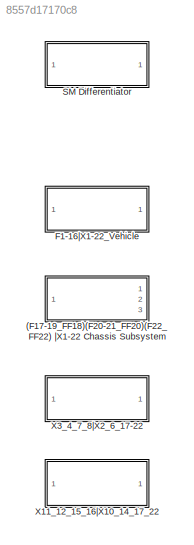
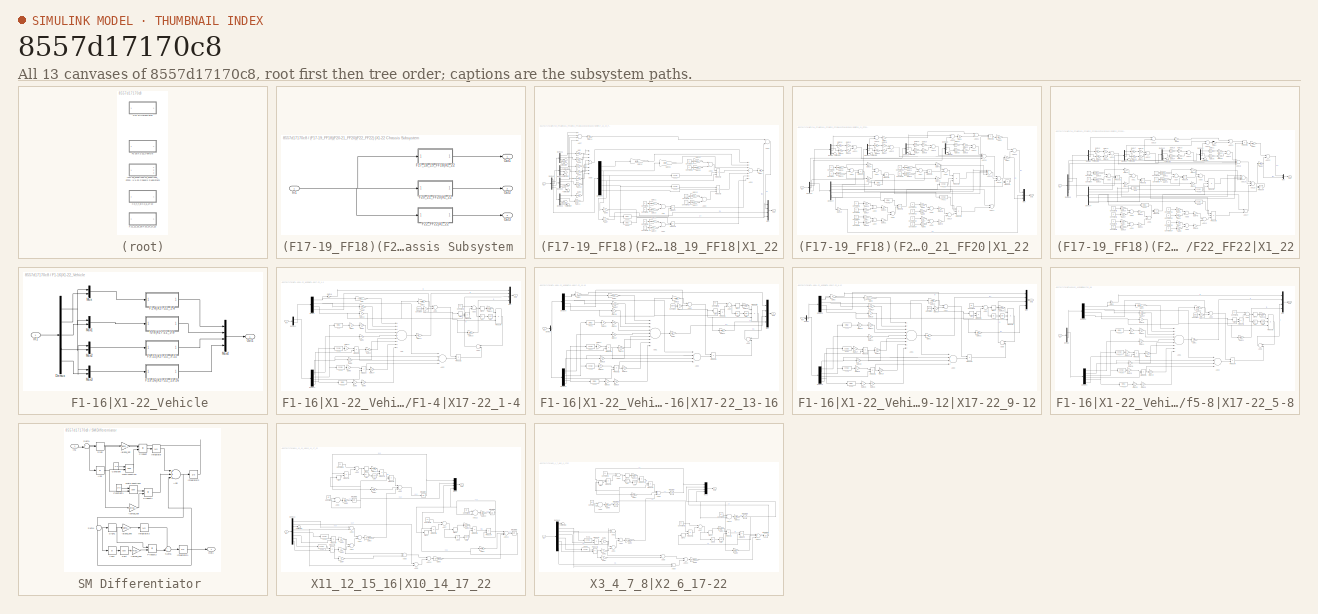
[diagram: thumbnail index - all 13 canvases of the model, root first then tree order]
MODEL slx_8557d17170c8
KIND model
CONFIG AbsTol = auto
CONFIG FixedStep = auto
CONFIG MaxStep = auto
CONFIG MinStep = auto
CONFIG RelTol = 1e-3
CONFIG SampleTimeConstraint = Unconstrained
CONFIG Solver = VariableStepAuto
CONFIG SolverMode = Auto
CONFIG SolverName = VariableStepAuto
CONFIG StartTime = 0.0
CONFIG StopTime = 10.0
BLOCK [SubSystem] (F17-19_FF18)(F20-21_FF20)(F22_FF22) |X1-22 Chassis Subsystem 
  Ports = [1, 3]
  RequestExecContextInheritance = off
  TreatAsAtomicUnit = on
  Variant = off
BLOCK [SubSystem] (F17-19_FF18)(F20-21_FF20)(F22_FF22) |X1-22 Chassis Subsystem /F17_18_19_FF18|X1_22
  Ports = [1, 1]
  RequestExecContextInheritance = off
  TreatAsAtomicUnit = on
  Variant = off
BLOCK [Sum] (F17-19_FF18)(F20-21_FF20)(F22_FF22) |X1-22 Chassis Subsystem /F17_18_19_FF18|X1_22/Add
  InputSameDT = off
  OutDataTypeStr = Inherit: Inherit via internal rule
  Ports = [2, 1]
  SaturateOnIntegerOverflow = off
BLOCK [Sum] (F17-19_FF18)(F20-21_FF20)(F22_FF22) |X1-22 Chassis Subsystem /F17_18_19_FF18|X1_22/Add1
  InputSameDT = off
  OutDataTypeStr = Inherit: Inherit via internal rule
  Ports = [2, 1]
  SaturateOnIntegerOverflow = off
BLOCK [Sum] (F17-19_FF18)(F20-21_FF20)(F22_FF22) |X1-22 Chassis Subsystem /F17_18_19_FF18|X1_22/Add2
  InputSameDT = off
  OutDataTypeStr = Inherit: Inherit via internal rule
  Ports = [2, 1]
  SaturateOnIntegerOverflow = off
BLOCK [Sum] (F17-19_FF18)(F20-21_FF20)(F22_FF22) |X1-22 Chassis Subsystem /F17_18_19_FF18|X1_22/Add3
  InputSameDT = off
  OutDataTypeStr = Inherit: Inherit via internal rule
  Ports = [2, 1]
  SaturateOnIntegerOverflow = off
BLOCK [Sum] (F17-19_FF18)(F20-21_FF20)(F22_FF22) |X1-22 Chassis Subsystem /F17_18_19_FF18|X1_22/Add4
  InputSameDT = off
  Inputs = +++++++
  OutDataTypeStr = Inherit: Inherit via internal rule
  Ports = [7, 1]
  SaturateOnIntegerOverflow = off
BLOCK [Sum] (F17-19_FF18)(F20-21_FF20)(F22_FF22) |X1-22 Chassis Subsystem /F17_18_19_FF18|X1_22/Add6
  InputSameDT = off
  OutDataTypeStr = Inherit: Inherit via internal rule
  Ports = [2, 1]
  SaturateOnIntegerOverflow = off
BLOCK [Sum] (F17-19_FF18)(F20-21_FF20)(F22_FF22) |X1-22 Chassis Subsystem /F17_18_19_FF18|X1_22/Add7
  InputSameDT = off
  Inputs = ++++
  OutDataTypeStr = Inherit: Inherit via internal rule
  Ports = [4, 1]
  SaturateOnIntegerOverflow = off
BLOCK [Sum] (F17-19_FF18)(F20-21_FF20)(F22_FF22) |X1-22 Chassis Subsystem /F17_18_19_FF18|X1_22/Add8
  InputSameDT = off
  Inputs = ++++++++
  OutDataTypeStr = Inherit: Inherit via internal rule
  Ports = [8, 1]
  SaturateOnIntegerOverflow = off
BLOCK [Constant] (F17-19_FF18)(F20-21_FF20)(F22_FF22) |X1-22 Chassis Subsystem /F17_18_19_FF18|X1_22/Constant1
  Value = -a
BLOCK [Constant] (F17-19_FF18)(F20-21_FF20)(F22_FF22) |X1-22 Chassis Subsystem /F17_18_19_FF18|X1_22/Constant10
  Value = c
BLOCK [Constant] (F17-19_FF18)(F20-21_FF20)(F22_FF22) |X1-22 Chassis Subsystem /F17_18_19_FF18|X1_22/Constant2
  Value = b
BLOCK [Constant] (F17-19_FF18)(F20-21_FF20)(F22_FF22) |X1-22 Chassis Subsystem /F17_18_19_FF18|X1_22/Constant5
  Value = -d
BLOCK [Constant] (F17-19_FF18)(F20-21_FF20)(F22_FF22) |X1-22 Chassis Subsystem /F17_18_19_FF18|X1_22/Constant6
  Value = c
BLOCK [Constant] (F17-19_FF18)(F20-21_FF20)(F22_FF22) |X1-22 Chassis Subsystem /F17_18_19_FF18|X1_22/Constant7
  Value = -a
BLOCK [Constant] (F17-19_FF18)(F20-21_FF20)(F22_FF22) |X1-22 Chassis Subsystem /F17_18_19_FF18|X1_22/Constant8
  Value = b
BLOCK [Constant] (F17-19_FF18)(F20-21_FF20)(F22_FF22) |X1-22 Chassis Subsystem /F17_18_19_FF18|X1_22/Constant9
  Value = -d
BLOCK [Demux] (F17-19_FF18)(F20-21_FF20)(F22_FF22) |X1-22 Chassis Subsystem /F17_18_19_FF18|X1_22/Demux1
  DisplayOption = bar
  Ports = [1, 4]
BLOCK [Demux] (F17-19_FF18)(F20-21_FF20)(F22_FF22) |X1-22 Chassis Subsystem /F17_18_19_FF18|X1_22/Demux2
  DisplayOption = bar
  Ports = [1, 4]
BLOCK [Demux] (F17-19_FF18)(F20-21_FF20)(F22_FF22) |X1-22 Chassis Subsystem /F17_18_19_FF18|X1_22/Demux3
  DisplayOption = bar
  Ports = [1, 4]
BLOCK [Demux] (F17-19_FF18)(F20-21_FF20)(F22_FF22) |X1-22 Chassis Subsystem /F17_18_19_FF18|X1_22/Demux4
  DisplayOption = bar
  Outputs = 6
  Ports = [1, 6]
BLOCK [Demux] (F17-19_FF18)(F20-21_FF20)(F22_FF22) |X1-22 Chassis Subsystem /F17_18_19_FF18|X1_22/Demux5
  DisplayOption = bar
  Outputs = 5
  Ports = [1, 5]
BLOCK [Demux] (F17-19_FF18)(F20-21_FF20)(F22_FF22) |X1-22 Chassis Subsystem /F17_18_19_FF18|X1_22/Demux6
  DisplayOption = bar
  Ports = [1, 4]
BLOCK [Fcn] (F17-19_FF18)(F20-21_FF20)(F22_FF22) |X1-22 Chassis Subsystem /F17_18_19_FF18|X1_22/Fcn1
  Expr = cos(u)
BLOCK [Fcn] (F17-19_FF18)(F20-21_FF20)(F22_FF22) |X1-22 Chassis Subsystem /F17_18_19_FF18|X1_22/Fcn2
  Expr = sin(u)
BLOCK [Fcn] (F17-19_FF18)(F20-21_FF20)(F22_FF22) |X1-22 Chassis Subsystem /F17_18_19_FF18|X1_22/Fcn3
  Expr = sin(u)
BLOCK [Fcn] (F17-19_FF18)(F20-21_FF20)(F22_FF22) |X1-22 Chassis Subsystem /F17_18_19_FF18|X1_22/Fcn4
  Expr = cos(u)
BLOCK [Gain] (F17-19_FF18)(F20-21_FF20)(F22_FF22) |X1-22 Chassis Subsystem /F17_18_19_FF18|X1_22/Gain
  Gain = Ksfr
  OutDataTypeStr = Inherit: Inherit via internal rule
  ParamDataTypeStr = Inherit: Inherit via internal rule
  SaturateOnIntegerOverflow = off
BLOCK [Gain] (F17-19_FF18)(F20-21_FF20)(F22_FF22) |X1-22 Chassis Subsystem /F17_18_19_FF18|X1_22/Gain1
  Gain = Ksfl
  OutDataTypeStr = Inherit: Inherit via internal rule
  ParamDataTypeStr = Inherit: Inherit via internal rule
  SaturateOnIntegerOverflow = off
BLOCK [Gain] (F17-19_FF18)(F20-21_FF20)(F22_FF22) |X1-22 Chassis Subsystem /F17_18_19_FF18|X1_22/Gain10
  Gain = Csrr
  OutDataTypeStr = Inherit: Inherit via internal rule
  ParamDataTypeStr = Inherit: Inherit via internal rule
  SaturateOnIntegerOverflow = off
BLOCK [Gain] (F17-19_FF18)(F20-21_FF20)(F22_FF22) |X1-22 Chassis Subsystem /F17_18_19_FF18|X1_22/Gain11
  Gain = Csrl
  OutDataTypeStr = Inherit: Inherit via internal rule
  ParamDataTypeStr = Inherit: Inherit via internal rule
  SaturateOnIntegerOverflow = off
BLOCK [Gain] (F17-19_FF18)(F20-21_FF20)(F22_FF22) |X1-22 Chassis Subsystem /F17_18_19_FF18|X1_22/Gain12
  Gain = Csfr+Csfl
  OutDataTypeStr = Inherit: Inherit via internal rule
  ParamDataTypeStr = Inherit: Inherit via internal rule
  SaturateOnIntegerOverflow = off
BLOCK [Gain] (F17-19_FF18)(F20-21_FF20)(F22_FF22) |X1-22 Chassis Subsystem /F17_18_19_FF18|X1_22/Gain13
  Gain = Csfr+Csfl
  OutDataTypeStr = Inherit: Inherit via internal rule
  ParamDataTypeStr = Inherit: Inherit via internal rule
  SaturateOnIntegerOverflow = off
BLOCK [Gain] (F17-19_FF18)(F20-21_FF20)(F22_FF22) |X1-22 Chassis Subsystem /F17_18_19_FF18|X1_22/Gain14
  Gain = S/M
  OutDataTypeStr = Inherit: Inherit via internal rule
  ParamDataTypeStr = Inherit: Inherit via internal rule
  SaturateOnIntegerOverflow = off
BLOCK [Gain] (F17-19_FF18)(F20-21_FF20)(F22_FF22) |X1-22 Chassis Subsystem /F17_18_19_FF18|X1_22/Gain16
  Gain = -(Ksfr+Ksfl+Ksrr+Ksrl)
  OutDataTypeStr = Inherit: Inherit via internal rule
  ParamDataTypeStr = Inherit: Inherit via internal rule
  SaturateOnIntegerOverflow = off
BLOCK [Gain] (F17-19_FF18)(F20-21_FF20)(F22_FF22) |X1-22 Chassis Subsystem /F17_18_19_FF18|X1_22/Gain2
  Gain = Ksrr
  OutDataTypeStr = Inherit: Inherit via internal rule
  ParamDataTypeStr = Inherit: Inherit via internal rule
  SaturateOnIntegerOverflow = off
BLOCK [Gain] (F17-19_FF18)(F20-21_FF20)(F22_FF22) |X1-22 Chassis Subsystem /F17_18_19_FF18|X1_22/Gain21
  Gain = Ksfr+Ksfl
  OutDataTypeStr = Inherit: Inherit via internal rule
  ParamDataTypeStr = Inherit: Inherit via internal rule
  SaturateOnIntegerOverflow = off
BLOCK [Gain] (F17-19_FF18)(F20-21_FF20)(F22_FF22) |X1-22 Chassis Subsystem /F17_18_19_FF18|X1_22/Gain22
  Gain = Ksrl+Ksfl
  OutDataTypeStr = Inherit: Inherit via internal rule
  ParamDataTypeStr = Inherit: Inherit via internal rule
  SaturateOnIntegerOverflow = off
BLOCK [Gain] (F17-19_FF18)(F20-21_FF20)(F22_FF22) |X1-22 Chassis Subsystem /F17_18_19_FF18|X1_22/Gain23
  Gain = Ksrr+Ksrl
  OutDataTypeStr = Inherit: Inherit via internal rule
  ParamDataTypeStr = Inherit: Inherit via internal rule
  SaturateOnIntegerOverflow = off
BLOCK [Gain] (F17-19_FF18)(F20-21_FF20)(F22_FF22) |X1-22 Chassis Subsystem /F17_18_19_FF18|X1_22/Gain24
  Gain = Ksrr+Ksfr
  OutDataTypeStr = Inherit: Inherit via internal rule
  ParamDataTypeStr = Inherit: Inherit via internal rule
  SaturateOnIntegerOverflow = off
BLOCK [Gain] (F17-19_FF18)(F20-21_FF20)(F22_FF22) |X1-22 Chassis Subsystem /F17_18_19_FF18|X1_22/Gain25
  Gain = -(Csfr+Csfl+Csrr+Csfr)
  OutDataTypeStr = Inherit: Inherit via internal rule
  ParamDataTypeStr = Inherit: Inherit via internal rule
  SaturateOnIntegerOverflow = off
BLOCK [Gain] (F17-19_FF18)(F20-21_FF20)(F22_FF22) |X1-22 Chassis Subsystem /F17_18_19_FF18|X1_22/Gain26
  Gain = Csrr+Csrl
  OutDataTypeStr = Inherit: Inherit via internal rule
  ParamDataTypeStr = Inherit: Inherit via internal rule
  SaturateOnIntegerOverflow = off
BLOCK [Gain] (F17-19_FF18)(F20-21_FF20)(F22_FF22) |X1-22 Chassis Subsystem /F17_18_19_FF18|X1_22/Gain27
  Gain = Csrr+Csrl
  OutDataTypeStr = Inherit: Inherit via internal rule
  ParamDataTypeStr = Inherit: Inherit via internal rule
  SaturateOnIntegerOverflow = off
BLOCK [Gain] (F17-19_FF18)(F20-21_FF20)(F22_FF22) |X1-22 Chassis Subsystem /F17_18_19_FF18|X1_22/Gain3
  Gain = Ksrl
  OutDataTypeStr = Inherit: Inherit via internal rule
  ParamDataTypeStr = Inherit: Inherit via internal rule
  SaturateOnIntegerOverflow = off
BLOCK [Gain] (F17-19_FF18)(F20-21_FF20)(F22_FF22) |X1-22 Chassis Subsystem /F17_18_19_FF18|X1_22/Gain4
  Gain = 1/M
  OutDataTypeStr = Inherit: Inherit via internal rule
  ParamDataTypeStr = Inherit: Inherit via internal rule
  SaturateOnIntegerOverflow = off
BLOCK [Gain] (F17-19_FF18)(F20-21_FF20)(F22_FF22) |X1-22 Chassis Subsystem /F17_18_19_FF18|X1_22/Gain5
  OutDataTypeStr = Inherit: Inherit via internal rule
  ParamDataTypeStr = Inherit: Inherit via internal rule
  SaturateOnIntegerOverflow = off
BLOCK [Gain] (F17-19_FF18)(F20-21_FF20)(F22_FF22) |X1-22 Chassis Subsystem /F17_18_19_FF18|X1_22/Gain7
  OutDataTypeStr = Inherit: Inherit via internal rule
  ParamDataTypeStr = Inherit: Inherit via internal rule
  SaturateOnIntegerOverflow = off
BLOCK [Gain] (F17-19_FF18)(F20-21_FF20)(F22_FF22) |X1-22 Chassis Subsystem /F17_18_19_FF18|X1_22/Gain8
  Gain = Csfr
  OutDataTypeStr = Inherit: Inherit via internal rule
  ParamDataTypeStr = Inherit: Inherit via internal rule
  SaturateOnIntegerOverflow = off
BLOCK [Gain] (F17-19_FF18)(F20-21_FF20)(F22_FF22) |X1-22 Chassis Subsystem /F17_18_19_FF18|X1_22/Gain9
  Gain = Csfl
  OutDataTypeStr = Inherit: Inherit via internal rule
  ParamDataTypeStr = Inherit: Inherit via internal rule
  SaturateOnIntegerOverflow = off
BLOCK [Inport] (F17-19_FF18)(F20-21_FF20)(F22_FF22) |X1-22 Chassis Subsystem /F17_18_19_FF18|X1_22/In1
  IconDisplay = Port number
BLOCK [Mux] (F17-19_FF18)(F20-21_FF20)(F22_FF22) |X1-22 Chassis Subsystem /F17_18_19_FF18|X1_22/Mux
  DisplayOption = bar
  Ports = [4, 1]
BLOCK [Outport] (F17-19_FF18)(F20-21_FF20)(F22_FF22) |X1-22 Chassis Subsystem /F17_18_19_FF18|X1_22/Out1
  IconDisplay = Port number
BLOCK [Product] (F17-19_FF18)(F20-21_FF20)(F22_FF22) |X1-22 Chassis Subsystem /F17_18_19_FF18|X1_22/Product
  InputSameDT = off
  OutDataTypeStr = Inherit: Inherit via internal rule
  Ports = [2, 1]
  RndMeth = Floor
  SaturateOnIntegerOverflow = off
BLOCK [Product] (F17-19_FF18)(F20-21_FF20)(F22_FF22) |X1-22 Chassis Subsystem /F17_18_19_FF18|X1_22/Product1
  InputSameDT = off
  OutDataTypeStr = Inherit: Inherit via internal rule
  Ports = [2, 1]
  RndMeth = Floor
  SaturateOnIntegerOverflow = off
BLOCK [Product] (F17-19_FF18)(F20-21_FF20)(F22_FF22) |X1-22 Chassis Subsystem /F17_18_19_FF18|X1_22/Product2
  InputSameDT = off
  Inputs = 3
  OutDataTypeStr = Inherit: Inherit via internal rule
  Ports = [3, 1]
  RndMeth = Floor
  SaturateOnIntegerOverflow = off
BLOCK [Product] (F17-19_FF18)(F20-21_FF20)(F22_FF22) |X1-22 Chassis Subsystem /F17_18_19_FF18|X1_22/Product3
  InputSameDT = off
  Inputs = 3
  OutDataTypeStr = Inherit: Inherit via internal rule
  Ports = [3, 1]
  RndMeth = Floor
  SaturateOnIntegerOverflow = off
BLOCK [Terminator] (F17-19_FF18)(F20-21_FF20)(F22_FF22) |X1-22 Chassis Subsystem /F17_18_19_FF18|X1_22/Terminator
BLOCK [Terminator] (F17-19_FF18)(F20-21_FF20)(F22_FF22) |X1-22 Chassis Subsystem /F17_18_19_FF18|X1_22/Terminator1
BLOCK [Terminator] (F17-19_FF18)(F20-21_FF20)(F22_FF22) |X1-22 Chassis Subsystem /F17_18_19_FF18|X1_22/Terminator2
BLOCK [Terminator] (F17-19_FF18)(F20-21_FF20)(F22_FF22) |X1-22 Chassis Subsystem /F17_18_19_FF18|X1_22/Terminator3
BLOCK [Terminator] (F17-19_FF18)(F20-21_FF20)(F22_FF22) |X1-22 Chassis Subsystem /F17_18_19_FF18|X1_22/Terminator4
BLOCK [Terminator] (F17-19_FF18)(F20-21_FF20)(F22_FF22) |X1-22 Chassis Subsystem /F17_18_19_FF18|X1_22/Terminator5
BLOCK [Terminator] (F17-19_FF18)(F20-21_FF20)(F22_FF22) |X1-22 Chassis Subsystem /F17_18_19_FF18|X1_22/Terminator6
BLOCK [Terminator] (F17-19_FF18)(F20-21_FF20)(F22_FF22) |X1-22 Chassis Subsystem /F17_18_19_FF18|X1_22/Terminator7
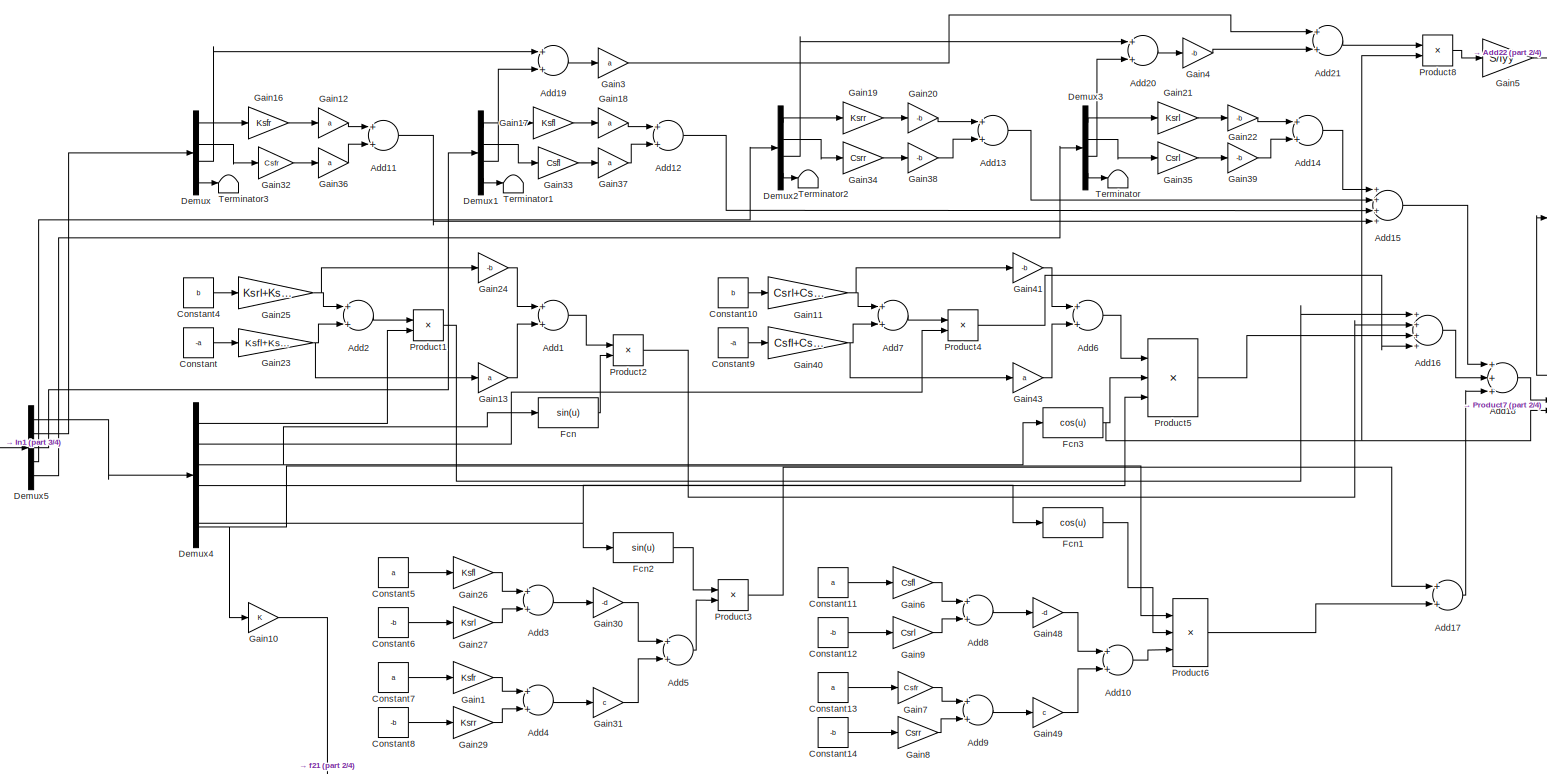
[diagram: (F17-19_FF18)(F20-21_FF20)(F22_FF22) |X1-22 Chassis Subsystem /F20_21_FF20|X1_22  - part 1/4, most of the canvas]
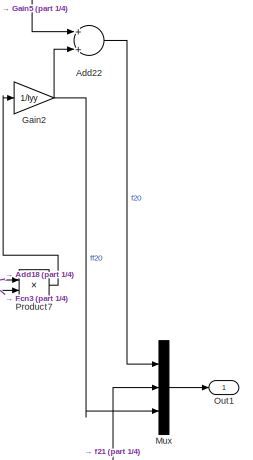
[diagram: (F17-19_FF18)(F20-21_FF20)(F22_FF22) |X1-22 Chassis Subsystem /F20_21_FF20|X1_22  - part 2/4, middle right region]
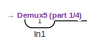
[diagram: (F17-19_FF18)(F20-21_FF20)(F22_FF22) |X1-22 Chassis Subsystem /F20_21_FF20|X1_22  - part 3/4, middle left region]
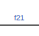
[diagram: (F17-19_FF18)(F20-21_FF20)(F22_FF22) |X1-22 Chassis Subsystem /F20_21_FF20|X1_22  - part 4/4, bottom center region]
BLOCK [SubSystem] (F17-19_FF18)(F20-21_FF20)(F22_FF22) |X1-22 Chassis Subsystem /F20_21_FF20|X1_22 
  Ports = [1, 1]
  RequestExecContextInheritance = off
  TreatAsAtomicUnit = on
  Variant = off
BLOCK [Sum] (F17-19_FF18)(F20-21_FF20)(F22_FF22) |X1-22 Chassis Subsystem /F20_21_FF20|X1_22 /Add1
  InputSameDT = off
  OutDataTypeStr = Inherit: Inherit via internal rule
  Ports = [2, 1]
  SaturateOnIntegerOverflow = off
BLOCK [Sum] (F17-19_FF18)(F20-21_FF20)(F22_FF22) |X1-22 Chassis Subsystem /F20_21_FF20|X1_22 /Add10
  InputSameDT = off
  OutDataTypeStr = Inherit: Inherit via internal rule
  Ports = [2, 1]
  SaturateOnIntegerOverflow = off
BLOCK [Sum] (F17-19_FF18)(F20-21_FF20)(F22_FF22) |X1-22 Chassis Subsystem /F20_21_FF20|X1_22 /Add11
  InputSameDT = off
  OutDataTypeStr = Inherit: Inherit via internal rule
  Ports = [2, 1]
  SaturateOnIntegerOverflow = off
BLOCK [Sum] (F17-19_FF18)(F20-21_FF20)(F22_FF22) |X1-22 Chassis Subsystem /F20_21_FF20|X1_22 /Add12
  InputSameDT = off
  OutDataTypeStr = Inherit: Inherit via internal rule
  Ports = [2, 1]
  SaturateOnIntegerOverflow = off
BLOCK [Sum] (F17-19_FF18)(F20-21_FF20)(F22_FF22) |X1-22 Chassis Subsystem /F20_21_FF20|X1_22 /Add13
  InputSameDT = off
  OutDataTypeStr = Inherit: Inherit via internal rule
  Ports = [2, 1]
  SaturateOnIntegerOverflow = off
BLOCK [Sum] (F17-19_FF18)(F20-21_FF20)(F22_FF22) |X1-22 Chassis Subsystem /F20_21_FF20|X1_22 /Add14
  InputSameDT = off
  OutDataTypeStr = Inherit: Inherit via internal rule
  Ports = [2, 1]
  SaturateOnIntegerOverflow = off
BLOCK [Sum] (F17-19_FF18)(F20-21_FF20)(F22_FF22) |X1-22 Chassis Subsystem /F20_21_FF20|X1_22 /Add15
  InputSameDT = off
  Inputs = ++++
  OutDataTypeStr = Inherit: Inherit via internal rule
  Ports = [4, 1]
  SaturateOnIntegerOverflow = off
BLOCK [Sum] (F17-19_FF18)(F20-21_FF20)(F22_FF22) |X1-22 Chassis Subsystem /F20_21_FF20|X1_22 /Add16
  InputSameDT = off
  Inputs = ++++
  OutDataTypeStr = Inherit: Inherit via internal rule
  Ports = [4, 1]
  SaturateOnIntegerOverflow = off
BLOCK [Sum] (F17-19_FF18)(F20-21_FF20)(F22_FF22) |X1-22 Chassis Subsystem /F20_21_FF20|X1_22 /Add17
  InputSameDT = off
  OutDataTypeStr = Inherit: Inherit via internal rule
  Ports = [2, 1]
  SaturateOnIntegerOverflow = off
BLOCK [Sum] (F17-19_FF18)(F20-21_FF20)(F22_FF22) |X1-22 Chassis Subsystem /F20_21_FF20|X1_22 /Add18
  InputSameDT = off
  Inputs = +++
  OutDataTypeStr = Inherit: Inherit via internal rule
  Ports = [3, 1]
  SaturateOnIntegerOverflow = off
BLOCK [Sum] (F17-19_FF18)(F20-21_FF20)(F22_FF22) |X1-22 Chassis Subsystem /F20_21_FF20|X1_22 /Add19
  InputSameDT = off
  OutDataTypeStr = Inherit: Inherit via internal rule
  Ports = [2, 1]
  SaturateOnIntegerOverflow = off
BLOCK [Sum] (F17-19_FF18)(F20-21_FF20)(F22_FF22) |X1-22 Chassis Subsystem /F20_21_FF20|X1_22 /Add2
  InputSameDT = off
  OutDataTypeStr = Inherit: Inherit via internal rule
  Ports = [2, 1]
  SaturateOnIntegerOverflow = off
BLOCK [Sum] (F17-19_FF18)(F20-21_FF20)(F22_FF22) |X1-22 Chassis Subsystem /F20_21_FF20|X1_22 /Add20
  InputSameDT = off
  OutDataTypeStr = Inherit: Inherit via internal rule
  Ports = [2, 1]
  SaturateOnIntegerOverflow = off
BLOCK [Sum] (F17-19_FF18)(F20-21_FF20)(F22_FF22) |X1-22 Chassis Subsystem /F20_21_FF20|X1_22 /Add21
  InputSameDT = off
  OutDataTypeStr = Inherit: Inherit via internal rule
  Ports = [2, 1]
  SaturateOnIntegerOverflow = off
BLOCK [Sum] (F17-19_FF18)(F20-21_FF20)(F22_FF22) |X1-22 Chassis Subsystem /F20_21_FF20|X1_22 /Add22
  InputSameDT = off
  OutDataTypeStr = Inherit: Inherit via internal rule
  Ports = [2, 1]
  SaturateOnIntegerOverflow = off
BLOCK [Sum] (F17-19_FF18)(F20-21_FF20)(F22_FF22) |X1-22 Chassis Subsystem /F20_21_FF20|X1_22 /Add3
  InputSameDT = off
  OutDataTypeStr = Inherit: Inherit via internal rule
  Ports = [2, 1]
  SaturateOnIntegerOverflow = off
BLOCK [Sum] (F17-19_FF18)(F20-21_FF20)(F22_FF22) |X1-22 Chassis Subsystem /F20_21_FF20|X1_22 /Add4
  InputSameDT = off
  OutDataTypeStr = Inherit: Inherit via internal rule
  Ports = [2, 1]
  SaturateOnIntegerOverflow = off
BLOCK [Sum] (F17-19_FF18)(F20-21_FF20)(F22_FF22) |X1-22 Chassis Subsystem /F20_21_FF20|X1_22 /Add5
  InputSameDT = off
  OutDataTypeStr = Inherit: Inherit via internal rule
  Ports = [2, 1]
  SaturateOnIntegerOverflow = off
BLOCK [Sum] (F17-19_FF18)(F20-21_FF20)(F22_FF22) |X1-22 Chassis Subsystem /F20_21_FF20|X1_22 /Add6
  InputSameDT = off
  OutDataTypeStr = Inherit: Inherit via internal rule
  Ports = [2, 1]
  SaturateOnIntegerOverflow = off
BLOCK [Sum] (F17-19_FF18)(F20-21_FF20)(F22_FF22) |X1-22 Chassis Subsystem /F20_21_FF20|X1_22 /Add7
  InputSameDT = off
  OutDataTypeStr = Inherit: Inherit via internal rule
  Ports = [2, 1]
  SaturateOnIntegerOverflow = off
BLOCK [Sum] (F17-19_FF18)(F20-21_FF20)(F22_FF22) |X1-22 Chassis Subsystem /F20_21_FF20|X1_22 /Add8
  InputSameDT = off
  OutDataTypeStr = Inherit: Inherit via internal rule
  Ports = [2, 1]
  SaturateOnIntegerOverflow = off
BLOCK [Sum] (F17-19_FF18)(F20-21_FF20)(F22_FF22) |X1-22 Chassis Subsystem /F20_21_FF20|X1_22 /Add9
  InputSameDT = off
  OutDataTypeStr = Inherit: Inherit via internal rule
  Ports = [2, 1]
  SaturateOnIntegerOverflow = off
BLOCK [Constant] (F17-19_FF18)(F20-21_FF20)(F22_FF22) |X1-22 Chassis Subsystem /F20_21_FF20|X1_22 /Constant
  Value = -a
BLOCK [Constant] (F17-19_FF18)(F20-21_FF20)(F22_FF22) |X1-22 Chassis Subsystem /F20_21_FF20|X1_22 /Constant10
  Value = b
BLOCK [Constant] (F17-19_FF18)(F20-21_FF20)(F22_FF22) |X1-22 Chassis Subsystem /F20_21_FF20|X1_22 /Constant11
  Value = a
BLOCK [Constant] (F17-19_FF18)(F20-21_FF20)(F22_FF22) |X1-22 Chassis Subsystem /F20_21_FF20|X1_22 /Constant12
  Value = -b
BLOCK [Constant] (F17-19_FF18)(F20-21_FF20)(F22_FF22) |X1-22 Chassis Subsystem /F20_21_FF20|X1_22 /Constant13
  Value = a
BLOCK [Constant] (F17-19_FF18)(F20-21_FF20)(F22_FF22) |X1-22 Chassis Subsystem /F20_21_FF20|X1_22 /Constant14
  Value = -b
BLOCK [Constant] (F17-19_FF18)(F20-21_FF20)(F22_FF22) |X1-22 Chassis Subsystem /F20_21_FF20|X1_22 /Constant4
  Value = b
BLOCK [Constant] (F17-19_FF18)(F20-21_FF20)(F22_FF22) |X1-22 Chassis Subsystem /F20_21_FF20|X1_22 /Constant5
  Value = a
BLOCK [Constant] (F17-19_FF18)(F20-21_FF20)(F22_FF22) |X1-22 Chassis Subsystem /F20_21_FF20|X1_22 /Constant6
  Value = -b
BLOCK [Constant] (F17-19_FF18)(F20-21_FF20)(F22_FF22) |X1-22 Chassis Subsystem /F20_21_FF20|X1_22 /Constant7
  Value = a
BLOCK [Constant] (F17-19_FF18)(F20-21_FF20)(F22_FF22) |X1-22 Chassis Subsystem /F20_21_FF20|X1_22 /Constant8
  Value = -b
BLOCK [Constant] (F17-19_FF18)(F20-21_FF20)(F22_FF22) |X1-22 Chassis Subsystem /F20_21_FF20|X1_22 /Constant9
  Value = -a
BLOCK [Demux] (F17-19_FF18)(F20-21_FF20)(F22_FF22) |X1-22 Chassis Subsystem /F20_21_FF20|X1_22 /Demux
  DisplayOption = bar
  Ports = [1, 4]
BLOCK [Demux] (F17-19_FF18)(F20-21_FF20)(F22_FF22) |X1-22 Chassis Subsystem /F20_21_FF20|X1_22 /Demux1
  DisplayOption = bar
  Ports = [1, 4]
BLOCK [Demux] (F17-19_FF18)(F20-21_FF20)(F22_FF22) |X1-22 Chassis Subsystem /F20_21_FF20|X1_22 /Demux2
  DisplayOption = bar
  Ports = [1, 4]
BLOCK [Demux] (F17-19_FF18)(F20-21_FF20)(F22_FF22) |X1-22 Chassis Subsystem /F20_21_FF20|X1_22 /Demux3
  DisplayOption = bar
  Ports = [1, 4]
BLOCK [Demux] (F17-19_FF18)(F20-21_FF20)(F22_FF22) |X1-22 Chassis Subsystem /F20_21_FF20|X1_22 /Demux4
  DisplayOption = bar
  Outputs = 6
  Ports = [1, 6]
BLOCK [Demux] (F17-19_FF18)(F20-21_FF20)(F22_FF22) |X1-22 Chassis Subsystem /F20_21_FF20|X1_22 /Demux5
  DisplayOption = bar
  Outputs = 5
  Ports = [1, 5]
BLOCK [Fcn] (F17-19_FF18)(F20-21_FF20)(F22_FF22) |X1-22 Chassis Subsystem /F20_21_FF20|X1_22 /Fcn
  Expr = sin(u)
BLOCK [Fcn] (F17-19_FF18)(F20-21_FF20)(F22_FF22) |X1-22 Chassis Subsystem /F20_21_FF20|X1_22 /Fcn1
  Expr = cos(u)
BLOCK [Fcn] (F17-19_FF18)(F20-21_FF20)(F22_FF22) |X1-22 Chassis Subsystem /F20_21_FF20|X1_22 /Fcn2
  Expr = sin(u)
BLOCK [Fcn] (F17-19_FF18)(F20-21_FF20)(F22_FF22) |X1-22 Chassis Subsystem /F20_21_FF20|X1_22 /Fcn3
  Expr = cos(u)
BLOCK [Gain] (F17-19_FF18)(F20-21_FF20)(F22_FF22) |X1-22 Chassis Subsystem /F20_21_FF20|X1_22 /Gain1
  Gain = Ksfr
  OutDataTypeStr = Inherit: Inherit via internal rule
  ParamDataTypeStr = Inherit: Inherit via internal rule
  SaturateOnIntegerOverflow = off
BLOCK [Gain] (F17-19_FF18)(F20-21_FF20)(F22_FF22) |X1-22 Chassis Subsystem /F20_21_FF20|X1_22 /Gain10
  OutDataTypeStr = Inherit: Inherit via internal rule
  ParamDataTypeStr = Inherit: Inherit via internal rule
  SaturateOnIntegerOverflow = off
BLOCK [Gain] (F17-19_FF18)(F20-21_FF20)(F22_FF22) |X1-22 Chassis Subsystem /F20_21_FF20|X1_22 /Gain11
  Gain = Csrl+Csrr
  OutDataTypeStr = Inherit: Inherit via internal rule
  ParamDataTypeStr = Inherit: Inherit via internal rule
  SaturateOnIntegerOverflow = off
BLOCK [Gain] (F17-19_FF18)(F20-21_FF20)(F22_FF22) |X1-22 Chassis Subsystem /F20_21_FF20|X1_22 /Gain12
  Gain = a
  OutDataTypeStr = Inherit: Inherit via internal rule
  ParamDataTypeStr = Inherit: Inherit via internal rule
  SaturateOnIntegerOverflow = off
BLOCK [Gain] (F17-19_FF18)(F20-21_FF20)(F22_FF22) |X1-22 Chassis Subsystem /F20_21_FF20|X1_22 /Gain13
  Gain = a
  OutDataTypeStr = Inherit: Inherit via internal rule
  ParamDataTypeStr = Inherit: Inherit via internal rule
  SaturateOnIntegerOverflow = off
BLOCK [Gain] (F17-19_FF18)(F20-21_FF20)(F22_FF22) |X1-22 Chassis Subsystem /F20_21_FF20|X1_22 /Gain16
  Gain = Ksfr
  OutDataTypeStr = Inherit: Inherit via internal rule
  ParamDataTypeStr = Inherit: Inherit via internal rule
  SaturateOnIntegerOverflow = off
BLOCK [Gain] (F17-19_FF18)(F20-21_FF20)(F22_FF22) |X1-22 Chassis Subsystem /F20_21_FF20|X1_22 /Gain17
  Gain = Ksfl
  OutDataTypeStr = Inherit: Inherit via internal rule
  ParamDataTypeStr = Inherit: Inherit via internal rule
  SaturateOnIntegerOverflow = off
BLOCK [Gain] (F17-19_FF18)(F20-21_FF20)(F22_FF22) |X1-22 Chassis Subsystem /F20_21_FF20|X1_22 /Gain18
  Gain = a
  OutDataTypeStr = Inherit: Inherit via internal rule
  ParamDataTypeStr = Inherit: Inherit via internal rule
  SaturateOnIntegerOverflow = off
BLOCK [Gain] (F17-19_FF18)(F20-21_FF20)(F22_FF22) |X1-22 Chassis Subsystem /F20_21_FF20|X1_22 /Gain19
  Gain = Ksrr
  OutDataTypeStr = Inherit: Inherit via internal rule
  ParamDataTypeStr = Inherit: Inherit via internal rule
  SaturateOnIntegerOverflow = off
BLOCK [Gain] (F17-19_FF18)(F20-21_FF20)(F22_FF22) |X1-22 Chassis Subsystem /F20_21_FF20|X1_22 /Gain2
  Gain = 1/Iyy
  OutDataTypeStr = Inherit: Inherit via internal rule
  ParamDataTypeStr = Inherit: Inherit via internal rule
  SaturateOnIntegerOverflow = off
BLOCK [Gain] (F17-19_FF18)(F20-21_FF20)(F22_FF22) |X1-22 Chassis Subsystem /F20_21_FF20|X1_22 /Gain20
  Gain = -b
  OutDataTypeStr = Inherit: Inherit via internal rule
  ParamDataTypeStr = Inherit: Inherit via internal rule
  SaturateOnIntegerOverflow = off
BLOCK [Gain] (F17-19_FF18)(F20-21_FF20)(F22_FF22) |X1-22 Chassis Subsystem /F20_21_FF20|X1_22 /Gain21
  Gain = Ksrl
  OutDataTypeStr = Inherit: Inherit via internal rule
  ParamDataTypeStr = Inherit: Inherit via internal rule
  SaturateOnIntegerOverflow = off
BLOCK [Gain] (F17-19_FF18)(F20-21_FF20)(F22_FF22) |X1-22 Chassis Subsystem /F20_21_FF20|X1_22 /Gain22
  Gain = -b
  OutDataTypeStr = Inherit: Inherit via internal rule
  ParamDataTypeStr = Inherit: Inherit via internal rule
  SaturateOnIntegerOverflow = off
BLOCK [Gain] (F17-19_FF18)(F20-21_FF20)(F22_FF22) |X1-22 Chassis Subsystem /F20_21_FF20|X1_22 /Gain23
  Gain = Ksfl+Ksfr
  OutDataTypeStr = Inherit: Inherit via internal rule
  ParamDataTypeStr = Inherit: Inherit via internal rule
  SaturateOnIntegerOverflow = off
BLOCK [Gain] (F17-19_FF18)(F20-21_FF20)(F22_FF22) |X1-22 Chassis Subsystem /F20_21_FF20|X1_22 /Gain24
  Gain = -b
  OutDataTypeStr = Inherit: Inherit via internal rule
  ParamDataTypeStr = Inherit: Inherit via internal rule
  SaturateOnIntegerOverflow = off
BLOCK [Gain] (F17-19_FF18)(F20-21_FF20)(F22_FF22) |X1-22 Chassis Subsystem /F20_21_FF20|X1_22 /Gain25
  Gain = Ksrl+Ksrr
  OutDataTypeStr = Inherit: Inherit via internal rule
  ParamDataTypeStr = Inherit: Inherit via internal rule
  SaturateOnIntegerOverflow = off
BLOCK [Gain] (F17-19_FF18)(F20-21_FF20)(F22_FF22) |X1-22 Chassis Subsystem /F20_21_FF20|X1_22 /Gain26
  Gain = Ksfl
  OutDataTypeStr = Inherit: Inherit via internal rule
  ParamDataTypeStr = Inherit: Inherit via internal rule
  SaturateOnIntegerOverflow = off
BLOCK [Gain] (F17-19_FF18)(F20-21_FF20)(F22_FF22) |X1-22 Chassis Subsystem /F20_21_FF20|X1_22 /Gain27
  Gain = Ksrl
  OutDataTypeStr = Inherit: Inherit via internal rule
  ParamDataTypeStr = Inherit: Inherit via internal rule
  SaturateOnIntegerOverflow = off
BLOCK [Gain] (F17-19_FF18)(F20-21_FF20)(F22_FF22) |X1-22 Chassis Subsystem /F20_21_FF20|X1_22 /Gain29
  Gain = Ksrr
  OutDataTypeStr = Inherit: Inherit via internal rule
  ParamDataTypeStr = Inherit: Inherit via internal rule
  SaturateOnIntegerOverflow = off
BLOCK [Gain] (F17-19_FF18)(F20-21_FF20)(F22_FF22) |X1-22 Chassis Subsystem /F20_21_FF20|X1_22 /Gain3
  Gain = a
  OutDataTypeStr = Inherit: Inherit via internal rule
  ParamDataTypeStr = Inherit: Inherit via internal rule
  SaturateOnIntegerOverflow = off
BLOCK [Gain] (F17-19_FF18)(F20-21_FF20)(F22_FF22) |X1-22 Chassis Subsystem /F20_21_FF20|X1_22 /Gain30
  Gain = -d
  OutDataTypeStr = Inherit: Inherit via internal rule
  ParamDataTypeStr = Inherit: Inherit via internal rule
  SaturateOnIntegerOverflow = off
BLOCK [Gain] (F17-19_FF18)(F20-21_FF20)(F22_FF22) |X1-22 Chassis Subsystem /F20_21_FF20|X1_22 /Gain31
  Gain = c
  OutDataTypeStr = Inherit: Inherit via internal rule
  ParamDataTypeStr = Inherit: Inherit via internal rule
  SaturateOnIntegerOverflow = off
BLOCK [Gain] (F17-19_FF18)(F20-21_FF20)(F22_FF22) |X1-22 Chassis Subsystem /F20_21_FF20|X1_22 /Gain32
  Gain = Csfr
  OutDataTypeStr = Inherit: Inherit via internal rule
  ParamDataTypeStr = Inherit: Inherit via internal rule
  SaturateOnIntegerOverflow = off
BLOCK [Gain] (F17-19_FF18)(F20-21_FF20)(F22_FF22) |X1-22 Chassis Subsystem /F20_21_FF20|X1_22 /Gain33
  Gain = Csfl
  OutDataTypeStr = Inherit: Inherit via internal rule
  ParamDataTypeStr = Inherit: Inherit via internal rule
  SaturateOnIntegerOverflow = off
BLOCK [Gain] (F17-19_FF18)(F20-21_FF20)(F22_FF22) |X1-22 Chassis Subsystem /F20_21_FF20|X1_22 /Gain34
  Gain = Csrr
  OutDataTypeStr = Inherit: Inherit via internal rule
  ParamDataTypeStr = Inherit: Inherit via internal rule
  SaturateOnIntegerOverflow = off
BLOCK [Gain] (F17-19_FF18)(F20-21_FF20)(F22_FF22) |X1-22 Chassis Subsystem /F20_21_FF20|X1_22 /Gain35
  Gain = Csrl
  OutDataTypeStr = Inherit: Inherit via internal rule
  ParamDataTypeStr = Inherit: Inherit via internal rule
  SaturateOnIntegerOverflow = off
BLOCK [Gain] (F17-19_FF18)(F20-21_FF20)(F22_FF22) |X1-22 Chassis Subsystem /F20_21_FF20|X1_22 /Gain36
  Gain = a
  OutDataTypeStr = Inherit: Inherit via internal rule
  ParamDataTypeStr = Inherit: Inherit via internal rule
  SaturateOnIntegerOverflow = off
BLOCK [Gain] (F17-19_FF18)(F20-21_FF20)(F22_FF22) |X1-22 Chassis Subsystem /F20_21_FF20|X1_22 /Gain37
  Gain = a
  OutDataTypeStr = Inherit: Inherit via internal rule
  ParamDataTypeStr = Inherit: Inherit via internal rule
  SaturateOnIntegerOverflow = off
BLOCK [Gain] (F17-19_FF18)(F20-21_FF20)(F22_FF22) |X1-22 Chassis Subsystem /F20_21_FF20|X1_22 /Gain38
  Gain = -b
  OutDataTypeStr = Inherit: Inherit via internal rule
  ParamDataTypeStr = Inherit: Inherit via internal rule
  SaturateOnIntegerOverflow = off
BLOCK [Gain] (F17-19_FF18)(F20-21_FF20)(F22_FF22) |X1-22 Chassis Subsystem /F20_21_FF20|X1_22 /Gain39
  Gain = -b
  OutDataTypeStr = Inherit: Inherit via internal rule
  ParamDataTypeStr = Inherit: Inherit via internal rule
  SaturateOnIntegerOverflow = off
BLOCK [Gain] (F17-19_FF18)(F20-21_FF20)(F22_FF22) |X1-22 Chassis Subsystem /F20_21_FF20|X1_22 /Gain4
  Gain = -b
  OutDataTypeStr = Inherit: Inherit via internal rule
  ParamDataTypeStr = Inherit: Inherit via internal rule
  SaturateOnIntegerOverflow = off
BLOCK [Gain] (F17-19_FF18)(F20-21_FF20)(F22_FF22) |X1-22 Chassis Subsystem /F20_21_FF20|X1_22 /Gain40
  Gain = Csfl+Csfr
  OutDataTypeStr = Inherit: Inherit via internal rule
  ParamDataTypeStr = Inherit: Inherit via internal rule
  SaturateOnIntegerOverflow = off
BLOCK [Gain] (F17-19_FF18)(F20-21_FF20)(F22_FF22) |X1-22 Chassis Subsystem /F20_21_FF20|X1_22 /Gain41
  Gain = -b
  OutDataTypeStr = Inherit: Inherit via internal rule
  ParamDataTypeStr = Inherit: Inherit via internal rule
  SaturateOnIntegerOverflow = off
BLOCK [Gain] (F17-19_FF18)(F20-21_FF20)(F22_FF22) |X1-22 Chassis Subsystem /F20_21_FF20|X1_22 /Gain43
  Gain = a
  OutDataTypeStr = Inherit: Inherit via internal rule
  ParamDataTypeStr = Inherit: Inherit via internal rule
  SaturateOnIntegerOverflow = off
BLOCK [Gain] (F17-19_FF18)(F20-21_FF20)(F22_FF22) |X1-22 Chassis Subsystem /F20_21_FF20|X1_22 /Gain48
  Gain = -d
  OutDataTypeStr = Inherit: Inherit via internal rule
  ParamDataTypeStr = Inherit: Inherit via internal rule
  SaturateOnIntegerOverflow = off
BLOCK [Gain] (F17-19_FF18)(F20-21_FF20)(F22_FF22) |X1-22 Chassis Subsystem /F20_21_FF20|X1_22 /Gain49
  Gain = c
  OutDataTypeStr = Inherit: Inherit via internal rule
  ParamDataTypeStr = Inherit: Inherit via internal rule
  SaturateOnIntegerOverflow = off
BLOCK [Gain] (F17-19_FF18)(F20-21_FF20)(F22_FF22) |X1-22 Chassis Subsystem /F20_21_FF20|X1_22 /Gain5
  Gain = S/Iyy
  OutDataTypeStr = Inherit: Inherit via internal rule
  ParamDataTypeStr = Inherit: Inherit via internal rule
  SaturateOnIntegerOverflow = off
BLOCK [Gain] (F17-19_FF18)(F20-21_FF20)(F22_FF22) |X1-22 Chassis Subsystem /F20_21_FF20|X1_22 /Gain6
  Gain = Csfl
  OutDataTypeStr = Inherit: Inherit via internal rule
  ParamDataTypeStr = Inherit: Inherit via internal rule
  SaturateOnIntegerOverflow = off
BLOCK [Gain] (F17-19_FF18)(F20-21_FF20)(F22_FF22) |X1-22 Chassis Subsystem /F20_21_FF20|X1_22 /Gain7
  Gain = Csfr
  OutDataTypeStr = Inherit: Inherit via internal rule
  ParamDataTypeStr = Inherit: Inherit via internal rule
  SaturateOnIntegerOverflow = off
BLOCK [Gain] (F17-19_FF18)(F20-21_FF20)(F22_FF22) |X1-22 Chassis Subsystem /F20_21_FF20|X1_22 /Gain8
  Gain = Csrr
  OutDataTypeStr = Inherit: Inherit via internal rule
  ParamDataTypeStr = Inherit: Inherit via internal rule
  SaturateOnIntegerOverflow = off
BLOCK [Gain] (F17-19_FF18)(F20-21_FF20)(F22_FF22) |X1-22 Chassis Subsystem /F20_21_FF20|X1_22 /Gain9
  Gain = Csrl
  OutDataTypeStr = Inherit: Inherit via internal rule
  ParamDataTypeStr = Inherit: Inherit via internal rule
  SaturateOnIntegerOverflow = off
BLOCK [Inport] (F17-19_FF18)(F20-21_FF20)(F22_FF22) |X1-22 Chassis Subsystem /F20_21_FF20|X1_22 /In1
  IconDisplay = Port number
BLOCK [Mux] (F17-19_FF18)(F20-21_FF20)(F22_FF22) |X1-22 Chassis Subsystem /F20_21_FF20|X1_22 /Mux
  DisplayOption = bar
  Inputs = 3
  Ports = [3, 1]
BLOCK [Outport] (F17-19_FF18)(F20-21_FF20)(F22_FF22) |X1-22 Chassis Subsystem /F20_21_FF20|X1_22 /Out1
  IconDisplay = Port number
BLOCK [Product] (F17-19_FF18)(F20-21_FF20)(F22_FF22) |X1-22 Chassis Subsystem /F20_21_FF20|X1_22 /Product1
  InputSameDT = off
  OutDataTypeStr = Inherit: Inherit via internal rule
  Ports = [2, 1]
  RndMeth = Floor
  SaturateOnIntegerOverflow = off
BLOCK [Product] (F17-19_FF18)(F20-21_FF20)(F22_FF22) |X1-22 Chassis Subsystem /F20_21_FF20|X1_22 /Product2
  InputSameDT = off
  OutDataTypeStr = Inherit: Inherit via internal rule
  Ports = [2, 1]
  RndMeth = Floor
  SaturateOnIntegerOverflow = off
BLOCK [Product] (F17-19_FF18)(F20-21_FF20)(F22_FF22) |X1-22 Chassis Subsystem /F20_21_FF20|X1_22 /Product3
  InputSameDT = off
  OutDataTypeStr = Inherit: Inherit via internal rule
  Ports = [2, 1]
  RndMeth = Floor
  SaturateOnIntegerOverflow = off
BLOCK [Product] (F17-19_FF18)(F20-21_FF20)(F22_FF22) |X1-22 Chassis Subsystem /F20_21_FF20|X1_22 /Product4
  InputSameDT = off
  OutDataTypeStr = Inherit: Inherit via internal rule
  Ports = [2, 1]
  RndMeth = Floor
  SaturateOnIntegerOverflow = off
BLOCK [Product] (F17-19_FF18)(F20-21_FF20)(F22_FF22) |X1-22 Chassis Subsystem /F20_21_FF20|X1_22 /Product5
  InputSameDT = off
  Inputs = 3
  OutDataTypeStr = Inherit: Inherit via internal rule
  Ports = [3, 1]
  RndMeth = Floor
  SaturateOnIntegerOverflow = off
BLOCK [Product] (F17-19_FF18)(F20-21_FF20)(F22_FF22) |X1-22 Chassis Subsystem /F20_21_FF20|X1_22 /Product6
  InputSameDT = off
  Inputs = 3
  OutDataTypeStr = Inherit: Inherit via internal rule
  Ports = [3, 1]
  RndMeth = Floor
  SaturateOnIntegerOverflow = off
BLOCK [Product] (F17-19_FF18)(F20-21_FF20)(F22_FF22) |X1-22 Chassis Subsystem /F20_21_FF20|X1_22 /Product7
  InputSameDT = off
  OutDataTypeStr = Inherit: Inherit via internal rule
  Ports = [2, 1]
  RndMeth = Floor
  SaturateOnIntegerOverflow = off
BLOCK [Product] (F17-19_FF18)(F20-21_FF20)(F22_FF22) |X1-22 Chassis Subsystem /F20_21_FF20|X1_22 /Product8
  InputSameDT = off
  OutDataTypeStr = Inherit: Inherit via internal rule
  Ports = [2, 1]
  RndMeth = Floor
  SaturateOnIntegerOverflow = off
BLOCK [Terminator] (F17-19_FF18)(F20-21_FF20)(F22_FF22) |X1-22 Chassis Subsystem /F20_21_FF20|X1_22 /Terminator
BLOCK [Terminator] (F17-19_FF18)(F20-21_FF20)(F22_FF22) |X1-22 Chassis Subsystem /F20_21_FF20|X1_22 /Terminator1
BLOCK [Terminator] (F17-19_FF18)(F20-21_FF20)(F22_FF22) |X1-22 Chassis Subsystem /F20_21_FF20|X1_22 /Terminator2
BLOCK [Terminator] (F17-19_FF18)(F20-21_FF20)(F22_FF22) |X1-22 Chassis Subsystem /F20_21_FF20|X1_22 /Terminator3
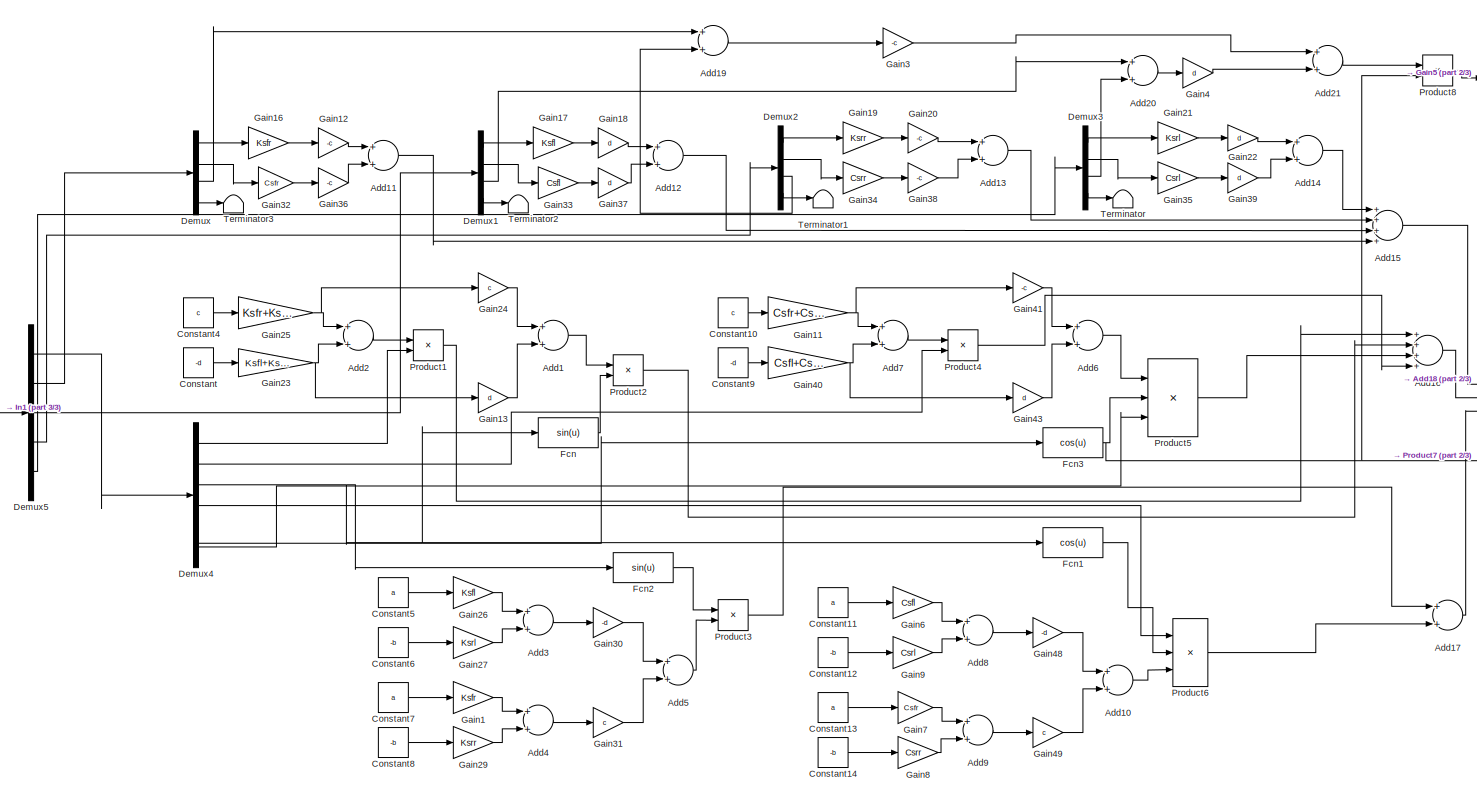
[diagram: (F17-19_FF18)(F20-21_FF20)(F22_FF22) |X1-22 Chassis Subsystem /F22_FF22|X1_22 - part 1/3, most of the canvas]
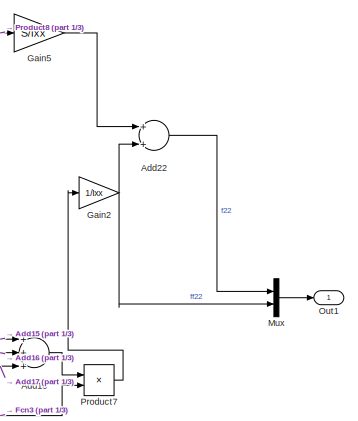
[diagram: (F17-19_FF18)(F20-21_FF20)(F22_FF22) |X1-22 Chassis Subsystem /F22_FF22|X1_22 - part 2/3, middle right region]
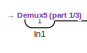
[diagram: (F17-19_FF18)(F20-21_FF20)(F22_FF22) |X1-22 Chassis Subsystem /F22_FF22|X1_22 - part 3/3, middle left region]
BLOCK [SubSystem] (F17-19_FF18)(F20-21_FF20)(F22_FF22) |X1-22 Chassis Subsystem /F22_FF22|X1_22
  Ports = [1, 1]
  RequestExecContextInheritance = off
  TreatAsAtomicUnit = on
  Variant = off
BLOCK [Sum] (F17-19_FF18)(F20-21_FF20)(F22_FF22) |X1-22 Chassis Subsystem /F22_FF22|X1_22/Add1
  InputSameDT = off
  OutDataTypeStr = Inherit: Inherit via internal rule
  Ports = [2, 1]
  SaturateOnIntegerOverflow = off
BLOCK [Sum] (F17-19_FF18)(F20-21_FF20)(F22_FF22) |X1-22 Chassis Subsystem /F22_FF22|X1_22/Add10
  InputSameDT = off
  OutDataTypeStr = Inherit: Inherit via internal rule
  Ports = [2, 1]
  SaturateOnIntegerOverflow = off
BLOCK [Sum] (F17-19_FF18)(F20-21_FF20)(F22_FF22) |X1-22 Chassis Subsystem /F22_FF22|X1_22/Add11
  InputSameDT = off
  OutDataTypeStr = Inherit: Inherit via internal rule
  Ports = [2, 1]
  SaturateOnIntegerOverflow = off
BLOCK [Sum] (F17-19_FF18)(F20-21_FF20)(F22_FF22) |X1-22 Chassis Subsystem /F22_FF22|X1_22/Add12
  InputSameDT = off
  OutDataTypeStr = Inherit: Inherit via internal rule
  Ports = [2, 1]
  SaturateOnIntegerOverflow = off
BLOCK [Sum] (F17-19_FF18)(F20-21_FF20)(F22_FF22) |X1-22 Chassis Subsystem /F22_FF22|X1_22/Add13
  InputSameDT = off
  OutDataTypeStr = Inherit: Inherit via internal rule
  Ports = [2, 1]
  SaturateOnIntegerOverflow = off
BLOCK [Sum] (F17-19_FF18)(F20-21_FF20)(F22_FF22) |X1-22 Chassis Subsystem /F22_FF22|X1_22/Add14
  InputSameDT = off
  OutDataTypeStr = Inherit: Inherit via internal rule
  Ports = [2, 1]
  SaturateOnIntegerOverflow = off
BLOCK [Sum] (F17-19_FF18)(F20-21_FF20)(F22_FF22) |X1-22 Chassis Subsystem /F22_FF22|X1_22/Add15
  InputSameDT = off
  Inputs = ++++
  OutDataTypeStr = Inherit: Inherit via internal rule
  Ports = [4, 1]
  SaturateOnIntegerOverflow = off
BLOCK [Sum] (F17-19_FF18)(F20-21_FF20)(F22_FF22) |X1-22 Chassis Subsystem /F22_FF22|X1_22/Add16
  InputSameDT = off
  Inputs = ++++
  OutDataTypeStr = Inherit: Inherit via internal rule
  Ports = [4, 1]
  SaturateOnIntegerOverflow = off
BLOCK [Sum] (F17-19_FF18)(F20-21_FF20)(F22_FF22) |X1-22 Chassis Subsystem /F22_FF22|X1_22/Add17
  InputSameDT = off
  OutDataTypeStr = Inherit: Inherit via internal rule
  Ports = [2, 1]
  SaturateOnIntegerOverflow = off
BLOCK [Sum] (F17-19_FF18)(F20-21_FF20)(F22_FF22) |X1-22 Chassis Subsystem /F22_FF22|X1_22/Add18
  InputSameDT = off
  Inputs = +++
  OutDataTypeStr = Inherit: Inherit via internal rule
  Ports = [3, 1]
  SaturateOnIntegerOverflow = off
BLOCK [Sum] (F17-19_FF18)(F20-21_FF20)(F22_FF22) |X1-22 Chassis Subsystem /F22_FF22|X1_22/Add19
  InputSameDT = off
  OutDataTypeStr = Inherit: Inherit via internal rule
  Ports = [2, 1]
  SaturateOnIntegerOverflow = off
BLOCK [Sum] (F17-19_FF18)(F20-21_FF20)(F22_FF22) |X1-22 Chassis Subsystem /F22_FF22|X1_22/Add2
  InputSameDT = off
  OutDataTypeStr = Inherit: Inherit via internal rule
  Ports = [2, 1]
  SaturateOnIntegerOverflow = off
BLOCK [Sum] (F17-19_FF18)(F20-21_FF20)(F22_FF22) |X1-22 Chassis Subsystem /F22_FF22|X1_22/Add20
  InputSameDT = off
  OutDataTypeStr = Inherit: Inherit via internal rule
  Ports = [2, 1]
  SaturateOnIntegerOverflow = off
BLOCK [Sum] (F17-19_FF18)(F20-21_FF20)(F22_FF22) |X1-22 Chassis Subsystem /F22_FF22|X1_22/Add21
  InputSameDT = off
  OutDataTypeStr = Inherit: Inherit via internal rule
  Ports = [2, 1]
  SaturateOnIntegerOverflow = off
BLOCK [Sum] (F17-19_FF18)(F20-21_FF20)(F22_FF22) |X1-22 Chassis Subsystem /F22_FF22|X1_22/Add22
  InputSameDT = off
  OutDataTypeStr = Inherit: Inherit via internal rule
  Ports = [2, 1]
  SaturateOnIntegerOverflow = off
BLOCK [Sum] (F17-19_FF18)(F20-21_FF20)(F22_FF22) |X1-22 Chassis Subsystem /F22_FF22|X1_22/Add3
  InputSameDT = off
  OutDataTypeStr = Inherit: Inherit via internal rule
  Ports = [2, 1]
  SaturateOnIntegerOverflow = off
BLOCK [Sum] (F17-19_FF18)(F20-21_FF20)(F22_FF22) |X1-22 Chassis Subsystem /F22_FF22|X1_22/Add4
  InputSameDT = off
  OutDataTypeStr = Inherit: Inherit via internal rule
  Ports = [2, 1]
  SaturateOnIntegerOverflow = off
BLOCK [Sum] (F17-19_FF18)(F20-21_FF20)(F22_FF22) |X1-22 Chassis Subsystem /F22_FF22|X1_22/Add5
  InputSameDT = off
  OutDataTypeStr = Inherit: Inherit via internal rule
  Ports = [2, 1]
  SaturateOnIntegerOverflow = off
BLOCK [Sum] (F17-19_FF18)(F20-21_FF20)(F22_FF22) |X1-22 Chassis Subsystem /F22_FF22|X1_22/Add6
  InputSameDT = off
  OutDataTypeStr = Inherit: Inherit via internal rule
  Ports = [2, 1]
  SaturateOnIntegerOverflow = off
BLOCK [Sum] (F17-19_FF18)(F20-21_FF20)(F22_FF22) |X1-22 Chassis Subsystem /F22_FF22|X1_22/Add7
  InputSameDT = off
  OutDataTypeStr = Inherit: Inherit via internal rule
  Ports = [2, 1]
  SaturateOnIntegerOverflow = off
BLOCK [Sum] (F17-19_FF18)(F20-21_FF20)(F22_FF22) |X1-22 Chassis Subsystem /F22_FF22|X1_22/Add8
  InputSameDT = off
  OutDataTypeStr = Inherit: Inherit via internal rule
  Ports = [2, 1]
  SaturateOnIntegerOverflow = off
BLOCK [Sum] (F17-19_FF18)(F20-21_FF20)(F22_FF22) |X1-22 Chassis Subsystem /F22_FF22|X1_22/Add9
  InputSameDT = off
  OutDataTypeStr = Inherit: Inherit via internal rule
  Ports = [2, 1]
  SaturateOnIntegerOverflow = off
BLOCK [Constant] (F17-19_FF18)(F20-21_FF20)(F22_FF22) |X1-22 Chassis Subsystem /F22_FF22|X1_22/Constant
  Value = -d
BLOCK [Constant] (F17-19_FF18)(F20-21_FF20)(F22_FF22) |X1-22 Chassis Subsystem /F22_FF22|X1_22/Constant10
  Value = c
BLOCK [Constant] (F17-19_FF18)(F20-21_FF20)(F22_FF22) |X1-22 Chassis Subsystem /F22_FF22|X1_22/Constant11
  Value = a
BLOCK [Constant] (F17-19_FF18)(F20-21_FF20)(F22_FF22) |X1-22 Chassis Subsystem /F22_FF22|X1_22/Constant12
  Value = -b
BLOCK [Constant] (F17-19_FF18)(F20-21_FF20)(F22_FF22) |X1-22 Chassis Subsystem /F22_FF22|X1_22/Constant13
  Value = a
BLOCK [Constant] (F17-19_FF18)(F20-21_FF20)(F22_FF22) |X1-22 Chassis Subsystem /F22_FF22|X1_22/Constant14
  Value = -b
BLOCK [Constant] (F17-19_FF18)(F20-21_FF20)(F22_FF22) |X1-22 Chassis Subsystem /F22_FF22|X1_22/Constant4
  Value = c
BLOCK [Constant] (F17-19_FF18)(F20-21_FF20)(F22_FF22) |X1-22 Chassis Subsystem /F22_FF22|X1_22/Constant5
  Value = a
BLOCK [Constant] (F17-19_FF18)(F20-21_FF20)(F22_FF22) |X1-22 Chassis Subsystem /F22_FF22|X1_22/Constant6
  Value = -b
BLOCK [Constant] (F17-19_FF18)(F20-21_FF20)(F22_FF22) |X1-22 Chassis Subsystem /F22_FF22|X1_22/Constant7
  Value = a
BLOCK [Constant] (F17-19_FF18)(F20-21_FF20)(F22_FF22) |X1-22 Chassis Subsystem /F22_FF22|X1_22/Constant8
  Value = -b
BLOCK [Constant] (F17-19_FF18)(F20-21_FF20)(F22_FF22) |X1-22 Chassis Subsystem /F22_FF22|X1_22/Constant9
  Value = -d
BLOCK [Demux] (F17-19_FF18)(F20-21_FF20)(F22_FF22) |X1-22 Chassis Subsystem /F22_FF22|X1_22/Demux
  DisplayOption = bar
  Ports = [1, 4]
BLOCK [Demux] (F17-19_FF18)(F20-21_FF20)(F22_FF22) |X1-22 Chassis Subsystem /F22_FF22|X1_22/Demux1
  DisplayOption = bar
  Ports = [1, 4]
BLOCK [Demux] (F17-19_FF18)(F20-21_FF20)(F22_FF22) |X1-22 Chassis Subsystem /F22_FF22|X1_22/Demux2
  DisplayOption = bar
  Ports = [1, 4]
BLOCK [Demux] (F17-19_FF18)(F20-21_FF20)(F22_FF22) |X1-22 Chassis Subsystem /F22_FF22|X1_22/Demux3
  DisplayOption = bar
  Ports = [1, 4]
BLOCK [Demux] (F17-19_FF18)(F20-21_FF20)(F22_FF22) |X1-22 Chassis Subsystem /F22_FF22|X1_22/Demux4
  DisplayOption = bar
  Outputs = 6
  Ports = [1, 6]
BLOCK [Demux] (F17-19_FF18)(F20-21_FF20)(F22_FF22) |X1-22 Chassis Subsystem /F22_FF22|X1_22/Demux5
  DisplayOption = bar
  Outputs = 5
  Ports = [1, 5]
BLOCK [Fcn] (F17-19_FF18)(F20-21_FF20)(F22_FF22) |X1-22 Chassis Subsystem /F22_FF22|X1_22/Fcn
  Expr = sin(u)
BLOCK [Fcn] (F17-19_FF18)(F20-21_FF20)(F22_FF22) |X1-22 Chassis Subsystem /F22_FF22|X1_22/Fcn1
  Expr = cos(u)
BLOCK [Fcn] (F17-19_FF18)(F20-21_FF20)(F22_FF22) |X1-22 Chassis Subsystem /F22_FF22|X1_22/Fcn2
  Expr = sin(u)
BLOCK [Fcn] (F17-19_FF18)(F20-21_FF20)(F22_FF22) |X1-22 Chassis Subsystem /F22_FF22|X1_22/Fcn3
  Expr = cos(u)
BLOCK [Gain] (F17-19_FF18)(F20-21_FF20)(F22_FF22) |X1-22 Chassis Subsystem /F22_FF22|X1_22/Gain1
  Gain = Ksfr
  OutDataTypeStr = Inherit: Inherit via internal rule
  ParamDataTypeStr = Inherit: Inherit via internal rule
  SaturateOnIntegerOverflow = off
BLOCK [Gain] (F17-19_FF18)(F20-21_FF20)(F22_FF22) |X1-22 Chassis Subsystem /F22_FF22|X1_22/Gain11
  Gain = Csfr+Csrr
  OutDataTypeStr = Inherit: Inherit via internal rule
  ParamDataTypeStr = Inherit: Inherit via internal rule
  SaturateOnIntegerOverflow = off
BLOCK [Gain] (F17-19_FF18)(F20-21_FF20)(F22_FF22) |X1-22 Chassis Subsystem /F22_FF22|X1_22/Gain12
  Gain = -c
  OutDataTypeStr = Inherit: Inherit via internal rule
  ParamDataTypeStr = Inherit: Inherit via internal rule
  SaturateOnIntegerOverflow = off
BLOCK [Gain] (F17-19_FF18)(F20-21_FF20)(F22_FF22) |X1-22 Chassis Subsystem /F22_FF22|X1_22/Gain13
  Gain = d
  OutDataTypeStr = Inherit: Inherit via internal rule
  ParamDataTypeStr = Inherit: Inherit via internal rule
  SaturateOnIntegerOverflow = off
BLOCK [Gain] (F17-19_FF18)(F20-21_FF20)(F22_FF22) |X1-22 Chassis Subsystem /F22_FF22|X1_22/Gain16
  Gain = Ksfr
  OutDataTypeStr = Inherit: Inherit via internal rule
  ParamDataTypeStr = Inherit: Inherit via internal rule
  SaturateOnIntegerOverflow = off
BLOCK [Gain] (F17-19_FF18)(F20-21_FF20)(F22_FF22) |X1-22 Chassis Subsystem /F22_FF22|X1_22/Gain17
  Gain = Ksfl
  OutDataTypeStr = Inherit: Inherit via internal rule
  ParamDataTypeStr = Inherit: Inherit via internal rule
  SaturateOnIntegerOverflow = off
BLOCK [Gain] (F17-19_FF18)(F20-21_FF20)(F22_FF22) |X1-22 Chassis Subsystem /F22_FF22|X1_22/Gain18
  Gain = d
  OutDataTypeStr = Inherit: Inherit via internal rule
  ParamDataTypeStr = Inherit: Inherit via internal rule
  SaturateOnIntegerOverflow = off
BLOCK [Gain] (F17-19_FF18)(F20-21_FF20)(F22_FF22) |X1-22 Chassis Subsystem /F22_FF22|X1_22/Gain19
  Gain = Ksrr
  OutDataTypeStr = Inherit: Inherit via internal rule
  ParamDataTypeStr = Inherit: Inherit via internal rule
  SaturateOnIntegerOverflow = off
BLOCK [Gain] (F17-19_FF18)(F20-21_FF20)(F22_FF22) |X1-22 Chassis Subsystem /F22_FF22|X1_22/Gain2
  Gain = 1/Ixx
  OutDataTypeStr = Inherit: Inherit via internal rule
  ParamDataTypeStr = Inherit: Inherit via internal rule
  SaturateOnIntegerOverflow = off
BLOCK [Gain] (F17-19_FF18)(F20-21_FF20)(F22_FF22) |X1-22 Chassis Subsystem /F22_FF22|X1_22/Gain20
  Gain = -c
  OutDataTypeStr = Inherit: Inherit via internal rule
  ParamDataTypeStr = Inherit: Inherit via internal rule
  SaturateOnIntegerOverflow = off
BLOCK [Gain] (F17-19_FF18)(F20-21_FF20)(F22_FF22) |X1-22 Chassis Subsystem /F22_FF22|X1_22/Gain21
  Gain = Ksrl
  OutDataTypeStr = Inherit: Inherit via internal rule
  ParamDataTypeStr = Inherit: Inherit via internal rule
  SaturateOnIntegerOverflow = off
BLOCK [Gain] (F17-19_FF18)(F20-21_FF20)(F22_FF22) |X1-22 Chassis Subsystem /F22_FF22|X1_22/Gain22
  Gain = d
  OutDataTypeStr = Inherit: Inherit via internal rule
  ParamDataTypeStr = Inherit: Inherit via internal rule
  SaturateOnIntegerOverflow = off
BLOCK [Gain] (F17-19_FF18)(F20-21_FF20)(F22_FF22) |X1-22 Chassis Subsystem /F22_FF22|X1_22/Gain23
  Gain = Ksfl+Ksrl
  OutDataTypeStr = Inherit: Inherit via internal rule
  ParamDataTypeStr = Inherit: Inherit via internal rule
  SaturateOnIntegerOverflow = off
BLOCK [Gain] (F17-19_FF18)(F20-21_FF20)(F22_FF22) |X1-22 Chassis Subsystem /F22_FF22|X1_22/Gain24
  Gain = c
  OutDataTypeStr = Inherit: Inherit via internal rule
  ParamDataTypeStr = Inherit: Inherit via internal rule
  SaturateOnIntegerOverflow = off
BLOCK [Gain] (F17-19_FF18)(F20-21_FF20)(F22_FF22) |X1-22 Chassis Subsystem /F22_FF22|X1_22/Gain25
  Gain = Ksfr+Ksrr
  OutDataTypeStr = Inherit: Inherit via internal rule
  ParamDataTypeStr = Inherit: Inherit via internal rule
  SaturateOnIntegerOverflow = off
BLOCK [Gain] (F17-19_FF18)(F20-21_FF20)(F22_FF22) |X1-22 Chassis Subsystem /F22_FF22|X1_22/Gain26
  Gain = Ksfl
  OutDataTypeStr = Inherit: Inherit via internal rule
  ParamDataTypeStr = Inherit: Inherit via internal rule
  SaturateOnIntegerOverflow = off
BLOCK [Gain] (F17-19_FF18)(F20-21_FF20)(F22_FF22) |X1-22 Chassis Subsystem /F22_FF22|X1_22/Gain27
  Gain = Ksrl
  OutDataTypeStr = Inherit: Inherit via internal rule
  ParamDataTypeStr = Inherit: Inherit via internal rule
  SaturateOnIntegerOverflow = off
BLOCK [Gain] (F17-19_FF18)(F20-21_FF20)(F22_FF22) |X1-22 Chassis Subsystem /F22_FF22|X1_22/Gain29
  Gain = Ksrr
  OutDataTypeStr = Inherit: Inherit via internal rule
  ParamDataTypeStr = Inherit: Inherit via internal rule
  SaturateOnIntegerOverflow = off
BLOCK [Gain] (F17-19_FF18)(F20-21_FF20)(F22_FF22) |X1-22 Chassis Subsystem /F22_FF22|X1_22/Gain3
  Gain = -c
  OutDataTypeStr = Inherit: Inherit via internal rule
  ParamDataTypeStr = Inherit: Inherit via internal rule
  SaturateOnIntegerOverflow = off
BLOCK [Gain] (F17-19_FF18)(F20-21_FF20)(F22_FF22) |X1-22 Chassis Subsystem /F22_FF22|X1_22/Gain30
  Gain = -d
  OutDataTypeStr = Inherit: Inherit via internal rule
  ParamDataTypeStr = Inherit: Inherit via internal rule
  SaturateOnIntegerOverflow = off
BLOCK [Gain] (F17-19_FF18)(F20-21_FF20)(F22_FF22) |X1-22 Chassis Subsystem /F22_FF22|X1_22/Gain31
  Gain = c
  OutDataTypeStr = Inherit: Inherit via internal rule
  ParamDataTypeStr = Inherit: Inherit via internal rule
  SaturateOnIntegerOverflow = off
BLOCK [Gain] (F17-19_FF18)(F20-21_FF20)(F22_FF22) |X1-22 Chassis Subsystem /F22_FF22|X1_22/Gain32
  Gain = Csfr
  OutDataTypeStr = Inherit: Inherit via internal rule
  ParamDataTypeStr = Inherit: Inherit via internal rule
  SaturateOnIntegerOverflow = off
BLOCK [Gain] (F17-19_FF18)(F20-21_FF20)(F22_FF22) |X1-22 Chassis Subsystem /F22_FF22|X1_22/Gain33
  Gain = Csfl
  OutDataTypeStr = Inherit: Inherit via internal rule
  ParamDataTypeStr = Inherit: Inherit via internal rule
  SaturateOnIntegerOverflow = off
BLOCK [Gain] (F17-19_FF18)(F20-21_FF20)(F22_FF22) |X1-22 Chassis Subsystem /F22_FF22|X1_22/Gain34
  Gain = Csrr
  OutDataTypeStr = Inherit: Inherit via internal rule
  ParamDataTypeStr = Inherit: Inherit via internal rule
  SaturateOnIntegerOverflow = off
BLOCK [Gain] (F17-19_FF18)(F20-21_FF20)(F22_FF22) |X1-22 Chassis Subsystem /F22_FF22|X1_22/Gain35
  Gain = Csrl
  OutDataTypeStr = Inherit: Inherit via internal rule
  ParamDataTypeStr = Inherit: Inherit via internal rule
  SaturateOnIntegerOverflow = off
BLOCK [Gain] (F17-19_FF18)(F20-21_FF20)(F22_FF22) |X1-22 Chassis Subsystem /F22_FF22|X1_22/Gain36
  Gain = -c
  OutDataTypeStr = Inherit: Inherit via internal rule
  ParamDataTypeStr = Inherit: Inherit via internal rule
  SaturateOnIntegerOverflow = off
BLOCK [Gain] (F17-19_FF18)(F20-21_FF20)(F22_FF22) |X1-22 Chassis Subsystem /F22_FF22|X1_22/Gain37
  Gain = d
  OutDataTypeStr = Inherit: Inherit via internal rule
  ParamDataTypeStr = Inherit: Inherit via internal rule
  SaturateOnIntegerOverflow = off
BLOCK [Gain] (F17-19_FF18)(F20-21_FF20)(F22_FF22) |X1-22 Chassis Subsystem /F22_FF22|X1_22/Gain38
  Gain = -c
  OutDataTypeStr = Inherit: Inherit via internal rule
  ParamDataTypeStr = Inherit: Inherit via internal rule
  SaturateOnIntegerOverflow = off
BLOCK [Gain] (F17-19_FF18)(F20-21_FF20)(F22_FF22) |X1-22 Chassis Subsystem /F22_FF22|X1_22/Gain39
  Gain = d
  OutDataTypeStr = Inherit: Inherit via internal rule
  ParamDataTypeStr = Inherit: Inherit via internal rule
  SaturateOnIntegerOverflow = off
BLOCK [Gain] (F17-19_FF18)(F20-21_FF20)(F22_FF22) |X1-22 Chassis Subsystem /F22_FF22|X1_22/Gain4
  Gain = d
  OutDataTypeStr = Inherit: Inherit via internal rule
  ParamDataTypeStr = Inherit: Inherit via internal rule
  SaturateOnIntegerOverflow = off
BLOCK [Gain] (F17-19_FF18)(F20-21_FF20)(F22_FF22) |X1-22 Chassis Subsystem /F22_FF22|X1_22/Gain40
  Gain = Csfl+Csrl
  OutDataTypeStr = Inherit: Inherit via internal rule
  ParamDataTypeStr = Inherit: Inherit via internal rule
  SaturateOnIntegerOverflow = off
BLOCK [Gain] (F17-19_FF18)(F20-21_FF20)(F22_FF22) |X1-22 Chassis Subsystem /F22_FF22|X1_22/Gain41
  Gain = -c
  OutDataTypeStr = Inherit: Inherit via internal rule
  ParamDataTypeStr = Inherit: Inherit via internal rule
  SaturateOnIntegerOverflow = off
BLOCK [Gain] (F17-19_FF18)(F20-21_FF20)(F22_FF22) |X1-22 Chassis Subsystem /F22_FF22|X1_22/Gain43
  Gain = d
  OutDataTypeStr = Inherit: Inherit via internal rule
  ParamDataTypeStr = Inherit: Inherit via internal rule
  SaturateOnIntegerOverflow = off
BLOCK [Gain] (F17-19_FF18)(F20-21_FF20)(F22_FF22) |X1-22 Chassis Subsystem /F22_FF22|X1_22/Gain48
  Gain = -d
  OutDataTypeStr = Inherit: Inherit via internal rule
  ParamDataTypeStr = Inherit: Inherit via internal rule
  SaturateOnIntegerOverflow = off
BLOCK [Gain] (F17-19_FF18)(F20-21_FF20)(F22_FF22) |X1-22 Chassis Subsystem /F22_FF22|X1_22/Gain49
  Gain = c
  OutDataTypeStr = Inherit: Inherit via internal rule
  ParamDataTypeStr = Inherit: Inherit via internal rule
  SaturateOnIntegerOverflow = off
BLOCK [Gain] (F17-19_FF18)(F20-21_FF20)(F22_FF22) |X1-22 Chassis Subsystem /F22_FF22|X1_22/Gain5
  Gain = S/Ixx
  OutDataTypeStr = Inherit: Inherit via internal rule
  ParamDataTypeStr = Inherit: Inherit via internal rule
  SaturateOnIntegerOverflow = off
BLOCK [Gain] (F17-19_FF18)(F20-21_FF20)(F22_FF22) |X1-22 Chassis Subsystem /F22_FF22|X1_22/Gain6
  Gain = Csfl
  OutDataTypeStr = Inherit: Inherit via internal rule
  ParamDataTypeStr = Inherit: Inherit via internal rule
  SaturateOnIntegerOverflow = off
BLOCK [Gain] (F17-19_FF18)(F20-21_FF20)(F22_FF22) |X1-22 Chassis Subsystem /F22_FF22|X1_22/Gain7
  Gain = Csfr
  OutDataTypeStr = Inherit: Inherit via internal rule
  ParamDataTypeStr = Inherit: Inherit via internal rule
  SaturateOnIntegerOverflow = off
BLOCK [Gain] (F17-19_FF18)(F20-21_FF20)(F22_FF22) |X1-22 Chassis Subsystem /F22_FF22|X1_22/Gain8
  Gain = Csrr
  OutDataTypeStr = Inherit: Inherit via internal rule
  ParamDataTypeStr = Inherit: Inherit via internal rule
  SaturateOnIntegerOverflow = off
BLOCK [Gain] (F17-19_FF18)(F20-21_FF20)(F22_FF22) |X1-22 Chassis Subsystem /F22_FF22|X1_22/Gain9
  Gain = Csrl
  OutDataTypeStr = Inherit: Inherit via internal rule
  ParamDataTypeStr = Inherit: Inherit via internal rule
  SaturateOnIntegerOverflow = off
BLOCK [Inport] (F17-19_FF18)(F20-21_FF20)(F22_FF22) |X1-22 Chassis Subsystem /F22_FF22|X1_22/In1
  IconDisplay = Port number
BLOCK [Mux] (F17-19_FF18)(F20-21_FF20)(F22_FF22) |X1-22 Chassis Subsystem /F22_FF22|X1_22/Mux
  DisplayOption = bar
  Inputs = 2
  Ports = [2, 1]
BLOCK [Outport] (F17-19_FF18)(F20-21_FF20)(F22_FF22) |X1-22 Chassis Subsystem /F22_FF22|X1_22/Out1
  IconDisplay = Port number
BLOCK [Product] (F17-19_FF18)(F20-21_FF20)(F22_FF22) |X1-22 Chassis Subsystem /F22_FF22|X1_22/Product1
  InputSameDT = off
  OutDataTypeStr = Inherit: Inherit via internal rule
  Ports = [2, 1]
  RndMeth = Floor
  SaturateOnIntegerOverflow = off
BLOCK [Product] (F17-19_FF18)(F20-21_FF20)(F22_FF22) |X1-22 Chassis Subsystem /F22_FF22|X1_22/Product2
  InputSameDT = off
  OutDataTypeStr = Inherit: Inherit via internal rule
  Ports = [2, 1]
  RndMeth = Floor
  SaturateOnIntegerOverflow = off
BLOCK [Product] (F17-19_FF18)(F20-21_FF20)(F22_FF22) |X1-22 Chassis Subsystem /F22_FF22|X1_22/Product3
  InputSameDT = off
  OutDataTypeStr = Inherit: Inherit via internal rule
  Ports = [2, 1]
  RndMeth = Floor
  SaturateOnIntegerOverflow = off
BLOCK [Product] (F17-19_FF18)(F20-21_FF20)(F22_FF22) |X1-22 Chassis Subsystem /F22_FF22|X1_22/Product4
  InputSameDT = off
  OutDataTypeStr = Inherit: Inherit via internal rule
  Ports = [2, 1]
  RndMeth = Floor
  SaturateOnIntegerOverflow = off
BLOCK [Product] (F17-19_FF18)(F20-21_FF20)(F22_FF22) |X1-22 Chassis Subsystem /F22_FF22|X1_22/Product5
  InputSameDT = off
  Inputs = 3
  OutDataTypeStr = Inherit: Inherit via internal rule
  Ports = [3, 1]
  RndMeth = Floor
  SaturateOnIntegerOverflow = off
BLOCK [Product] (F17-19_FF18)(F20-21_FF20)(F22_FF22) |X1-22 Chassis Subsystem /F22_FF22|X1_22/Product6
  InputSameDT = off
  Inputs = 3
  OutDataTypeStr = Inherit: Inherit via internal rule
  Ports = [3, 1]
  RndMeth = Floor
  SaturateOnIntegerOverflow = off
BLOCK [Product] (F17-19_FF18)(F20-21_FF20)(F22_FF22) |X1-22 Chassis Subsystem /F22_FF22|X1_22/Product7
  InputSameDT = off
  OutDataTypeStr = Inherit: Inherit via internal rule
  Ports = [2, 1]
  RndMeth = Floor
  SaturateOnIntegerOverflow = off
BLOCK [Product] (F17-19_FF18)(F20-21_FF20)(F22_FF22) |X1-22 Chassis Subsystem /F22_FF22|X1_22/Product8
  InputSameDT = off
  OutDataTypeStr = Inherit: Inherit via internal rule
  Ports = [2, 1]
  RndMeth = Floor
  SaturateOnIntegerOverflow = off
BLOCK [Terminator] (F17-19_FF18)(F20-21_FF20)(F22_FF22) |X1-22 Chassis Subsystem /F22_FF22|X1_22/Terminator
BLOCK [Terminator] (F17-19_FF18)(F20-21_FF20)(F22_FF22) |X1-22 Chassis Subsystem /F22_FF22|X1_22/Terminator1
BLOCK [Terminator] (F17-19_FF18)(F20-21_FF20)(F22_FF22) |X1-22 Chassis Subsystem /F22_FF22|X1_22/Terminator2
BLOCK [Terminator] (F17-19_FF18)(F20-21_FF20)(F22_FF22) |X1-22 Chassis Subsystem /F22_FF22|X1_22/Terminator3
BLOCK [Inport] (F17-19_FF18)(F20-21_FF20)(F22_FF22) |X1-22 Chassis Subsystem /In1
  IconDisplay = Port number
BLOCK [Outport] (F17-19_FF18)(F20-21_FF20)(F22_FF22) |X1-22 Chassis Subsystem /Out1
  IconDisplay = Port number
BLOCK [Outport] (F17-19_FF18)(F20-21_FF20)(F22_FF22) |X1-22 Chassis Subsystem /Out2
  IconDisplay = Port number
  Port = 2
BLOCK [Outport] (F17-19_FF18)(F20-21_FF20)(F22_FF22) |X1-22 Chassis Subsystem /Out3
  IconDisplay = Port number
  Port = 3
BLOCK [SubSystem] F1-16|X1-22_Vehicle 
  Ports = [1, 1]
  RequestExecContextInheritance = off
  TreatAsAtomicUnit = on
  Variant = off
BLOCK [Demux] F1-16|X1-22_Vehicle /Demux
  DisplayOption = bar
  Outputs = 5
  Ports = [1, 5]
BLOCK [SubSystem] F1-16|X1-22_Vehicle /F1-4|X17-22_1-4
  Ports = [1, 1]
  RequestExecContextInheritance = off
  TreatAsAtomicUnit = on
  Variant = off
BLOCK [Abs] F1-16|X1-22_Vehicle /F1-4|X17-22_1-4/Abs
  SaturateOnIntegerOverflow = off
BLOCK [Sum] F1-16|X1-22_Vehicle /F1-4|X17-22_1-4/Add
  InputSameDT = off
  Inputs = +++++++++
  OutDataTypeStr = Inherit: Inherit via internal rule
  Ports = [9, 1]
  SaturateOnIntegerOverflow = off
BLOCK [Sum] F1-16|X1-22_Vehicle /F1-4|X17-22_1-4/Add1
  InputSameDT = off
  OutDataTypeStr = Inherit: Inherit via internal rule
  Ports = [2, 1]
  SaturateOnIntegerOverflow = off
BLOCK [Sum] F1-16|X1-22_Vehicle /F1-4|X17-22_1-4/Add2
  InputSameDT = off
  Inputs = -+++
  OutDataTypeStr = Inherit: Inherit via internal rule
  Ports = [4, 1]
  SaturateOnIntegerOverflow = off
BLOCK [Sum] F1-16|X1-22_Vehicle /F1-4|X17-22_1-4/Add3
  InputSameDT = off
  Inputs = +-
  OutDataTypeStr = Inherit: Inherit via internal rule
  Ports = [2, 1]
  SaturateOnIntegerOverflow = off
BLOCK [Sum] F1-16|X1-22_Vehicle /F1-4|X17-22_1-4/Add4
  InputSameDT = off
  OutDataTypeStr = Inherit: Inherit via internal rule
  Ports = [2, 1]
  SaturateOnIntegerOverflow = off
BLOCK [Constant] F1-16|X1-22_Vehicle /F1-4|X17-22_1-4/Constant
  Value = alpha
BLOCK [Constant] F1-16|X1-22_Vehicle /F1-4|X17-22_1-4/Constant1
  Value = Ps
BLOCK [Demux] F1-16|X1-22_Vehicle /F1-4|X17-22_1-4/Demux
  DisplayOption = bar
  Ports = [1, 4]
BLOCK [Demux] F1-16|X1-22_Vehicle /F1-4|X17-22_1-4/Demux1
  DisplayOption = bar
  Outputs = 2
  Ports = [1, 2]
BLOCK [Demux] F1-16|X1-22_Vehicle /F1-4|X17-22_1-4/Demux4
  DisplayOption = bar
  Outputs = 6
  Ports = [1, 6]
BLOCK [Fcn] F1-16|X1-22_Vehicle /F1-4|X17-22_1-4/Fcn
  Expr = sin(u)
BLOCK [Fcn] F1-16|X1-22_Vehicle /F1-4|X17-22_1-4/Fcn3
  Expr = sin(u)
BLOCK [Fcn] F1-16|X1-22_Vehicle /F1-4|X17-22_1-4/Fcn4
  Expr = cos(u)
BLOCK [Fcn] F1-16|X1-22_Vehicle /F1-4|X17-22_1-4/Fcn5
  Expr = cos(u)
BLOCK [Gain] F1-16|X1-22_Vehicle /F1-4|X17-22_1-4/Gain
  Gain = -(Ksfr+Kufr)
  OutDataTypeStr = Inherit: Inherit via internal rule
  ParamDataTypeStr = Inherit: Inherit via internal rule
  SaturateOnIntegerOverflow = off
BLOCK [Gain] F1-16|X1-22_Vehicle /F1-4|X17-22_1-4/Gain1
  Gain = Ksfr
  OutDataTypeStr = Inherit: Inherit via internal rule
  ParamDataTypeStr = Inherit: Inherit via internal rule
  SaturateOnIntegerOverflow = off
BLOCK [Gain] F1-16|X1-22_Vehicle /F1-4|X17-22_1-4/Gain10
  Gain = Csfr
  OutDataTypeStr = Inherit: Inherit via internal rule
  ParamDataTypeStr = Inherit: Inherit via internal rule
  SaturateOnIntegerOverflow = off
BLOCK [Gain] F1-16|X1-22_Vehicle /F1-4|X17-22_1-4/Gain11
  Gain = gama
  OutDataTypeStr = Inherit: Inherit via internal rule
  ParamDataTypeStr = Inherit: Inherit via internal rule
  SaturateOnIntegerOverflow = off
BLOCK [Gain] F1-16|X1-22_Vehicle /F1-4|X17-22_1-4/Gain12
  Gain = -c
  OutDataTypeStr = Inherit: Inherit via internal rule
  ParamDataTypeStr = Inherit: Inherit via internal rule
  SaturateOnIntegerOverflow = off
BLOCK [Gain] F1-16|X1-22_Vehicle /F1-4|X17-22_1-4/Gain13
  Gain = -S
  OutDataTypeStr = Inherit: Inherit via internal rule
  ParamDataTypeStr = Inherit: Inherit via internal rule
  SaturateOnIntegerOverflow = off
BLOCK [Gain] F1-16|X1-22_Vehicle /F1-4|X17-22_1-4/Gain14
  Gain = Csfr
  OutDataTypeStr = Inherit: Inherit via internal rule
  ParamDataTypeStr = Inherit: Inherit via internal rule
  SaturateOnIntegerOverflow = off
BLOCK [Gain] F1-16|X1-22_Vehicle /F1-4|X17-22_1-4/Gain15
  Gain = -S
  OutDataTypeStr = Inherit: Inherit via internal rule
  ParamDataTypeStr = Inherit: Inherit via internal rule
  SaturateOnIntegerOverflow = off
BLOCK [Gain] F1-16|X1-22_Vehicle /F1-4|X17-22_1-4/Gain16
  Gain = -1/tao
  OutDataTypeStr = Inherit: Inherit via internal rule
  ParamDataTypeStr = Inherit: Inherit via internal rule
  SaturateOnIntegerOverflow = off
BLOCK [Gain] F1-16|X1-22_Vehicle /F1-4|X17-22_1-4/Gain17
  Gain = 1/m
  OutDataTypeStr = Inherit: Inherit via internal rule
  ParamDataTypeStr = Inherit: Inherit via internal rule
  SaturateOnIntegerOverflow = off
BLOCK [Gain] F1-16|X1-22_Vehicle /F1-4|X17-22_1-4/Gain18
  OutDataTypeStr = Inherit: Inherit via internal rule
  ParamDataTypeStr = Inherit: Inherit via internal rule
  SaturateOnIntegerOverflow = off
BLOCK [Gain] F1-16|X1-22_Vehicle /F1-4|X17-22_1-4/Gain2
  Gain = a
  OutDataTypeStr = Inherit: Inherit via internal rule
  ParamDataTypeStr = Inherit: Inherit via internal rule
  SaturateOnIntegerOverflow = off
BLOCK [Gain] F1-16|X1-22_Vehicle /F1-4|X17-22_1-4/Gain3
  Gain = -beta
  OutDataTypeStr = Inherit: Inherit via internal rule
  ParamDataTypeStr = Inherit: Inherit via internal rule
  SaturateOnIntegerOverflow = off
BLOCK [Gain] F1-16|X1-22_Vehicle /F1-4|X17-22_1-4/Gain4
  Gain = Ksfr
  OutDataTypeStr = Inherit: Inherit via internal rule
  ParamDataTypeStr = Inherit: Inherit via internal rule
  SaturateOnIntegerOverflow = off
BLOCK [Gain] F1-16|X1-22_Vehicle /F1-4|X17-22_1-4/Gain5
  Gain = -c
  OutDataTypeStr = Inherit: Inherit via internal rule
  ParamDataTypeStr = Inherit: Inherit via internal rule
  SaturateOnIntegerOverflow = off
BLOCK [Gain] F1-16|X1-22_Vehicle /F1-4|X17-22_1-4/Gain6
  Gain = Ksfr
  OutDataTypeStr = Inherit: Inherit via internal rule
  ParamDataTypeStr = Inherit: Inherit via internal rule
  SaturateOnIntegerOverflow = off
BLOCK [Gain] F1-16|X1-22_Vehicle /F1-4|X17-22_1-4/Gain7
  Gain = -Csfr
  OutDataTypeStr = Inherit: Inherit via internal rule
  ParamDataTypeStr = Inherit: Inherit via internal rule
  SaturateOnIntegerOverflow = off
BLOCK [Gain] F1-16|X1-22_Vehicle /F1-4|X17-22_1-4/Gain8
  Gain = Csfr
  OutDataTypeStr = Inherit: Inherit via internal rule
  ParamDataTypeStr = Inherit: Inherit via internal rule
  SaturateOnIntegerOverflow = off
BLOCK [Gain] F1-16|X1-22_Vehicle /F1-4|X17-22_1-4/Gain9
  Gain = a
  OutDataTypeStr = Inherit: Inherit via internal rule
  ParamDataTypeStr = Inherit: Inherit via internal rule
  SaturateOnIntegerOverflow = off
BLOCK [Inport] F1-16|X1-22_Vehicle /F1-4|X17-22_1-4/In1
  IconDisplay = Port number
BLOCK [Mux] F1-16|X1-22_Vehicle /F1-4|X17-22_1-4/Mux
  DisplayOption = bar
  Ports = [4, 1]
BLOCK [Outport] F1-16|X1-22_Vehicle /F1-4|X17-22_1-4/Out1
  IconDisplay = Port number
BLOCK [Product] F1-16|X1-22_Vehicle /F1-4|X17-22_1-4/Product
  InputSameDT = off
  OutDataTypeStr = Inherit: Inherit via internal rule
  Ports = [2, 1]
  RndMeth = Floor
  SaturateOnIntegerOverflow = off
BLOCK [Product] F1-16|X1-22_Vehicle /F1-4|X17-22_1-4/Product1
  InputSameDT = off
  OutDataTypeStr = Inherit: Inherit via internal rule
  Ports = [2, 1]
  RndMeth = Floor
  SaturateOnIntegerOverflow = off
BLOCK [Product] F1-16|X1-22_Vehicle /F1-4|X17-22_1-4/Product2
  InputSameDT = off
  OutDataTypeStr = Inherit: Inherit via internal rule
  Ports = [2, 1]
  RndMeth = Floor
  SaturateOnIntegerOverflow = off
BLOCK [Product] F1-16|X1-22_Vehicle /F1-4|X17-22_1-4/Product3
  InputSameDT = off
  OutDataTypeStr = Inherit: Inherit via internal rule
  Ports = [2, 1]
  RndMeth = Floor
  SaturateOnIntegerOverflow = off
BLOCK [Product] F1-16|X1-22_Vehicle /F1-4|X17-22_1-4/Product4
  InputSameDT = off
  Inputs = 3
  OutDataTypeStr = Inherit: Inherit via internal rule
  Ports = [3, 1]
  RndMeth = Floor
  SaturateOnIntegerOverflow = off
BLOCK [Signum] F1-16|X1-22_Vehicle /F1-4|X17-22_1-4/Sign
BLOCK [Signum] F1-16|X1-22_Vehicle /F1-4|X17-22_1-4/Sign1
BLOCK [Sqrt] F1-16|X1-22_Vehicle /F1-4|X17-22_1-4/Sqrt
BLOCK [SubSystem] F1-16|X1-22_Vehicle /F13-16|X17-22_13-16
  Ports = [1, 1]
  RequestExecContextInheritance = off
  TreatAsAtomicUnit = on
  Variant = off
BLOCK [Abs] F1-16|X1-22_Vehicle /F13-16|X17-22_13-16/Abs
  SaturateOnIntegerOverflow = off
BLOCK [Sum] F1-16|X1-22_Vehicle /F13-16|X17-22_13-16/Add1
  InputSameDT = off
  Inputs = +++++++++
  OutDataTypeStr = Inherit: Inherit via internal rule
  Ports = [9, 1]
  SaturateOnIntegerOverflow = off
BLOCK [Sum] F1-16|X1-22_Vehicle /F13-16|X17-22_13-16/Add2
  InputSameDT = off
  OutDataTypeStr = Inherit: Inherit via internal rule
  Ports = [2, 1]
  SaturateOnIntegerOverflow = off
BLOCK [Sum] F1-16|X1-22_Vehicle /F13-16|X17-22_13-16/Add3
  InputSameDT = off
  Inputs = -+++
  OutDataTypeStr = Inherit: Inherit via internal rule
  Ports = [4, 1]
  SaturateOnIntegerOverflow = off
BLOCK [Sum] F1-16|X1-22_Vehicle /F13-16|X17-22_13-16/Add4
  InputSameDT = off
  Inputs = +-
  OutDataTypeStr = Inherit: Inherit via internal rule
  Ports = [2, 1]
  SaturateOnIntegerOverflow = off
BLOCK [Sum] F1-16|X1-22_Vehicle /F13-16|X17-22_13-16/Add5
  InputSameDT = off
  OutDataTypeStr = Inherit: Inherit via internal rule
  Ports = [2, 1]
  SaturateOnIntegerOverflow = off
BLOCK [Constant] F1-16|X1-22_Vehicle /F13-16|X17-22_13-16/Constant
  Value = alpha
BLOCK [Constant] F1-16|X1-22_Vehicle /F13-16|X17-22_13-16/Constant1
  Value = Ps
BLOCK [Demux] F1-16|X1-22_Vehicle /F13-16|X17-22_13-16/Demux
  DisplayOption = bar
  Outputs = 2
  Ports = [1, 2]
BLOCK [Demux] F1-16|X1-22_Vehicle /F13-16|X17-22_13-16/Demux5
  DisplayOption = bar
  Ports = [1, 4]
BLOCK [Demux] F1-16|X1-22_Vehicle /F13-16|X17-22_13-16/Demux9
  DisplayOption = bar
  Outputs = 6
  Ports = [1, 6]
BLOCK [Fcn] F1-16|X1-22_Vehicle /F13-16|X17-22_13-16/Fcn1
  Expr = sin(u)
BLOCK [Fcn] F1-16|X1-22_Vehicle /F13-16|X17-22_13-16/Fcn2
  Expr = sin(u)
BLOCK [Fcn] F1-16|X1-22_Vehicle /F13-16|X17-22_13-16/Fcn6
  Expr = cos(u)
BLOCK [Fcn] F1-16|X1-22_Vehicle /F13-16|X17-22_13-16/Fcn7
  Expr = cos(u)
BLOCK [Gain] F1-16|X1-22_Vehicle /F13-16|X17-22_13-16/Gain1
  Gain = 1/m
  OutDataTypeStr = Inherit: Inherit via internal rule
  ParamDataTypeStr = Inherit: Inherit via internal rule
  SaturateOnIntegerOverflow = off
BLOCK [Gain] F1-16|X1-22_Vehicle /F13-16|X17-22_13-16/Gain14
  Gain = Ksrl
  OutDataTypeStr = Inherit: Inherit via internal rule
  ParamDataTypeStr = Inherit: Inherit via internal rule
  SaturateOnIntegerOverflow = off
BLOCK [Gain] F1-16|X1-22_Vehicle /F13-16|X17-22_13-16/Gain15
  Gain = Csrl
  OutDataTypeStr = Inherit: Inherit via internal rule
  ParamDataTypeStr = Inherit: Inherit via internal rule
  SaturateOnIntegerOverflow = off
BLOCK [Gain] F1-16|X1-22_Vehicle /F13-16|X17-22_13-16/Gain16
  Gain = gama
  OutDataTypeStr = Inherit: Inherit via internal rule
  ParamDataTypeStr = Inherit: Inherit via internal rule
  SaturateOnIntegerOverflow = off
BLOCK [Gain] F1-16|X1-22_Vehicle /F13-16|X17-22_13-16/Gain17
  Gain = d
  OutDataTypeStr = Inherit: Inherit via internal rule
  ParamDataTypeStr = Inherit: Inherit via internal rule
  SaturateOnIntegerOverflow = off
BLOCK [Gain] F1-16|X1-22_Vehicle /F13-16|X17-22_13-16/Gain18
  Gain = -S
  OutDataTypeStr = Inherit: Inherit via internal rule
  ParamDataTypeStr = Inherit: Inherit via internal rule
  SaturateOnIntegerOverflow = off
BLOCK [Gain] F1-16|X1-22_Vehicle /F13-16|X17-22_13-16/Gain19
  Gain = Csrl
  OutDataTypeStr = Inherit: Inherit via internal rule
  ParamDataTypeStr = Inherit: Inherit via internal rule
  SaturateOnIntegerOverflow = off
BLOCK [Gain] F1-16|X1-22_Vehicle /F13-16|X17-22_13-16/Gain2
  OutDataTypeStr = Inherit: Inherit via internal rule
  ParamDataTypeStr = Inherit: Inherit via internal rule
  SaturateOnIntegerOverflow = off
BLOCK [Gain] F1-16|X1-22_Vehicle /F13-16|X17-22_13-16/Gain20
  Gain = -S
  OutDataTypeStr = Inherit: Inherit via internal rule
  ParamDataTypeStr = Inherit: Inherit via internal rule
  SaturateOnIntegerOverflow = off
BLOCK [Gain] F1-16|X1-22_Vehicle /F13-16|X17-22_13-16/Gain21
  Gain = -1/tao
  OutDataTypeStr = Inherit: Inherit via internal rule
  ParamDataTypeStr = Inherit: Inherit via internal rule
  SaturateOnIntegerOverflow = off
BLOCK [Gain] F1-16|X1-22_Vehicle /F13-16|X17-22_13-16/Gain22
  Gain = -b
  OutDataTypeStr = Inherit: Inherit via internal rule
  ParamDataTypeStr = Inherit: Inherit via internal rule
  SaturateOnIntegerOverflow = off
BLOCK [Gain] F1-16|X1-22_Vehicle /F13-16|X17-22_13-16/Gain23
  Gain = -beta
  OutDataTypeStr = Inherit: Inherit via internal rule
  ParamDataTypeStr = Inherit: Inherit via internal rule
  SaturateOnIntegerOverflow = off
BLOCK [Gain] F1-16|X1-22_Vehicle /F13-16|X17-22_13-16/Gain24
  Gain = Ksrl
  OutDataTypeStr = Inherit: Inherit via internal rule
  ParamDataTypeStr = Inherit: Inherit via internal rule
  SaturateOnIntegerOverflow = off
BLOCK [Gain] F1-16|X1-22_Vehicle /F13-16|X17-22_13-16/Gain25
  Gain = d
  OutDataTypeStr = Inherit: Inherit via internal rule
  ParamDataTypeStr = Inherit: Inherit via internal rule
  SaturateOnIntegerOverflow = off
BLOCK [Gain] F1-16|X1-22_Vehicle /F13-16|X17-22_13-16/Gain26
  Gain = Ksrl
  OutDataTypeStr = Inherit: Inherit via internal rule
  ParamDataTypeStr = Inherit: Inherit via internal rule
  SaturateOnIntegerOverflow = off
BLOCK [Gain] F1-16|X1-22_Vehicle /F13-16|X17-22_13-16/Gain27
  Gain = -Csrl
  OutDataTypeStr = Inherit: Inherit via internal rule
  ParamDataTypeStr = Inherit: Inherit via internal rule
  SaturateOnIntegerOverflow = off
BLOCK [Gain] F1-16|X1-22_Vehicle /F13-16|X17-22_13-16/Gain28
  Gain = Csrl
  OutDataTypeStr = Inherit: Inherit via internal rule
  ParamDataTypeStr = Inherit: Inherit via internal rule
  SaturateOnIntegerOverflow = off
BLOCK [Gain] F1-16|X1-22_Vehicle /F13-16|X17-22_13-16/Gain29
  Gain = -b
  OutDataTypeStr = Inherit: Inherit via internal rule
  ParamDataTypeStr = Inherit: Inherit via internal rule
  SaturateOnIntegerOverflow = off
BLOCK [Gain] F1-16|X1-22_Vehicle /F13-16|X17-22_13-16/Gain3
  Gain = -(Ksrl+Kurl)
  OutDataTypeStr = Inherit: Inherit via internal rule
  ParamDataTypeStr = Inherit: Inherit via internal rule
  SaturateOnIntegerOverflow = off
BLOCK [Inport] F1-16|X1-22_Vehicle /F13-16|X17-22_13-16/In1
  IconDisplay = Port number
BLOCK [Mux] F1-16|X1-22_Vehicle /F13-16|X17-22_13-16/Mux
  DisplayOption = bar
  Ports = [4, 1]
BLOCK [Outport] F1-16|X1-22_Vehicle /F13-16|X17-22_13-16/Out1
  IconDisplay = Port number
BLOCK [Product] F1-16|X1-22_Vehicle /F13-16|X17-22_13-16/Product2
  InputSameDT = off
  OutDataTypeStr = Inherit: Inherit via internal rule
  Ports = [2, 1]
  RndMeth = Floor
  SaturateOnIntegerOverflow = off
BLOCK [Product] F1-16|X1-22_Vehicle /F13-16|X17-22_13-16/Product3
  InputSameDT = off
  OutDataTypeStr = Inherit: Inherit via internal rule
  Ports = [2, 1]
  RndMeth = Floor
  SaturateOnIntegerOverflow = off
BLOCK [Product] F1-16|X1-22_Vehicle /F13-16|X17-22_13-16/Product4
  InputSameDT = off
  OutDataTypeStr = Inherit: Inherit via internal rule
  Ports = [2, 1]
  RndMeth = Floor
  SaturateOnIntegerOverflow = off
BLOCK [Product] F1-16|X1-22_Vehicle /F13-16|X17-22_13-16/Product5
  InputSameDT = off
  OutDataTypeStr = Inherit: Inherit via internal rule
  Ports = [2, 1]
  RndMeth = Floor
  SaturateOnIntegerOverflow = off
BLOCK [Product] F1-16|X1-22_Vehicle /F13-16|X17-22_13-16/Product6
  InputSameDT = off
  Inputs = 3
  OutDataTypeStr = Inherit: Inherit via internal rule
  Ports = [3, 1]
  RndMeth = Floor
  SaturateOnIntegerOverflow = off
BLOCK [Signum] F1-16|X1-22_Vehicle /F13-16|X17-22_13-16/Sign
BLOCK [Signum] F1-16|X1-22_Vehicle /F13-16|X17-22_13-16/Sign1
BLOCK [Sqrt] F1-16|X1-22_Vehicle /F13-16|X17-22_13-16/Sqrt
BLOCK [SubSystem] F1-16|X1-22_Vehicle /F9-12|X17-22_9-12
  Ports = [1, 1]
  RequestExecContextInheritance = off
  TreatAsAtomicUnit = on
  Variant = off
BLOCK [Abs] F1-16|X1-22_Vehicle /F9-12|X17-22_9-12/Abs
  SaturateOnIntegerOverflow = off
BLOCK [Sum] F1-16|X1-22_Vehicle /F9-12|X17-22_9-12/Add1
  InputSameDT = off
  Inputs = +++++++++
  OutDataTypeStr = Inherit: Inherit via internal rule
  Ports = [9, 1]
  SaturateOnIntegerOverflow = off
BLOCK [Sum] F1-16|X1-22_Vehicle /F9-12|X17-22_9-12/Add2
  InputSameDT = off
  OutDataTypeStr = Inherit: Inherit via internal rule
  Ports = [2, 1]
  SaturateOnIntegerOverflow = off
BLOCK [Sum] F1-16|X1-22_Vehicle /F9-12|X17-22_9-12/Add3
  InputSameDT = off
  Inputs = -+++
  OutDataTypeStr = Inherit: Inherit via internal rule
  Ports = [4, 1]
  SaturateOnIntegerOverflow = off
BLOCK [Sum] F1-16|X1-22_Vehicle /F9-12|X17-22_9-12/Add4
  InputSameDT = off
  Inputs = +-
  OutDataTypeStr = Inherit: Inherit via internal rule
  Ports = [2, 1]
  SaturateOnIntegerOverflow = off
BLOCK [Sum] F1-16|X1-22_Vehicle /F9-12|X17-22_9-12/Add5
  InputSameDT = off
  OutDataTypeStr = Inherit: Inherit via internal rule
  Ports = [2, 1]
  SaturateOnIntegerOverflow = off
BLOCK [Constant] F1-16|X1-22_Vehicle /F9-12|X17-22_9-12/Constant
  Value = alpha
BLOCK [Constant] F1-16|X1-22_Vehicle /F9-12|X17-22_9-12/Constant1
  Value = Ps
BLOCK [Demux] F1-16|X1-22_Vehicle /F9-12|X17-22_9-12/Demux
  DisplayOption = bar
  Outputs = 2
  Ports = [1, 2]
BLOCK [Demux] F1-16|X1-22_Vehicle /F9-12|X17-22_9-12/Demux5
  DisplayOption = bar
  Ports = [1, 4]
BLOCK [Demux] F1-16|X1-22_Vehicle /F9-12|X17-22_9-12/Demux9
  DisplayOption = bar
  Outputs = 6
  Ports = [1, 6]
BLOCK [Fcn] F1-16|X1-22_Vehicle /F9-12|X17-22_9-12/Fcn1
  Expr = sin(u)
BLOCK [Fcn] F1-16|X1-22_Vehicle /F9-12|X17-22_9-12/Fcn2
  Expr = sin(u)
BLOCK [Fcn] F1-16|X1-22_Vehicle /F9-12|X17-22_9-12/Fcn6
  Expr = cos(u)
BLOCK [Fcn] F1-16|X1-22_Vehicle /F9-12|X17-22_9-12/Fcn7
  Expr = cos(u)
BLOCK [Gain] F1-16|X1-22_Vehicle /F9-12|X17-22_9-12/Gain1
  Gain = 1/m
  OutDataTypeStr = Inherit: Inherit via internal rule
  ParamDataTypeStr = Inherit: Inherit via internal rule
  SaturateOnIntegerOverflow = off
BLOCK [Gain] F1-16|X1-22_Vehicle /F9-12|X17-22_9-12/Gain14
  Gain = Ksrr
  OutDataTypeStr = Inherit: Inherit via internal rule
  ParamDataTypeStr = Inherit: Inherit via internal rule
  SaturateOnIntegerOverflow = off
BLOCK [Gain] F1-16|X1-22_Vehicle /F9-12|X17-22_9-12/Gain15
  Gain = Csrr
  OutDataTypeStr = Inherit: Inherit via internal rule
  ParamDataTypeStr = Inherit: Inherit via internal rule
  SaturateOnIntegerOverflow = off
BLOCK [Gain] F1-16|X1-22_Vehicle /F9-12|X17-22_9-12/Gain16
  Gain = gama
  OutDataTypeStr = Inherit: Inherit via internal rule
  ParamDataTypeStr = Inherit: Inherit via internal rule
  SaturateOnIntegerOverflow = off
BLOCK [Gain] F1-16|X1-22_Vehicle /F9-12|X17-22_9-12/Gain17
  Gain = -c
  OutDataTypeStr = Inherit: Inherit via internal rule
  ParamDataTypeStr = Inherit: Inherit via internal rule
  SaturateOnIntegerOverflow = off
BLOCK [Gain] F1-16|X1-22_Vehicle /F9-12|X17-22_9-12/Gain18
  Gain = -S
  OutDataTypeStr = Inherit: Inherit via internal rule
  ParamDataTypeStr = Inherit: Inherit via internal rule
  SaturateOnIntegerOverflow = off
BLOCK [Gain] F1-16|X1-22_Vehicle /F9-12|X17-22_9-12/Gain19
  Gain = Csrr
  OutDataTypeStr = Inherit: Inherit via internal rule
  ParamDataTypeStr = Inherit: Inherit via internal rule
  SaturateOnIntegerOverflow = off
BLOCK [Gain] F1-16|X1-22_Vehicle /F9-12|X17-22_9-12/Gain2
  OutDataTypeStr = Inherit: Inherit via internal rule
  ParamDataTypeStr = Inherit: Inherit via internal rule
  SaturateOnIntegerOverflow = off
BLOCK [Gain] F1-16|X1-22_Vehicle /F9-12|X17-22_9-12/Gain20
  Gain = -S
  OutDataTypeStr = Inherit: Inherit via internal rule
  ParamDataTypeStr = Inherit: Inherit via internal rule
  SaturateOnIntegerOverflow = off
BLOCK [Gain] F1-16|X1-22_Vehicle /F9-12|X17-22_9-12/Gain21
  Gain = -1/tao
  OutDataTypeStr = Inherit: Inherit via internal rule
  ParamDataTypeStr = Inherit: Inherit via internal rule
  SaturateOnIntegerOverflow = off
BLOCK [Gain] F1-16|X1-22_Vehicle /F9-12|X17-22_9-12/Gain22
  Gain = -b
  OutDataTypeStr = Inherit: Inherit via internal rule
  ParamDataTypeStr = Inherit: Inherit via internal rule
  SaturateOnIntegerOverflow = off
BLOCK [Gain] F1-16|X1-22_Vehicle /F9-12|X17-22_9-12/Gain23
  Gain = -beta
  OutDataTypeStr = Inherit: Inherit via internal rule
  ParamDataTypeStr = Inherit: Inherit via internal rule
  SaturateOnIntegerOverflow = off
BLOCK [Gain] F1-16|X1-22_Vehicle /F9-12|X17-22_9-12/Gain24
  Gain = Ksrr
  OutDataTypeStr = Inherit: Inherit via internal rule
  ParamDataTypeStr = Inherit: Inherit via internal rule
  SaturateOnIntegerOverflow = off
BLOCK [Gain] F1-16|X1-22_Vehicle /F9-12|X17-22_9-12/Gain25
  Gain = -c
  OutDataTypeStr = Inherit: Inherit via internal rule
  ParamDataTypeStr = Inherit: Inherit via internal rule
  SaturateOnIntegerOverflow = off
BLOCK [Gain] F1-16|X1-22_Vehicle /F9-12|X17-22_9-12/Gain26
  Gain = Ksrr
  OutDataTypeStr = Inherit: Inherit via internal rule
  ParamDataTypeStr = Inherit: Inherit via internal rule
  SaturateOnIntegerOverflow = off
BLOCK [Gain] F1-16|X1-22_Vehicle /F9-12|X17-22_9-12/Gain27
  Gain = -Csrr
  OutDataTypeStr = Inherit: Inherit via internal rule
  ParamDataTypeStr = Inherit: Inherit via internal rule
  SaturateOnIntegerOverflow = off
BLOCK [Gain] F1-16|X1-22_Vehicle /F9-12|X17-22_9-12/Gain28
  Gain = Csrr
  OutDataTypeStr = Inherit: Inherit via internal rule
  ParamDataTypeStr = Inherit: Inherit via internal rule
  SaturateOnIntegerOverflow = off
BLOCK [Gain] F1-16|X1-22_Vehicle /F9-12|X17-22_9-12/Gain29
  Gain = -b
  OutDataTypeStr = Inherit: Inherit via internal rule
  ParamDataTypeStr = Inherit: Inherit via internal rule
  SaturateOnIntegerOverflow = off
BLOCK [Gain] F1-16|X1-22_Vehicle /F9-12|X17-22_9-12/Gain3
  Gain = -(Ksrr+Kurr)
  OutDataTypeStr = Inherit: Inherit via internal rule
  ParamDataTypeStr = Inherit: Inherit via internal rule
  SaturateOnIntegerOverflow = off
BLOCK [Inport] F1-16|X1-22_Vehicle /F9-12|X17-22_9-12/In1
  IconDisplay = Port number
BLOCK [Mux] F1-16|X1-22_Vehicle /F9-12|X17-22_9-12/Mux
  DisplayOption = bar
  Ports = [4, 1]
BLOCK [Outport] F1-16|X1-22_Vehicle /F9-12|X17-22_9-12/Out1
  IconDisplay = Port number
BLOCK [Product] F1-16|X1-22_Vehicle /F9-12|X17-22_9-12/Product2
  InputSameDT = off
  OutDataTypeStr = Inherit: Inherit via internal rule
  Ports = [2, 1]
  RndMeth = Floor
  SaturateOnIntegerOverflow = off
BLOCK [Product] F1-16|X1-22_Vehicle /F9-12|X17-22_9-12/Product3
  InputSameDT = off
  OutDataTypeStr = Inherit: Inherit via internal rule
  Ports = [2, 1]
  RndMeth = Floor
  SaturateOnIntegerOverflow = off
BLOCK [Product] F1-16|X1-22_Vehicle /F9-12|X17-22_9-12/Product4
  InputSameDT = off
  OutDataTypeStr = Inherit: Inherit via internal rule
  Ports = [2, 1]
  RndMeth = Floor
  SaturateOnIntegerOverflow = off
BLOCK [Product] F1-16|X1-22_Vehicle /F9-12|X17-22_9-12/Product5
  InputSameDT = off
  OutDataTypeStr = Inherit: Inherit via internal rule
  Ports = [2, 1]
  RndMeth = Floor
  SaturateOnIntegerOverflow = off
BLOCK [Product] F1-16|X1-22_Vehicle /F9-12|X17-22_9-12/Product6
  InputSameDT = off
  Inputs = 3
  OutDataTypeStr = Inherit: Inherit via internal rule
  Ports = [3, 1]
  RndMeth = Floor
  SaturateOnIntegerOverflow = off
BLOCK [Signum] F1-16|X1-22_Vehicle /F9-12|X17-22_9-12/Sign
BLOCK [Signum] F1-16|X1-22_Vehicle /F9-12|X17-22_9-12/Sign1
BLOCK [Sqrt] F1-16|X1-22_Vehicle /F9-12|X17-22_9-12/Sqrt
BLOCK [Inport] F1-16|X1-22_Vehicle /In1
  IconDisplay = Port number
BLOCK [Mux] F1-16|X1-22_Vehicle /Mux
  DisplayOption = bar
  Inputs = 2
  Ports = [2, 1]
BLOCK [Mux] F1-16|X1-22_Vehicle /Mux1
  DisplayOption = bar
  Inputs = 2
  Ports = [2, 1]
BLOCK [Mux] F1-16|X1-22_Vehicle /Mux2
  DisplayOption = bar
  Inputs = 2
  Ports = [2, 1]
BLOCK [Mux] F1-16|X1-22_Vehicle /Mux3
  DisplayOption = bar
  Inputs = 2
  Ports = [2, 1]
BLOCK [Mux] F1-16|X1-22_Vehicle /Mux4
  DisplayOption = bar
  Ports = [4, 1]
BLOCK [Outport] F1-16|X1-22_Vehicle /Out1
  IconDisplay = Port number
BLOCK [SubSystem] F1-16|X1-22_Vehicle /f5-8|X17-22_5-8
  Ports = [1, 1]
  RequestExecContextInheritance = off
  TreatAsAtomicUnit = on
  Variant = off
BLOCK [Abs] F1-16|X1-22_Vehicle /f5-8|X17-22_5-8/Abs
  SaturateOnIntegerOverflow = off
BLOCK [Sum] F1-16|X1-22_Vehicle /f5-8|X17-22_5-8/Add1
  InputSameDT = off
  Inputs = +++++++++
  OutDataTypeStr = Inherit: Inherit via internal rule
  Ports = [9, 1]
  SaturateOnIntegerOverflow = off
BLOCK [Sum] F1-16|X1-22_Vehicle /f5-8|X17-22_5-8/Add2
  InputSameDT = off
  OutDataTypeStr = Inherit: Inherit via internal rule
  Ports = [2, 1]
  SaturateOnIntegerOverflow = off
BLOCK [Sum] F1-16|X1-22_Vehicle /f5-8|X17-22_5-8/Add3
  InputSameDT = off
  Inputs = -+++
  OutDataTypeStr = Inherit: Inherit via internal rule
  Ports = [4, 1]
  SaturateOnIntegerOverflow = off
BLOCK [Sum] F1-16|X1-22_Vehicle /f5-8|X17-22_5-8/Add4
  InputSameDT = off
  Inputs = +-
  OutDataTypeStr = Inherit: Inherit via internal rule
  Ports = [2, 1]
  SaturateOnIntegerOverflow = off
BLOCK [Sum] F1-16|X1-22_Vehicle /f5-8|X17-22_5-8/Add5
  InputSameDT = off
  OutDataTypeStr = Inherit: Inherit via internal rule
  Ports = [2, 1]
  SaturateOnIntegerOverflow = off
BLOCK [Constant] F1-16|X1-22_Vehicle /f5-8|X17-22_5-8/Constant
  Value = alpha
BLOCK [Constant] F1-16|X1-22_Vehicle /f5-8|X17-22_5-8/Constant1
  Value = Ps
BLOCK [Demux] F1-16|X1-22_Vehicle /f5-8|X17-22_5-8/Demux
  DisplayOption = bar
  Outputs = 2
  Ports = [1, 2]
BLOCK [Demux] F1-16|X1-22_Vehicle /f5-8|X17-22_5-8/Demux5
  DisplayOption = bar
  Ports = [1, 4]
BLOCK [Demux] F1-16|X1-22_Vehicle /f5-8|X17-22_5-8/Demux9
  DisplayOption = bar
  Outputs = 6
  Ports = [1, 6]
BLOCK [Fcn] F1-16|X1-22_Vehicle /f5-8|X17-22_5-8/Fcn1
  Expr = sin(u)
BLOCK [Fcn] F1-16|X1-22_Vehicle /f5-8|X17-22_5-8/Fcn2
  Expr = sin(u)
BLOCK [Fcn] F1-16|X1-22_Vehicle /f5-8|X17-22_5-8/Fcn6
  Expr = cos(u)
BLOCK [Fcn] F1-16|X1-22_Vehicle /f5-8|X17-22_5-8/Fcn7
  Expr = cos(u)
BLOCK [Gain] F1-16|X1-22_Vehicle /f5-8|X17-22_5-8/Gain1
  Gain = 1/m
  OutDataTypeStr = Inherit: Inherit via internal rule
  ParamDataTypeStr = Inherit: Inherit via internal rule
  SaturateOnIntegerOverflow = off
BLOCK [Gain] F1-16|X1-22_Vehicle /f5-8|X17-22_5-8/Gain14
  Gain = Ksfl
  OutDataTypeStr = Inherit: Inherit via internal rule
  ParamDataTypeStr = Inherit: Inherit via internal rule
  SaturateOnIntegerOverflow = off
BLOCK [Gain] F1-16|X1-22_Vehicle /f5-8|X17-22_5-8/Gain15
  Gain = Csfl
  OutDataTypeStr = Inherit: Inherit via internal rule
  ParamDataTypeStr = Inherit: Inherit via internal rule
  SaturateOnIntegerOverflow = off
BLOCK [Gain] F1-16|X1-22_Vehicle /f5-8|X17-22_5-8/Gain16
  Gain = gama
  OutDataTypeStr = Inherit: Inherit via internal rule
  ParamDataTypeStr = Inherit: Inherit via internal rule
  SaturateOnIntegerOverflow = off
BLOCK [Gain] F1-16|X1-22_Vehicle /f5-8|X17-22_5-8/Gain17
  Gain = d
  OutDataTypeStr = Inherit: Inherit via internal rule
  ParamDataTypeStr = Inherit: Inherit via internal rule
  SaturateOnIntegerOverflow = off
BLOCK [Gain] F1-16|X1-22_Vehicle /f5-8|X17-22_5-8/Gain18
  Gain = -S
  OutDataTypeStr = Inherit: Inherit via internal rule
  ParamDataTypeStr = Inherit: Inherit via internal rule
  SaturateOnIntegerOverflow = off
BLOCK [Gain] F1-16|X1-22_Vehicle /f5-8|X17-22_5-8/Gain19
  Gain = Csfl
  OutDataTypeStr = Inherit: Inherit via internal rule
  ParamDataTypeStr = Inherit: Inherit via internal rule
  SaturateOnIntegerOverflow = off
BLOCK [Gain] F1-16|X1-22_Vehicle /f5-8|X17-22_5-8/Gain2
  OutDataTypeStr = Inherit: Inherit via internal rule
  ParamDataTypeStr = Inherit: Inherit via internal rule
  SaturateOnIntegerOverflow = off
BLOCK [Gain] F1-16|X1-22_Vehicle /f5-8|X17-22_5-8/Gain20
  Gain = -S
  OutDataTypeStr = Inherit: Inherit via internal rule
  ParamDataTypeStr = Inherit: Inherit via internal rule
  SaturateOnIntegerOverflow = off
BLOCK [Gain] F1-16|X1-22_Vehicle /f5-8|X17-22_5-8/Gain21
  Gain = -1/tao
  OutDataTypeStr = Inherit: Inherit via internal rule
  ParamDataTypeStr = Inherit: Inherit via internal rule
  SaturateOnIntegerOverflow = off
BLOCK [Gain] F1-16|X1-22_Vehicle /f5-8|X17-22_5-8/Gain22
  Gain = a
  OutDataTypeStr = Inherit: Inherit via internal rule
  ParamDataTypeStr = Inherit: Inherit via internal rule
  SaturateOnIntegerOverflow = off
BLOCK [Gain] F1-16|X1-22_Vehicle /f5-8|X17-22_5-8/Gain23
  Gain = -beta
  OutDataTypeStr = Inherit: Inherit via internal rule
  ParamDataTypeStr = Inherit: Inherit via internal rule
  SaturateOnIntegerOverflow = off
BLOCK [Gain] F1-16|X1-22_Vehicle /f5-8|X17-22_5-8/Gain24
  Gain = Ksfl
  OutDataTypeStr = Inherit: Inherit via internal rule
  ParamDataTypeStr = Inherit: Inherit via internal rule
  SaturateOnIntegerOverflow = off
BLOCK [Gain] F1-16|X1-22_Vehicle /f5-8|X17-22_5-8/Gain25
  Gain = d
  OutDataTypeStr = Inherit: Inherit via internal rule
  ParamDataTypeStr = Inherit: Inherit via internal rule
  SaturateOnIntegerOverflow = off
BLOCK [Gain] F1-16|X1-22_Vehicle /f5-8|X17-22_5-8/Gain26
  Gain = Ksfl
  OutDataTypeStr = Inherit: Inherit via internal rule
  ParamDataTypeStr = Inherit: Inherit via internal rule
  SaturateOnIntegerOverflow = off
BLOCK [Gain] F1-16|X1-22_Vehicle /f5-8|X17-22_5-8/Gain27
  Gain = -Csfrl
  OutDataTypeStr = Inherit: Inherit via internal rule
  ParamDataTypeStr = Inherit: Inherit via internal rule
  SaturateOnIntegerOverflow = off
BLOCK [Gain] F1-16|X1-22_Vehicle /f5-8|X17-22_5-8/Gain28
  Gain = Csfl
  OutDataTypeStr = Inherit: Inherit via internal rule
  ParamDataTypeStr = Inherit: Inherit via internal rule
  SaturateOnIntegerOverflow = off
BLOCK [Gain] F1-16|X1-22_Vehicle /f5-8|X17-22_5-8/Gain29
  Gain = a
  OutDataTypeStr = Inherit: Inherit via internal rule
  ParamDataTypeStr = Inherit: Inherit via internal rule
  SaturateOnIntegerOverflow = off
BLOCK [Gain] F1-16|X1-22_Vehicle /f5-8|X17-22_5-8/Gain3
  Gain = -(Ksfl+Kufl)
  OutDataTypeStr = Inherit: Inherit via internal rule
  ParamDataTypeStr = Inherit: Inherit via internal rule
  SaturateOnIntegerOverflow = off
BLOCK [Inport] F1-16|X1-22_Vehicle /f5-8|X17-22_5-8/In1
  IconDisplay = Port number
BLOCK [Mux] F1-16|X1-22_Vehicle /f5-8|X17-22_5-8/Mux
  DisplayOption = bar
  Ports = [4, 1]
BLOCK [Outport] F1-16|X1-22_Vehicle /f5-8|X17-22_5-8/Out1
  IconDisplay = Port number
BLOCK [Product] F1-16|X1-22_Vehicle /f5-8|X17-22_5-8/Product2
  InputSameDT = off
  OutDataTypeStr = Inherit: Inherit via internal rule
  Ports = [2, 1]
  RndMeth = Floor
  SaturateOnIntegerOverflow = off
BLOCK [Product] F1-16|X1-22_Vehicle /f5-8|X17-22_5-8/Product3
  InputSameDT = off
  OutDataTypeStr = Inherit: Inherit via internal rule
  Ports = [2, 1]
  RndMeth = Floor
  SaturateOnIntegerOverflow = off
BLOCK [Product] F1-16|X1-22_Vehicle /f5-8|X17-22_5-8/Product4
  InputSameDT = off
  OutDataTypeStr = Inherit: Inherit via internal rule
  Ports = [2, 1]
  RndMeth = Floor
  SaturateOnIntegerOverflow = off
BLOCK [Product] F1-16|X1-22_Vehicle /f5-8|X17-22_5-8/Product5
  InputSameDT = off
  OutDataTypeStr = Inherit: Inherit via internal rule
  Ports = [2, 1]
  RndMeth = Floor
  SaturateOnIntegerOverflow = off
BLOCK [Product] F1-16|X1-22_Vehicle /f5-8|X17-22_5-8/Product6
  InputSameDT = off
  Inputs = 3
  OutDataTypeStr = Inherit: Inherit via internal rule
  Ports = [3, 1]
  RndMeth = Floor
  SaturateOnIntegerOverflow = off
BLOCK [Signum] F1-16|X1-22_Vehicle /f5-8|X17-22_5-8/Sign
BLOCK [Signum] F1-16|X1-22_Vehicle /f5-8|X17-22_5-8/Sign1
BLOCK [Sqrt] F1-16|X1-22_Vehicle /f5-8|X17-22_5-8/Sqrt
BLOCK [SubSystem] SM Differentiator 
  Ports = [1, 1]
  RequestExecContextInheritance = off
  TreatAsAtomicUnit = on
  Variant = off
BLOCK [Gain] SM Differentiator /-alpha_not 
  Gain = -alpha_not
  OutDataTypeStr = Inherit: Inherit via internal rule
  ParamDataTypeStr = Inherit: Inherit via internal rule
  SaturateOnIntegerOverflow = off
BLOCK [Gain] SM Differentiator /-alpha_one 
  Gain = -alpha_one
  OutDataTypeStr = Inherit: Inherit via internal rule
  ParamDataTypeStr = Inherit: Inherit via internal rule
  SaturateOnIntegerOverflow = off
BLOCK [Gain] SM Differentiator /-lamda_not 
  Gain = -lamda_not
  OutDataTypeStr = Inherit: Inherit via internal rule
  ParamDataTypeStr = Inherit: Inherit via internal rule
  SaturateOnIntegerOverflow = off
BLOCK [Gain] SM Differentiator /-lamda_one 
  Gain = -lamda_one
  OutDataTypeStr = Inherit: Inherit via internal rule
  ParamDataTypeStr = Inherit: Inherit via internal rule
  SaturateOnIntegerOverflow = off
BLOCK [Abs] SM Differentiator /Abs
  SaturateOnIntegerOverflow = off
BLOCK [Abs] SM Differentiator /Abs1
  SaturateOnIntegerOverflow = off
BLOCK [Sum] SM Differentiator /Add
  InputSameDT = off
  Inputs = +++
  OutDataTypeStr = Inherit: Inherit via internal rule
  Ports = [3, 1]
  SaturateOnIntegerOverflow = off
BLOCK [Constant] SM Differentiator /Constant
  Value = 1/3
BLOCK [Constant] SM Differentiator /Constant1
  Value = 2/3
BLOCK [Inport] SM Differentiator /In1
  IconDisplay = Port number
BLOCK [Integrator] SM Differentiator /Integrator
  Ports = [1, 1]
BLOCK [Integrator] SM Differentiator /Integrator1
  Ports = [1, 1]
BLOCK [Integrator] SM Differentiator /Integrator2
  Ports = [1, 1]
BLOCK [Integrator] SM Differentiator /Integrator3
  Ports = [1, 1]
BLOCK [Math] SM Differentiator /Math Function
  Operator = pow
  Ports = [2, 1]
BLOCK [Math] SM Differentiator /Math Function1
  Operator = pow
  Ports = [2, 1]
BLOCK [Outport] SM Differentiator /Out1
  IconDisplay = Port number
BLOCK [Product] SM Differentiator /Product
  InputSameDT = off
  OutDataTypeStr = Inherit: Inherit via internal rule
  Ports = [2, 1]
  RndMeth = Floor
  SaturateOnIntegerOverflow = off
BLOCK [Product] SM Differentiator /Product1
  InputSameDT = off
  OutDataTypeStr = Inherit: Inherit via internal rule
  Ports = [2, 1]
  RndMeth = Floor
  SaturateOnIntegerOverflow = off
BLOCK [Product] SM Differentiator /Product2
  InputSameDT = off
  OutDataTypeStr = Inherit: Inherit via internal rule
  Ports = [2, 1]
  RndMeth = Floor
  SaturateOnIntegerOverflow = off
BLOCK [Signum] SM Differentiator /Sign
BLOCK [Signum] SM Differentiator /Sign1
BLOCK [Sqrt] SM Differentiator /Sqrt
BLOCK [Sum] SM Differentiator /Sum1
  IconShape = round
  InputSameDT = off
  Inputs = +-|
  OutDataTypeStr = Inherit: Inherit via internal rule
  Ports = [2, 1]
  SaturateOnIntegerOverflow = off
BLOCK [Sum] SM Differentiator /Sum4
  IconShape = round
  InputSameDT = off
  Inputs = -|+
  OutDataTypeStr = Inherit: Inherit via internal rule
  Ports = [2, 1]
  SaturateOnIntegerOverflow = off
BLOCK [Sum] SM Differentiator /Sum5
  IconShape = round
  InputSameDT = off
  Inputs = ++|
  OutDataTypeStr = Inherit: Inherit via internal rule
  Ports = [2, 1]
  SaturateOnIntegerOverflow = off
BLOCK [SubSystem] X11_12_15_16|X10_14_17_22
  Ports = [1, 1]
  RequestExecContextInheritance = off
  TreatAsAtomicUnit = on
  Variant = off
BLOCK [Abs] X11_12_15_16|X10_14_17_22/Abs
  SaturateOnIntegerOverflow = off
BLOCK [Abs] X11_12_15_16|X10_14_17_22/Abs1
  SaturateOnIntegerOverflow = off
BLOCK [Sum] X11_12_15_16|X10_14_17_22/Add1
  InputSameDT = off
  OutDataTypeStr = Inherit: Inherit via internal rule
  Ports = [2, 1]
  SaturateOnIntegerOverflow = off
BLOCK [Sum] X11_12_15_16|X10_14_17_22/Add10
  InputSameDT = off
  OutDataTypeStr = Inherit: Inherit via internal rule
  Ports = [2, 1]
  SaturateOnIntegerOverflow = off
BLOCK [Sum] X11_12_15_16|X10_14_17_22/Add11
  InputSameDT = off
  Inputs = +++
  OutDataTypeStr = Inherit: Inherit via internal rule
  Ports = [3, 1]
  SaturateOnIntegerOverflow = off
BLOCK [Sum] X11_12_15_16|X10_14_17_22/Add12
  InputSameDT = off
  Inputs = +-
  OutDataTypeStr = Inherit: Inherit via internal rule
  Ports = [2, 1]
  SaturateOnIntegerOverflow = off
BLOCK [Sum] X11_12_15_16|X10_14_17_22/Add2
  InputSameDT = off
  Inputs = -+
  OutDataTypeStr = Inherit: Inherit via internal rule
  Ports = [2, 1]
  SaturateOnIntegerOverflow = off
BLOCK [Sum] X11_12_15_16|X10_14_17_22/Add3
  InputSameDT = off
  Inputs = +-
  OutDataTypeStr = Inherit: Inherit via internal rule
  Ports = [2, 1]
  SaturateOnIntegerOverflow = off
BLOCK [Sum] X11_12_15_16|X10_14_17_22/Add4
  InputSameDT = off
  OutDataTypeStr = Inherit: Inherit via internal rule
  Ports = [2, 1]
  SaturateOnIntegerOverflow = off
BLOCK [Sum] X11_12_15_16|X10_14_17_22/Add5
  InputSameDT = off
  Inputs = +++
  OutDataTypeStr = Inherit: Inherit via internal rule
  Ports = [3, 1]
  SaturateOnIntegerOverflow = off
BLOCK [Sum] X11_12_15_16|X10_14_17_22/Add6
  InputSameDT = off
  Inputs = +-
  OutDataTypeStr = Inherit: Inherit via internal rule
  Ports = [2, 1]
  SaturateOnIntegerOverflow = off
BLOCK [Sum] X11_12_15_16|X10_14_17_22/Add7
  InputSameDT = off
  Inputs = +-
  OutDataTypeStr = Inherit: Inherit via internal rule
  Ports = [2, 1]
  SaturateOnIntegerOverflow = off
BLOCK [Sum] X11_12_15_16|X10_14_17_22/Add8
  InputSameDT = off
  OutDataTypeStr = Inherit: Inherit via internal rule
  Ports = [2, 1]
  SaturateOnIntegerOverflow = off
BLOCK [Sum] X11_12_15_16|X10_14_17_22/Add9
  InputSameDT = off
  Inputs = -+
  OutDataTypeStr = Inherit: Inherit via internal rule
  Ports = [2, 1]
  SaturateOnIntegerOverflow = off
BLOCK [Constant] X11_12_15_16|X10_14_17_22/Constant1
  Value = Ps
BLOCK [Constant] X11_12_15_16|X10_14_17_22/Constant2
  Value = Urr
BLOCK [Constant] X11_12_15_16|X10_14_17_22/Constant3
  Value = Ps
BLOCK [Constant] X11_12_15_16|X10_14_17_22/Constant4
  Value = Url
BLOCK [Demux] X11_12_15_16|X10_14_17_22/Demux2
  DisplayOption = bar
  Outputs = 8
  Ports = [1, 8]
BLOCK [Fcn] X11_12_15_16|X10_14_17_22/Fcn2
  Expr = cos(u)
BLOCK [Fcn] X11_12_15_16|X10_14_17_22/Fcn5
  Expr = cos(u)
BLOCK [Gain] X11_12_15_16|X10_14_17_22/Gain1
  Gain = -b
  OutDataTypeStr = Inherit: Inherit via internal rule
  ParamDataTypeStr = Inherit: Inherit via internal rule
  SaturateOnIntegerOverflow = off
BLOCK [Gain] X11_12_15_16|X10_14_17_22/Gain10
  Gain = 1/tao
  OutDataTypeStr = Inherit: Inherit via internal rule
  ParamDataTypeStr = Inherit: Inherit via internal rule
  SaturateOnIntegerOverflow = off
BLOCK [Gain] X11_12_15_16|X10_14_17_22/Gain11
  Gain = gama
  OutDataTypeStr = Inherit: Inherit via internal rule
  ParamDataTypeStr = Inherit: Inherit via internal rule
  SaturateOnIntegerOverflow = off
BLOCK [Gain] X11_12_15_16|X10_14_17_22/Gain2
  Gain = -c
  OutDataTypeStr = Inherit: Inherit via internal rule
  ParamDataTypeStr = Inherit: Inherit via internal rule
  SaturateOnIntegerOverflow = off
BLOCK [Gain] X11_12_15_16|X10_14_17_22/Gain3
  Gain = -S*alpha
  OutDataTypeStr = Inherit: Inherit via internal rule
  ParamDataTypeStr = Inherit: Inherit via internal rule
  SaturateOnIntegerOverflow = off
BLOCK [Gain] X11_12_15_16|X10_14_17_22/Gain4
  Gain = -beta
  OutDataTypeStr = Inherit: Inherit via internal rule
  ParamDataTypeStr = Inherit: Inherit via internal rule
  SaturateOnIntegerOverflow = off
BLOCK [Gain] X11_12_15_16|X10_14_17_22/Gain5
  Gain = 1/tao
  OutDataTypeStr = Inherit: Inherit via internal rule
  ParamDataTypeStr = Inherit: Inherit via internal rule
  SaturateOnIntegerOverflow = off
BLOCK [Gain] X11_12_15_16|X10_14_17_22/Gain6
  Gain = gama
  OutDataTypeStr = Inherit: Inherit via internal rule
  ParamDataTypeStr = Inherit: Inherit via internal rule
  SaturateOnIntegerOverflow = off
BLOCK [Gain] X11_12_15_16|X10_14_17_22/Gain7
  Gain = d
  OutDataTypeStr = Inherit: Inherit via internal rule
  ParamDataTypeStr = Inherit: Inherit via internal rule
  SaturateOnIntegerOverflow = off
BLOCK [Gain] X11_12_15_16|X10_14_17_22/Gain8
  Gain = -S*alpha
  OutDataTypeStr = Inherit: Inherit via internal rule
  ParamDataTypeStr = Inherit: Inherit via internal rule
  SaturateOnIntegerOverflow = off
BLOCK [Gain] X11_12_15_16|X10_14_17_22/Gain9
  Gain = -beta
  OutDataTypeStr = Inherit: Inherit via internal rule
  ParamDataTypeStr = Inherit: Inherit via internal rule
  SaturateOnIntegerOverflow = off
BLOCK [Inport] X11_12_15_16|X10_14_17_22/In1
  IconDisplay = Port number
BLOCK [Integrator] X11_12_15_16|X10_14_17_22/Integrator
  Ports = [1, 1]
BLOCK [Integrator] X11_12_15_16|X10_14_17_22/Integrator1
  Ports = [1, 1]
BLOCK [Integrator] X11_12_15_16|X10_14_17_22/Integrator2
  Ports = [1, 1]
BLOCK [Integrator] X11_12_15_16|X10_14_17_22/Integrator3
  Ports = [1, 1]
BLOCK [Mux] X11_12_15_16|X10_14_17_22/Mux2
  DisplayOption = bar
  Ports = [4, 1]
BLOCK [Outport] X11_12_15_16|X10_14_17_22/Out1
  IconDisplay = Port number
BLOCK [Product] X11_12_15_16|X10_14_17_22/Product1
  InputSameDT = off
  OutDataTypeStr = Inherit: Inherit via internal rule
  Ports = [2, 1]
  RndMeth = Floor
  SaturateOnIntegerOverflow = off
BLOCK [Product] X11_12_15_16|X10_14_17_22/Product2
  InputSameDT = off
  OutDataTypeStr = Inherit: Inherit via internal rule
  Ports = [2, 1]
  RndMeth = Floor
  SaturateOnIntegerOverflow = off
BLOCK [Product] X11_12_15_16|X10_14_17_22/Product3
  InputSameDT = off
  OutDataTypeStr = Inherit: Inherit via internal rule
  Ports = [2, 1]
  RndMeth = Floor
  SaturateOnIntegerOverflow = off
BLOCK [Product] X11_12_15_16|X10_14_17_22/Product4
  InputSameDT = off
  OutDataTypeStr = Inherit: Inherit via internal rule
  Ports = [2, 1]
  RndMeth = Floor
  SaturateOnIntegerOverflow = off
BLOCK [Product] X11_12_15_16|X10_14_17_22/Product5
  InputSameDT = off
  OutDataTypeStr = Inherit: Inherit via internal rule
  Ports = [2, 1]
  RndMeth = Floor
  SaturateOnIntegerOverflow = off
BLOCK [Product] X11_12_15_16|X10_14_17_22/Product6
  InputSameDT = off
  OutDataTypeStr = Inherit: Inherit via internal rule
  Ports = [2, 1]
  RndMeth = Floor
  SaturateOnIntegerOverflow = off
BLOCK [Product] X11_12_15_16|X10_14_17_22/Product7
  InputSameDT = off
  OutDataTypeStr = Inherit: Inherit via internal rule
  Ports = [2, 1]
  RndMeth = Floor
  SaturateOnIntegerOverflow = off
BLOCK [Product] X11_12_15_16|X10_14_17_22/Product8
  InputSameDT = off
  OutDataTypeStr = Inherit: Inherit via internal rule
  Ports = [2, 1]
  RndMeth = Floor
  SaturateOnIntegerOverflow = off
BLOCK [Signum] X11_12_15_16|X10_14_17_22/Sign
BLOCK [Signum] X11_12_15_16|X10_14_17_22/Sign1
BLOCK [Signum] X11_12_15_16|X10_14_17_22/Sign2
BLOCK [Signum] X11_12_15_16|X10_14_17_22/Sign3
BLOCK [Sqrt] X11_12_15_16|X10_14_17_22/Sqrt
BLOCK [Sqrt] X11_12_15_16|X10_14_17_22/Sqrt1
BLOCK [Terminator] X11_12_15_16|X10_14_17_22/Terminator
BLOCK [SubSystem] X3_4_7_8|X2_6_17-22
  Ports = [1, 1]
  RequestExecContextInheritance = off
  TreatAsAtomicUnit = on
  Variant = off
BLOCK [Abs] X3_4_7_8|X2_6_17-22/Abs
  SaturateOnIntegerOverflow = off
BLOCK [Abs] X3_4_7_8|X2_6_17-22/Abs1
  SaturateOnIntegerOverflow = off
BLOCK [Sum] X3_4_7_8|X2_6_17-22/Add1
  InputSameDT = off
  OutDataTypeStr = Inherit: Inherit via internal rule
  Ports = [2, 1]
  SaturateOnIntegerOverflow = off
BLOCK [Sum] X3_4_7_8|X2_6_17-22/Add10
  InputSameDT = off
  OutDataTypeStr = Inherit: Inherit via internal rule
  Ports = [2, 1]
  SaturateOnIntegerOverflow = off
BLOCK [Sum] X3_4_7_8|X2_6_17-22/Add11
  InputSameDT = off
  Inputs = +++
  OutDataTypeStr = Inherit: Inherit via internal rule
  Ports = [3, 1]
  SaturateOnIntegerOverflow = off
BLOCK [Sum] X3_4_7_8|X2_6_17-22/Add12
  InputSameDT = off
  Inputs = +-
  OutDataTypeStr = Inherit: Inherit via internal rule
  Ports = [2, 1]
  SaturateOnIntegerOverflow = off
BLOCK [Sum] X3_4_7_8|X2_6_17-22/Add2
  InputSameDT = off
  Inputs = -+
  OutDataTypeStr = Inherit: Inherit via internal rule
  Ports = [2, 1]
  SaturateOnIntegerOverflow = off
BLOCK [Sum] X3_4_7_8|X2_6_17-22/Add3
  InputSameDT = off
  Inputs = +-
  OutDataTypeStr = Inherit: Inherit via internal rule
  Ports = [2, 1]
  SaturateOnIntegerOverflow = off
BLOCK [Sum] X3_4_7_8|X2_6_17-22/Add4
  InputSameDT = off
  OutDataTypeStr = Inherit: Inherit via internal rule
  Ports = [2, 1]
  SaturateOnIntegerOverflow = off
BLOCK [Sum] X3_4_7_8|X2_6_17-22/Add5
  InputSameDT = off
  Inputs = +++
  OutDataTypeStr = Inherit: Inherit via internal rule
  Ports = [3, 1]
  SaturateOnIntegerOverflow = off
BLOCK [Sum] X3_4_7_8|X2_6_17-22/Add6
  InputSameDT = off
  Inputs = +-
  OutDataTypeStr = Inherit: Inherit via internal rule
  Ports = [2, 1]
  SaturateOnIntegerOverflow = off
BLOCK [Sum] X3_4_7_8|X2_6_17-22/Add7
  InputSameDT = off
  Inputs = +-
  OutDataTypeStr = Inherit: Inherit via internal rule
  Ports = [2, 1]
  SaturateOnIntegerOverflow = off
BLOCK [Sum] X3_4_7_8|X2_6_17-22/Add8
  InputSameDT = off
  OutDataTypeStr = Inherit: Inherit via internal rule
  Ports = [2, 1]
  SaturateOnIntegerOverflow = off
BLOCK [Sum] X3_4_7_8|X2_6_17-22/Add9
  InputSameDT = off
  Inputs = -+
  OutDataTypeStr = Inherit: Inherit via internal rule
  Ports = [2, 1]
  SaturateOnIntegerOverflow = off
BLOCK [Constant] X3_4_7_8|X2_6_17-22/Constant1
  Value = Ps
BLOCK [Constant] X3_4_7_8|X2_6_17-22/Constant2
  Value = Ufr
BLOCK [Constant] X3_4_7_8|X2_6_17-22/Constant3
  Value = Ps
BLOCK [Constant] X3_4_7_8|X2_6_17-22/Constant4
  Value = Ufl
BLOCK [Demux] X3_4_7_8|X2_6_17-22/Demux1
  DisplayOption = bar
  Outputs = 8
  Ports = [1, 8]
BLOCK [Fcn] X3_4_7_8|X2_6_17-22/Fcn2
  Expr = cos(u)
BLOCK [Fcn] X3_4_7_8|X2_6_17-22/Fcn5
  Expr = cos(u)
BLOCK [Gain] X3_4_7_8|X2_6_17-22/Gain1
  Gain = a
  OutDataTypeStr = Inherit: Inherit via internal rule
  ParamDataTypeStr = Inherit: Inherit via internal rule
  SaturateOnIntegerOverflow = off
BLOCK [Gain] X3_4_7_8|X2_6_17-22/Gain10
  Gain = 1/tao
  OutDataTypeStr = Inherit: Inherit via internal rule
  ParamDataTypeStr = Inherit: Inherit via internal rule
  SaturateOnIntegerOverflow = off
BLOCK [Gain] X3_4_7_8|X2_6_17-22/Gain11
  Gain = gama
  OutDataTypeStr = Inherit: Inherit via internal rule
  ParamDataTypeStr = Inherit: Inherit via internal rule
  SaturateOnIntegerOverflow = off
BLOCK [Gain] X3_4_7_8|X2_6_17-22/Gain2
  Gain = -c
  OutDataTypeStr = Inherit: Inherit via internal rule
  ParamDataTypeStr = Inherit: Inherit via internal rule
  SaturateOnIntegerOverflow = off
BLOCK [Gain] X3_4_7_8|X2_6_17-22/Gain3
  Gain = -S*alpha
  OutDataTypeStr = Inherit: Inherit via internal rule
  ParamDataTypeStr = Inherit: Inherit via internal rule
  SaturateOnIntegerOverflow = off
BLOCK [Gain] X3_4_7_8|X2_6_17-22/Gain4
  Gain = -beta
  OutDataTypeStr = Inherit: Inherit via internal rule
  ParamDataTypeStr = Inherit: Inherit via internal rule
  SaturateOnIntegerOverflow = off
BLOCK [Gain] X3_4_7_8|X2_6_17-22/Gain5
  Gain = 1/tao
  OutDataTypeStr = Inherit: Inherit via internal rule
  ParamDataTypeStr = Inherit: Inherit via internal rule
  SaturateOnIntegerOverflow = off
BLOCK [Gain] X3_4_7_8|X2_6_17-22/Gain6
  Gain = gama
  OutDataTypeStr = Inherit: Inherit via internal rule
  ParamDataTypeStr = Inherit: Inherit via internal rule
  SaturateOnIntegerOverflow = off
BLOCK [Gain] X3_4_7_8|X2_6_17-22/Gain7
  Gain = d
  OutDataTypeStr = Inherit: Inherit via internal rule
  ParamDataTypeStr = Inherit: Inherit via internal rule
  SaturateOnIntegerOverflow = off
BLOCK [Gain] X3_4_7_8|X2_6_17-22/Gain8
  Gain = -S*alpha
  OutDataTypeStr = Inherit: Inherit via internal rule
  ParamDataTypeStr = Inherit: Inherit via internal rule
  SaturateOnIntegerOverflow = off
BLOCK [Gain] X3_4_7_8|X2_6_17-22/Gain9
  Gain = -beta
  OutDataTypeStr = Inherit: Inherit via internal rule
  ParamDataTypeStr = Inherit: Inherit via internal rule
  SaturateOnIntegerOverflow = off
BLOCK [Inport] X3_4_7_8|X2_6_17-22/In1
  IconDisplay = Port number
BLOCK [Integrator] X3_4_7_8|X2_6_17-22/Integrator
  Ports = [1, 1]
BLOCK [Integrator] X3_4_7_8|X2_6_17-22/Integrator1
  Ports = [1, 1]
BLOCK [Integrator] X3_4_7_8|X2_6_17-22/Integrator2
  Ports = [1, 1]
BLOCK [Integrator] X3_4_7_8|X2_6_17-22/Integrator3
  Ports = [1, 1]
BLOCK [Mux] X3_4_7_8|X2_6_17-22/Mux2
  DisplayOption = bar
  Ports = [4, 1]
BLOCK [Outport] X3_4_7_8|X2_6_17-22/Out1
  IconDisplay = Port number
BLOCK [Product] X3_4_7_8|X2_6_17-22/Product1
  InputSameDT = off
  OutDataTypeStr = Inherit: Inherit via internal rule
  Ports = [2, 1]
  RndMeth = Floor
  SaturateOnIntegerOverflow = off
BLOCK [Product] X3_4_7_8|X2_6_17-22/Product2
  InputSameDT = off
  OutDataTypeStr = Inherit: Inherit via internal rule
  Ports = [2, 1]
  RndMeth = Floor
  SaturateOnIntegerOverflow = off
BLOCK [Product] X3_4_7_8|X2_6_17-22/Product3
  InputSameDT = off
  OutDataTypeStr = Inherit: Inherit via internal rule
  Ports = [2, 1]
  RndMeth = Floor
  SaturateOnIntegerOverflow = off
BLOCK [Product] X3_4_7_8|X2_6_17-22/Product4
  InputSameDT = off
  OutDataTypeStr = Inherit: Inherit via internal rule
  Ports = [2, 1]
  RndMeth = Floor
  SaturateOnIntegerOverflow = off
BLOCK [Product] X3_4_7_8|X2_6_17-22/Product5
  InputSameDT = off
  OutDataTypeStr = Inherit: Inherit via internal rule
  Ports = [2, 1]
  RndMeth = Floor
  SaturateOnIntegerOverflow = off
BLOCK [Product] X3_4_7_8|X2_6_17-22/Product6
  InputSameDT = off
  OutDataTypeStr = Inherit: Inherit via internal rule
  Ports = [2, 1]
  RndMeth = Floor
  SaturateOnIntegerOverflow = off
BLOCK [Product] X3_4_7_8|X2_6_17-22/Product7
  InputSameDT = off
  OutDataTypeStr = Inherit: Inherit via internal rule
  Ports = [2, 1]
  RndMeth = Floor
  SaturateOnIntegerOverflow = off
BLOCK [Product] X3_4_7_8|X2_6_17-22/Product8
  InputSameDT = off
  OutDataTypeStr = Inherit: Inherit via internal rule
  Ports = [2, 1]
  RndMeth = Floor
  SaturateOnIntegerOverflow = off
BLOCK [Signum] X3_4_7_8|X2_6_17-22/Sign
BLOCK [Signum] X3_4_7_8|X2_6_17-22/Sign1
BLOCK [Signum] X3_4_7_8|X2_6_17-22/Sign2
BLOCK [Signum] X3_4_7_8|X2_6_17-22/Sign3
BLOCK [Sqrt] X3_4_7_8|X2_6_17-22/Sqrt
BLOCK [Sqrt] X3_4_7_8|X2_6_17-22/Sqrt1
BLOCK [Terminator] X3_4_7_8|X2_6_17-22/Terminator1
LINE (F17-19_FF18)(F20-21_FF20)(F22_FF22) |X1-22 Chassis Subsystem /F17_18_19_FF18|X1_22/Add1:1 -> (F17-19_FF18)(F20-21_FF20)(F22_FF22) |X1-22 Chassis Subsystem /F17_18_19_FF18|X1_22/Product1:2
LINE (F17-19_FF18)(F20-21_FF20)(F22_FF22) |X1-22 Chassis Subsystem /F17_18_19_FF18|X1_22/Add2:1 -> (F17-19_FF18)(F20-21_FF20)(F22_FF22) |X1-22 Chassis Subsystem /F17_18_19_FF18|X1_22/Product2:1
LINE (F17-19_FF18)(F20-21_FF20)(F22_FF22) |X1-22 Chassis Subsystem /F17_18_19_FF18|X1_22/Add3:1 -> (F17-19_FF18)(F20-21_FF20)(F22_FF22) |X1-22 Chassis Subsystem /F17_18_19_FF18|X1_22/Product3:3
LINE (F17-19_FF18)(F20-21_FF20)(F22_FF22) |X1-22 Chassis Subsystem /F17_18_19_FF18|X1_22/Add4:1 -> (F17-19_FF18)(F20-21_FF20)(F22_FF22) |X1-22 Chassis Subsystem /F17_18_19_FF18|X1_22/Gain4:1
LINE (F17-19_FF18)(F20-21_FF20)(F22_FF22) |X1-22 Chassis Subsystem /F17_18_19_FF18|X1_22/Add6:1 -> (F17-19_FF18)(F20-21_FF20)(F22_FF22) |X1-22 Chassis Subsystem /F17_18_19_FF18|X1_22/Mux:2
LINE (F17-19_FF18)(F20-21_FF20)(F22_FF22) |X1-22 Chassis Subsystem /F17_18_19_FF18|X1_22/Add7:1 -> (F17-19_FF18)(F20-21_FF20)(F22_FF22) |X1-22 Chassis Subsystem /F17_18_19_FF18|X1_22/Gain14:1
LINE (F17-19_FF18)(F20-21_FF20)(F22_FF22) |X1-22 Chassis Subsystem /F17_18_19_FF18|X1_22/Add8:1 -> (F17-19_FF18)(F20-21_FF20)(F22_FF22) |X1-22 Chassis Subsystem /F17_18_19_FF18|X1_22/Add4:1
LINE (F17-19_FF18)(F20-21_FF20)(F22_FF22) |X1-22 Chassis Subsystem /F17_18_19_FF18|X1_22/Add:1 -> (F17-19_FF18)(F20-21_FF20)(F22_FF22) |X1-22 Chassis Subsystem /F17_18_19_FF18|X1_22/Product:1
LINE (F17-19_FF18)(F20-21_FF20)(F22_FF22) |X1-22 Chassis Subsystem /F17_18_19_FF18|X1_22/Constant10:1 -> (F17-19_FF18)(F20-21_FF20)(F22_FF22) |X1-22 Chassis Subsystem /F17_18_19_FF18|X1_22/Gain27:1
LINE (F17-19_FF18)(F20-21_FF20)(F22_FF22) |X1-22 Chassis Subsystem /F17_18_19_FF18|X1_22/Constant1:1 -> (F17-19_FF18)(F20-21_FF20)(F22_FF22) |X1-22 Chassis Subsystem /F17_18_19_FF18|X1_22/Gain21:1
LINE (F17-19_FF18)(F20-21_FF20)(F22_FF22) |X1-22 Chassis Subsystem /F17_18_19_FF18|X1_22/Constant2:1 -> (F17-19_FF18)(F20-21_FF20)(F22_FF22) |X1-22 Chassis Subsystem /F17_18_19_FF18|X1_22/Gain23:1
LINE (F17-19_FF18)(F20-21_FF20)(F22_FF22) |X1-22 Chassis Subsystem /F17_18_19_FF18|X1_22/Constant5:1 -> (F17-19_FF18)(F20-21_FF20)(F22_FF22) |X1-22 Chassis Subsystem /F17_18_19_FF18|X1_22/Gain22:1
LINE (F17-19_FF18)(F20-21_FF20)(F22_FF22) |X1-22 Chassis Subsystem /F17_18_19_FF18|X1_22/Constant6:1 -> (F17-19_FF18)(F20-21_FF20)(F22_FF22) |X1-22 Chassis Subsystem /F17_18_19_FF18|X1_22/Gain24:1
LINE (F17-19_FF18)(F20-21_FF20)(F22_FF22) |X1-22 Chassis Subsystem /F17_18_19_FF18|X1_22/Constant7:1 -> (F17-19_FF18)(F20-21_FF20)(F22_FF22) |X1-22 Chassis Subsystem /F17_18_19_FF18|X1_22/Gain12:1
LINE (F17-19_FF18)(F20-21_FF20)(F22_FF22) |X1-22 Chassis Subsystem /F17_18_19_FF18|X1_22/Constant8:1 -> (F17-19_FF18)(F20-21_FF20)(F22_FF22) |X1-22 Chassis Subsystem /F17_18_19_FF18|X1_22/Gain26:1
LINE (F17-19_FF18)(F20-21_FF20)(F22_FF22) |X1-22 Chassis Subsystem /F17_18_19_FF18|X1_22/Constant9:1 -> (F17-19_FF18)(F20-21_FF20)(F22_FF22) |X1-22 Chassis Subsystem /F17_18_19_FF18|X1_22/Gain13:1
NET (F17-19_FF18)(F20-21_FF20)(F22_FF22) |X1-22 Chassis Subsystem /F17_18_19_FF18|X1_22/Demux1:1 -> (F17-19_FF18)(F20-21_FF20)(F22_FF22) |X1-22 Chassis Subsystem /F17_18_19_FF18|X1_22/Add7:2, (F17-19_FF18)(F20-21_FF20)(F22_FF22) |X1-22 Chassis Subsystem /F17_18_19_FF18|X1_22/Gain1:1
LINE (F17-19_FF18)(F20-21_FF20)(F22_FF22) |X1-22 Chassis Subsystem /F17_18_19_FF18|X1_22/Demux1:2 -> (F17-19_FF18)(F20-21_FF20)(F22_FF22) |X1-22 Chassis Subsystem /F17_18_19_FF18|X1_22/Gain9:1
LINE (F17-19_FF18)(F20-21_FF20)(F22_FF22) |X1-22 Chassis Subsystem /F17_18_19_FF18|X1_22/Demux1:3 -> (F17-19_FF18)(F20-21_FF20)(F22_FF22) |X1-22 Chassis Subsystem /F17_18_19_FF18|X1_22/Terminator2:1
LINE (F17-19_FF18)(F20-21_FF20)(F22_FF22) |X1-22 Chassis Subsystem /F17_18_19_FF18|X1_22/Demux1:4 -> (F17-19_FF18)(F20-21_FF20)(F22_FF22) |X1-22 Chassis Subsystem /F17_18_19_FF18|X1_22/Terminator3:1
NET (F17-19_FF18)(F20-21_FF20)(F22_FF22) |X1-22 Chassis Subsystem /F17_18_19_FF18|X1_22/Demux2:1 -> (F17-19_FF18)(F20-21_FF20)(F22_FF22) |X1-22 Chassis Subsystem /F17_18_19_FF18|X1_22/Add7:3, (F17-19_FF18)(F20-21_FF20)(F22_FF22) |X1-22 Chassis Subsystem /F17_18_19_FF18|X1_22/Gain2:1
LINE (F17-19_FF18)(F20-21_FF20)(F22_FF22) |X1-22 Chassis Subsystem /F17_18_19_FF18|X1_22/Demux2:2 -> (F17-19_FF18)(F20-21_FF20)(F22_FF22) |X1-22 Chassis Subsystem /F17_18_19_FF18|X1_22/Gain10:1
LINE (F17-19_FF18)(F20-21_FF20)(F22_FF22) |X1-22 Chassis Subsystem /F17_18_19_FF18|X1_22/Demux2:3 -> (F17-19_FF18)(F20-21_FF20)(F22_FF22) |X1-22 Chassis Subsystem /F17_18_19_FF18|X1_22/Terminator4:1
LINE (F17-19_FF18)(F20-21_FF20)(F22_FF22) |X1-22 Chassis Subsystem /F17_18_19_FF18|X1_22/Demux2:4 -> (F17-19_FF18)(F20-21_FF20)(F22_FF22) |X1-22 Chassis Subsystem /F17_18_19_FF18|X1_22/Terminator5:1
NET (F17-19_FF18)(F20-21_FF20)(F22_FF22) |X1-22 Chassis Subsystem /F17_18_19_FF18|X1_22/Demux3:1 -> (F17-19_FF18)(F20-21_FF20)(F22_FF22) |X1-22 Chassis Subsystem /F17_18_19_FF18|X1_22/Add7:4, (F17-19_FF18)(F20-21_FF20)(F22_FF22) |X1-22 Chassis Subsystem /F17_18_19_FF18|X1_22/Gain3:1
LINE (F17-19_FF18)(F20-21_FF20)(F22_FF22) |X1-22 Chassis Subsystem /F17_18_19_FF18|X1_22/Demux3:2 -> (F17-19_FF18)(F20-21_FF20)(F22_FF22) |X1-22 Chassis Subsystem /F17_18_19_FF18|X1_22/Gain11:1
LINE (F17-19_FF18)(F20-21_FF20)(F22_FF22) |X1-22 Chassis Subsystem /F17_18_19_FF18|X1_22/Demux3:3 -> (F17-19_FF18)(F20-21_FF20)(F22_FF22) |X1-22 Chassis Subsystem /F17_18_19_FF18|X1_22/Terminator6:1
LINE (F17-19_FF18)(F20-21_FF20)(F22_FF22) |X1-22 Chassis Subsystem /F17_18_19_FF18|X1_22/Demux3:4 -> (F17-19_FF18)(F20-21_FF20)(F22_FF22) |X1-22 Chassis Subsystem /F17_18_19_FF18|X1_22/Terminator7:1
LINE (F17-19_FF18)(F20-21_FF20)(F22_FF22) |X1-22 Chassis Subsystem /F17_18_19_FF18|X1_22/Demux4:1 -> (F17-19_FF18)(F20-21_FF20)(F22_FF22) |X1-22 Chassis Subsystem /F17_18_19_FF18|X1_22/Gain16:1
NET (F17-19_FF18)(F20-21_FF20)(F22_FF22) |X1-22 Chassis Subsystem /F17_18_19_FF18|X1_22/Demux4:2 -> (F17-19_FF18)(F20-21_FF20)(F22_FF22) |X1-22 Chassis Subsystem /F17_18_19_FF18|X1_22/Gain25:1, (F17-19_FF18)(F20-21_FF20)(F22_FF22) |X1-22 Chassis Subsystem /F17_18_19_FF18|X1_22/Gain5:1
NET (F17-19_FF18)(F20-21_FF20)(F22_FF22) |X1-22 Chassis Subsystem /F17_18_19_FF18|X1_22/Demux4:3 -> (F17-19_FF18)(F20-21_FF20)(F22_FF22) |X1-22 Chassis Subsystem /F17_18_19_FF18|X1_22/Fcn1:1, (F17-19_FF18)(F20-21_FF20)(F22_FF22) |X1-22 Chassis Subsystem /F17_18_19_FF18|X1_22/Fcn2:1
NET (F17-19_FF18)(F20-21_FF20)(F22_FF22) |X1-22 Chassis Subsystem /F17_18_19_FF18|X1_22/Demux4:4 -> (F17-19_FF18)(F20-21_FF20)(F22_FF22) |X1-22 Chassis Subsystem /F17_18_19_FF18|X1_22/Gain7:1, (F17-19_FF18)(F20-21_FF20)(F22_FF22) |X1-22 Chassis Subsystem /F17_18_19_FF18|X1_22/Product2:3
NET (F17-19_FF18)(F20-21_FF20)(F22_FF22) |X1-22 Chassis Subsystem /F17_18_19_FF18|X1_22/Demux4:5 -> (F17-19_FF18)(F20-21_FF20)(F22_FF22) |X1-22 Chassis Subsystem /F17_18_19_FF18|X1_22/Fcn3:1, (F17-19_FF18)(F20-21_FF20)(F22_FF22) |X1-22 Chassis Subsystem /F17_18_19_FF18|X1_22/Fcn4:1
LINE (F17-19_FF18)(F20-21_FF20)(F22_FF22) |X1-22 Chassis Subsystem /F17_18_19_FF18|X1_22/Demux4:6 -> (F17-19_FF18)(F20-21_FF20)(F22_FF22) |X1-22 Chassis Subsystem /F17_18_19_FF18|X1_22/Product3:2
LINE (F17-19_FF18)(F20-21_FF20)(F22_FF22) |X1-22 Chassis Subsystem /F17_18_19_FF18|X1_22/Demux5:1 -> (F17-19_FF18)(F20-21_FF20)(F22_FF22) |X1-22 Chassis Subsystem /F17_18_19_FF18|X1_22/Demux4:1
LINE (F17-19_FF18)(F20-21_FF20)(F22_FF22) |X1-22 Chassis Subsystem /F17_18_19_FF18|X1_22/Demux5:2 -> (F17-19_FF18)(F20-21_FF20)(F22_FF22) |X1-22 Chassis Subsystem /F17_18_19_FF18|X1_22/Demux6:1
LINE (F17-19_FF18)(F20-21_FF20)(F22_FF22) |X1-22 Chassis Subsystem /F17_18_19_FF18|X1_22/Demux5:3 -> (F17-19_FF18)(F20-21_FF20)(F22_FF22) |X1-22 Chassis Subsystem /F17_18_19_FF18|X1_22/Demux1:1
LINE (F17-19_FF18)(F20-21_FF20)(F22_FF22) |X1-22 Chassis Subsystem /F17_18_19_FF18|X1_22/Demux5:4 -> (F17-19_FF18)(F20-21_FF20)(F22_FF22) |X1-22 Chassis Subsystem /F17_18_19_FF18|X1_22/Demux2:1
LINE (F17-19_FF18)(F20-21_FF20)(F22_FF22) |X1-22 Chassis Subsystem /F17_18_19_FF18|X1_22/Demux5:5 -> (F17-19_FF18)(F20-21_FF20)(F22_FF22) |X1-22 Chassis Subsystem /F17_18_19_FF18|X1_22/Demux3:1
NET (F17-19_FF18)(F20-21_FF20)(F22_FF22) |X1-22 Chassis Subsystem /F17_18_19_FF18|X1_22/Demux6:1 -> (F17-19_FF18)(F20-21_FF20)(F22_FF22) |X1-22 Chassis Subsystem /F17_18_19_FF18|X1_22/Add7:1, (F17-19_FF18)(F20-21_FF20)(F22_FF22) |X1-22 Chassis Subsystem /F17_18_19_FF18|X1_22/Gain:1
LINE (F17-19_FF18)(F20-21_FF20)(F22_FF22) |X1-22 Chassis Subsystem /F17_18_19_FF18|X1_22/Demux6:2 -> (F17-19_FF18)(F20-21_FF20)(F22_FF22) |X1-22 Chassis Subsystem /F17_18_19_FF18|X1_22/Gain8:1
LINE (F17-19_FF18)(F20-21_FF20)(F22_FF22) |X1-22 Chassis Subsystem /F17_18_19_FF18|X1_22/Demux6:3 -> (F17-19_FF18)(F20-21_FF20)(F22_FF22) |X1-22 Chassis Subsystem /F17_18_19_FF18|X1_22/Terminator:1
LINE (F17-19_FF18)(F20-21_FF20)(F22_FF22) |X1-22 Chassis Subsystem /F17_18_19_FF18|X1_22/Demux6:4 -> (F17-19_FF18)(F20-21_FF20)(F22_FF22) |X1-22 Chassis Subsystem /F17_18_19_FF18|X1_22/Terminator1:1
LINE (F17-19_FF18)(F20-21_FF20)(F22_FF22) |X1-22 Chassis Subsystem /F17_18_19_FF18|X1_22/Fcn1:1 -> (F17-19_FF18)(F20-21_FF20)(F22_FF22) |X1-22 Chassis Subsystem /F17_18_19_FF18|X1_22/Product2:2
LINE (F17-19_FF18)(F20-21_FF20)(F22_FF22) |X1-22 Chassis Subsystem /F17_18_19_FF18|X1_22/Fcn2:1 -> (F17-19_FF18)(F20-21_FF20)(F22_FF22) |X1-22 Chassis Subsystem /F17_18_19_FF18|X1_22/Product:2
LINE (F17-19_FF18)(F20-21_FF20)(F22_FF22) |X1-22 Chassis Subsystem /F17_18_19_FF18|X1_22/Fcn3:1 -> (F17-19_FF18)(F20-21_FF20)(F22_FF22) |X1-22 Chassis Subsystem /F17_18_19_FF18|X1_22/Product1:1
LINE (F17-19_FF18)(F20-21_FF20)(F22_FF22) |X1-22 Chassis Subsystem /F17_18_19_FF18|X1_22/Fcn4:1 -> (F17-19_FF18)(F20-21_FF20)(F22_FF22) |X1-22 Chassis Subsystem /F17_18_19_FF18|X1_22/Product3:1
LINE (F17-19_FF18)(F20-21_FF20)(F22_FF22) |X1-22 Chassis Subsystem /F17_18_19_FF18|X1_22/Gain10:1 -> (F17-19_FF18)(F20-21_FF20)(F22_FF22) |X1-22 Chassis Subsystem /F17_18_19_FF18|X1_22/Add8:6
LINE (F17-19_FF18)(F20-21_FF20)(F22_FF22) |X1-22 Chassis Subsystem /F17_18_19_FF18|X1_22/Gain11:1 -> (F17-19_FF18)(F20-21_FF20)(F22_FF22) |X1-22 Chassis Subsystem /F17_18_19_FF18|X1_22/Add8:8
LINE (F17-19_FF18)(F20-21_FF20)(F22_FF22) |X1-22 Chassis Subsystem /F17_18_19_FF18|X1_22/Gain12:1 -> (F17-19_FF18)(F20-21_FF20)(F22_FF22) |X1-22 Chassis Subsystem /F17_18_19_FF18|X1_22/Add2:1
LINE (F17-19_FF18)(F20-21_FF20)(F22_FF22) |X1-22 Chassis Subsystem /F17_18_19_FF18|X1_22/Gain13:1 -> (F17-19_FF18)(F20-21_FF20)(F22_FF22) |X1-22 Chassis Subsystem /F17_18_19_FF18|X1_22/Add3:1
LINE (F17-19_FF18)(F20-21_FF20)(F22_FF22) |X1-22 Chassis Subsystem /F17_18_19_FF18|X1_22/Gain14:1 -> (F17-19_FF18)(F20-21_FF20)(F22_FF22) |X1-22 Chassis Subsystem /F17_18_19_FF18|X1_22/Add6:1
LINE (F17-19_FF18)(F20-21_FF20)(F22_FF22) |X1-22 Chassis Subsystem /F17_18_19_FF18|X1_22/Gain16:1 -> (F17-19_FF18)(F20-21_FF20)(F22_FF22) |X1-22 Chassis Subsystem /F17_18_19_FF18|X1_22/Add4:2
LINE (F17-19_FF18)(F20-21_FF20)(F22_FF22) |X1-22 Chassis Subsystem /F17_18_19_FF18|X1_22/Gain1:1 -> (F17-19_FF18)(F20-21_FF20)(F22_FF22) |X1-22 Chassis Subsystem /F17_18_19_FF18|X1_22/Add8:3
LINE (F17-19_FF18)(F20-21_FF20)(F22_FF22) |X1-22 Chassis Subsystem /F17_18_19_FF18|X1_22/Gain21:1 -> (F17-19_FF18)(F20-21_FF20)(F22_FF22) |X1-22 Chassis Subsystem /F17_18_19_FF18|X1_22/Add:1
LINE (F17-19_FF18)(F20-21_FF20)(F22_FF22) |X1-22 Chassis Subsystem /F17_18_19_FF18|X1_22/Gain22:1 -> (F17-19_FF18)(F20-21_FF20)(F22_FF22) |X1-22 Chassis Subsystem /F17_18_19_FF18|X1_22/Add1:1
LINE (F17-19_FF18)(F20-21_FF20)(F22_FF22) |X1-22 Chassis Subsystem /F17_18_19_FF18|X1_22/Gain23:1 -> (F17-19_FF18)(F20-21_FF20)(F22_FF22) |X1-22 Chassis Subsystem /F17_18_19_FF18|X1_22/Add:2
LINE (F17-19_FF18)(F20-21_FF20)(F22_FF22) |X1-22 Chassis Subsystem /F17_18_19_FF18|X1_22/Gain24:1 -> (F17-19_FF18)(F20-21_FF20)(F22_FF22) |X1-22 Chassis Subsystem /F17_18_19_FF18|X1_22/Add1:2
LINE (F17-19_FF18)(F20-21_FF20)(F22_FF22) |X1-22 Chassis Subsystem /F17_18_19_FF18|X1_22/Gain25:1 -> (F17-19_FF18)(F20-21_FF20)(F22_FF22) |X1-22 Chassis Subsystem /F17_18_19_FF18|X1_22/Add4:3
LINE (F17-19_FF18)(F20-21_FF20)(F22_FF22) |X1-22 Chassis Subsystem /F17_18_19_FF18|X1_22/Gain26:1 -> (F17-19_FF18)(F20-21_FF20)(F22_FF22) |X1-22 Chassis Subsystem /F17_18_19_FF18|X1_22/Add2:2
LINE (F17-19_FF18)(F20-21_FF20)(F22_FF22) |X1-22 Chassis Subsystem /F17_18_19_FF18|X1_22/Gain27:1 -> (F17-19_FF18)(F20-21_FF20)(F22_FF22) |X1-22 Chassis Subsystem /F17_18_19_FF18|X1_22/Add3:2
LINE (F17-19_FF18)(F20-21_FF20)(F22_FF22) |X1-22 Chassis Subsystem /F17_18_19_FF18|X1_22/Gain2:1 -> (F17-19_FF18)(F20-21_FF20)(F22_FF22) |X1-22 Chassis Subsystem /F17_18_19_FF18|X1_22/Add8:5
LINE (F17-19_FF18)(F20-21_FF20)(F22_FF22) |X1-22 Chassis Subsystem /F17_18_19_FF18|X1_22/Gain3:1 -> (F17-19_FF18)(F20-21_FF20)(F22_FF22) |X1-22 Chassis Subsystem /F17_18_19_FF18|X1_22/Add8:7
NET (F17-19_FF18)(F20-21_FF20)(F22_FF22) |X1-22 Chassis Subsystem /F17_18_19_FF18|X1_22/Gain4:1 -> (F17-19_FF18)(F20-21_FF20)(F22_FF22) |X1-22 Chassis Subsystem /F17_18_19_FF18|X1_22/Add6:2, (F17-19_FF18)(F20-21_FF20)(F22_FF22) |X1-22 Chassis Subsystem /F17_18_19_FF18|X1_22/Mux:4
LINE (F17-19_FF18)(F20-21_FF20)(F22_FF22) |X1-22 Chassis Subsystem /F17_18_19_FF18|X1_22/Gain5:1 -> (F17-19_FF18)(F20-21_FF20)(F22_FF22) |X1-22 Chassis Subsystem /F17_18_19_FF18|X1_22/Mux:1
LINE (F17-19_FF18)(F20-21_FF20)(F22_FF22) |X1-22 Chassis Subsystem /F17_18_19_FF18|X1_22/Gain7:1 -> (F17-19_FF18)(F20-21_FF20)(F22_FF22) |X1-22 Chassis Subsystem /F17_18_19_FF18|X1_22/Mux:3
LINE (F17-19_FF18)(F20-21_FF20)(F22_FF22) |X1-22 Chassis Subsystem /F17_18_19_FF18|X1_22/Gain8:1 -> (F17-19_FF18)(F20-21_FF20)(F22_FF22) |X1-22 Chassis Subsystem /F17_18_19_FF18|X1_22/Add8:2
LINE (F17-19_FF18)(F20-21_FF20)(F22_FF22) |X1-22 Chassis Subsystem /F17_18_19_FF18|X1_22/Gain9:1 -> (F17-19_FF18)(F20-21_FF20)(F22_FF22) |X1-22 Chassis Subsystem /F17_18_19_FF18|X1_22/Add8:4
LINE (F17-19_FF18)(F20-21_FF20)(F22_FF22) |X1-22 Chassis Subsystem /F17_18_19_FF18|X1_22/Gain:1 -> (F17-19_FF18)(F20-21_FF20)(F22_FF22) |X1-22 Chassis Subsystem /F17_18_19_FF18|X1_22/Add8:1
LINE (F17-19_FF18)(F20-21_FF20)(F22_FF22) |X1-22 Chassis Subsystem /F17_18_19_FF18|X1_22/In1:1 -> (F17-19_FF18)(F20-21_FF20)(F22_FF22) |X1-22 Chassis Subsystem /F17_18_19_FF18|X1_22/Demux5:1
LINE (F17-19_FF18)(F20-21_FF20)(F22_FF22) |X1-22 Chassis Subsystem /F17_18_19_FF18|X1_22/Mux:1 -> (F17-19_FF18)(F20-21_FF20)(F22_FF22) |X1-22 Chassis Subsystem /F17_18_19_FF18|X1_22/Out1:1
LINE (F17-19_FF18)(F20-21_FF20)(F22_FF22) |X1-22 Chassis Subsystem /F17_18_19_FF18|X1_22/Product1:1 -> (F17-19_FF18)(F20-21_FF20)(F22_FF22) |X1-22 Chassis Subsystem /F17_18_19_FF18|X1_22/Add4:7
LINE (F17-19_FF18)(F20-21_FF20)(F22_FF22) |X1-22 Chassis Subsystem /F17_18_19_FF18|X1_22/Product2:1 -> (F17-19_FF18)(F20-21_FF20)(F22_FF22) |X1-22 Chassis Subsystem /F17_18_19_FF18|X1_22/Add4:4
LINE (F17-19_FF18)(F20-21_FF20)(F22_FF22) |X1-22 Chassis Subsystem /F17_18_19_FF18|X1_22/Product3:1 -> (F17-19_FF18)(F20-21_FF20)(F22_FF22) |X1-22 Chassis Subsystem /F17_18_19_FF18|X1_22/Add4:5
LINE (F17-19_FF18)(F20-21_FF20)(F22_FF22) |X1-22 Chassis Subsystem /F17_18_19_FF18|X1_22/Product:1 -> (F17-19_FF18)(F20-21_FF20)(F22_FF22) |X1-22 Chassis Subsystem /F17_18_19_FF18|X1_22/Add4:6
LINE (F17-19_FF18)(F20-21_FF20)(F22_FF22) |X1-22 Chassis Subsystem /F17_18_19_FF18|X1_22:1 -> (F17-19_FF18)(F20-21_FF20)(F22_FF22) |X1-22 Chassis Subsystem /Out1:1
LINE (F17-19_FF18)(F20-21_FF20)(F22_FF22) |X1-22 Chassis Subsystem /F20_21_FF20|X1_22 /Add10:1 -> (F17-19_FF18)(F20-21_FF20)(F22_FF22) |X1-22 Chassis Subsystem /F20_21_FF20|X1_22 /Product6:3
LINE (F17-19_FF18)(F20-21_FF20)(F22_FF22) |X1-22 Chassis Subsystem /F20_21_FF20|X1_22 /Add11:1 -> (F17-19_FF18)(F20-21_FF20)(F22_FF22) |X1-22 Chassis Subsystem /F20_21_FF20|X1_22 /Add15:4
LINE (F17-19_FF18)(F20-21_FF20)(F22_FF22) |X1-22 Chassis Subsystem /F20_21_FF20|X1_22 /Add12:1 -> (F17-19_FF18)(F20-21_FF20)(F22_FF22) |X1-22 Chassis Subsystem /F20_21_FF20|X1_22 /Add15:3
LINE (F17-19_FF18)(F20-21_FF20)(F22_FF22) |X1-22 Chassis Subsystem /F20_21_FF20|X1_22 /Add13:1 -> (F17-19_FF18)(F20-21_FF20)(F22_FF22) |X1-22 Chassis Subsystem /F20_21_FF20|X1_22 /Add15:2
LINE (F17-19_FF18)(F20-21_FF20)(F22_FF22) |X1-22 Chassis Subsystem /F20_21_FF20|X1_22 /Add14:1 -> (F17-19_FF18)(F20-21_FF20)(F22_FF22) |X1-22 Chassis Subsystem /F20_21_FF20|X1_22 /Add15:1
LINE (F17-19_FF18)(F20-21_FF20)(F22_FF22) |X1-22 Chassis Subsystem /F20_21_FF20|X1_22 /Add15:1 -> (F17-19_FF18)(F20-21_FF20)(F22_FF22) |X1-22 Chassis Subsystem /F20_21_FF20|X1_22 /Add18:1
LINE (F17-19_FF18)(F20-21_FF20)(F22_FF22) |X1-22 Chassis Subsystem /F20_21_FF20|X1_22 /Add16:1 -> (F17-19_FF18)(F20-21_FF20)(F22_FF22) |X1-22 Chassis Subsystem /F20_21_FF20|X1_22 /Add18:2
LINE (F17-19_FF18)(F20-21_FF20)(F22_FF22) |X1-22 Chassis Subsystem /F20_21_FF20|X1_22 /Add17:1 -> (F17-19_FF18)(F20-21_FF20)(F22_FF22) |X1-22 Chassis Subsystem /F20_21_FF20|X1_22 /Add18:3
LINE (F17-19_FF18)(F20-21_FF20)(F22_FF22) |X1-22 Chassis Subsystem /F20_21_FF20|X1_22 /Add18:1 -> (F17-19_FF18)(F20-21_FF20)(F22_FF22) |X1-22 Chassis Subsystem /F20_21_FF20|X1_22 /Product7:1
LINE (F17-19_FF18)(F20-21_FF20)(F22_FF22) |X1-22 Chassis Subsystem /F20_21_FF20|X1_22 /Add19:1 -> (F17-19_FF18)(F20-21_FF20)(F22_FF22) |X1-22 Chassis Subsystem /F20_21_FF20|X1_22 /Gain3:1
LINE (F17-19_FF18)(F20-21_FF20)(F22_FF22) |X1-22 Chassis Subsystem /F20_21_FF20|X1_22 /Add1:1 -> (F17-19_FF18)(F20-21_FF20)(F22_FF22) |X1-22 Chassis Subsystem /F20_21_FF20|X1_22 /Product2:1
LINE (F17-19_FF18)(F20-21_FF20)(F22_FF22) |X1-22 Chassis Subsystem /F20_21_FF20|X1_22 /Add20:1 -> (F17-19_FF18)(F20-21_FF20)(F22_FF22) |X1-22 Chassis Subsystem /F20_21_FF20|X1_22 /Gain4:1
LINE (F17-19_FF18)(F20-21_FF20)(F22_FF22) |X1-22 Chassis Subsystem /F20_21_FF20|X1_22 /Add21:1 -> (F17-19_FF18)(F20-21_FF20)(F22_FF22) |X1-22 Chassis Subsystem /F20_21_FF20|X1_22 /Product8:1
LINE (F17-19_FF18)(F20-21_FF20)(F22_FF22) |X1-22 Chassis Subsystem /F20_21_FF20|X1_22 /Add22:1 -> (F17-19_FF18)(F20-21_FF20)(F22_FF22) |X1-22 Chassis Subsystem /F20_21_FF20|X1_22 /Mux:1
LINE (F17-19_FF18)(F20-21_FF20)(F22_FF22) |X1-22 Chassis Subsystem /F20_21_FF20|X1_22 /Add2:1 -> (F17-19_FF18)(F20-21_FF20)(F22_FF22) |X1-22 Chassis Subsystem /F20_21_FF20|X1_22 /Product1:1
LINE (F17-19_FF18)(F20-21_FF20)(F22_FF22) |X1-22 Chassis Subsystem /F20_21_FF20|X1_22 /Add3:1 -> (F17-19_FF18)(F20-21_FF20)(F22_FF22) |X1-22 Chassis Subsystem /F20_21_FF20|X1_22 /Gain30:1
LINE (F17-19_FF18)(F20-21_FF20)(F22_FF22) |X1-22 Chassis Subsystem /F20_21_FF20|X1_22 /Add4:1 -> (F17-19_FF18)(F20-21_FF20)(F22_FF22) |X1-22 Chassis Subsystem /F20_21_FF20|X1_22 /Gain31:1
LINE (F17-19_FF18)(F20-21_FF20)(F22_FF22) |X1-22 Chassis Subsystem /F20_21_FF20|X1_22 /Add5:1 -> (F17-19_FF18)(F20-21_FF20)(F22_FF22) |X1-22 Chassis Subsystem /F20_21_FF20|X1_22 /Product3:2
LINE (F17-19_FF18)(F20-21_FF20)(F22_FF22) |X1-22 Chassis Subsystem /F20_21_FF20|X1_22 /Add6:1 -> (F17-19_FF18)(F20-21_FF20)(F22_FF22) |X1-22 Chassis Subsystem /F20_21_FF20|X1_22 /Product5:1
LINE (F17-19_FF18)(F20-21_FF20)(F22_FF22) |X1-22 Chassis Subsystem /F20_21_FF20|X1_22 /Add7:1 -> (F17-19_FF18)(F20-21_FF20)(F22_FF22) |X1-22 Chassis Subsystem /F20_21_FF20|X1_22 /Product4:1
LINE (F17-19_FF18)(F20-21_FF20)(F22_FF22) |X1-22 Chassis Subsystem /F20_21_FF20|X1_22 /Add8:1 -> (F17-19_FF18)(F20-21_FF20)(F22_FF22) |X1-22 Chassis Subsystem /F20_21_FF20|X1_22 /Gain48:1
LINE (F17-19_FF18)(F20-21_FF20)(F22_FF22) |X1-22 Chassis Subsystem /F20_21_FF20|X1_22 /Add9:1 -> (F17-19_FF18)(F20-21_FF20)(F22_FF22) |X1-22 Chassis Subsystem /F20_21_FF20|X1_22 /Gain49:1
LINE (F17-19_FF18)(F20-21_FF20)(F22_FF22) |X1-22 Chassis Subsystem /F20_21_FF20|X1_22 /Constant10:1 -> (F17-19_FF18)(F20-21_FF20)(F22_FF22) |X1-22 Chassis Subsystem /F20_21_FF20|X1_22 /Gain11:1
LINE (F17-19_FF18)(F20-21_FF20)(F22_FF22) |X1-22 Chassis Subsystem /F20_21_FF20|X1_22 /Constant11:1 -> (F17-19_FF18)(F20-21_FF20)(F22_FF22) |X1-22 Chassis Subsystem /F20_21_FF20|X1_22 /Gain6:1
LINE (F17-19_FF18)(F20-21_FF20)(F22_FF22) |X1-22 Chassis Subsystem /F20_21_FF20|X1_22 /Constant12:1 -> (F17-19_FF18)(F20-21_FF20)(F22_FF22) |X1-22 Chassis Subsystem /F20_21_FF20|X1_22 /Gain9:1
LINE (F17-19_FF18)(F20-21_FF20)(F22_FF22) |X1-22 Chassis Subsystem /F20_21_FF20|X1_22 /Constant13:1 -> (F17-19_FF18)(F20-21_FF20)(F22_FF22) |X1-22 Chassis Subsystem /F20_21_FF20|X1_22 /Gain7:1
LINE (F17-19_FF18)(F20-21_FF20)(F22_FF22) |X1-22 Chassis Subsystem /F20_21_FF20|X1_22 /Constant14:1 -> (F17-19_FF18)(F20-21_FF20)(F22_FF22) |X1-22 Chassis Subsystem /F20_21_FF20|X1_22 /Gain8:1
LINE (F17-19_FF18)(F20-21_FF20)(F22_FF22) |X1-22 Chassis Subsystem /F20_21_FF20|X1_22 /Constant4:1 -> (F17-19_FF18)(F20-21_FF20)(F22_FF22) |X1-22 Chassis Subsystem /F20_21_FF20|X1_22 /Gain25:1
LINE (F17-19_FF18)(F20-21_FF20)(F22_FF22) |X1-22 Chassis Subsystem /F20_21_FF20|X1_22 /Constant5:1 -> (F17-19_FF18)(F20-21_FF20)(F22_FF22) |X1-22 Chassis Subsystem /F20_21_FF20|X1_22 /Gain26:1
LINE (F17-19_FF18)(F20-21_FF20)(F22_FF22) |X1-22 Chassis Subsystem /F20_21_FF20|X1_22 /Constant6:1 -> (F17-19_FF18)(F20-21_FF20)(F22_FF22) |X1-22 Chassis Subsystem /F20_21_FF20|X1_22 /Gain27:1
LINE (F17-19_FF18)(F20-21_FF20)(F22_FF22) |X1-22 Chassis Subsystem /F20_21_FF20|X1_22 /Constant7:1 -> (F17-19_FF18)(F20-21_FF20)(F22_FF22) |X1-22 Chassis Subsystem /F20_21_FF20|X1_22 /Gain1:1
LINE (F17-19_FF18)(F20-21_FF20)(F22_FF22) |X1-22 Chassis Subsystem /F20_21_FF20|X1_22 /Constant8:1 -> (F17-19_FF18)(F20-21_FF20)(F22_FF22) |X1-22 Chassis Subsystem /F20_21_FF20|X1_22 /Gain29:1
LINE (F17-19_FF18)(F20-21_FF20)(F22_FF22) |X1-22 Chassis Subsystem /F20_21_FF20|X1_22 /Constant9:1 -> (F17-19_FF18)(F20-21_FF20)(F22_FF22) |X1-22 Chassis Subsystem /F20_21_FF20|X1_22 /Gain40:1
LINE (F17-19_FF18)(F20-21_FF20)(F22_FF22) |X1-22 Chassis Subsystem /F20_21_FF20|X1_22 /Constant:1 -> (F17-19_FF18)(F20-21_FF20)(F22_FF22) |X1-22 Chassis Subsystem /F20_21_FF20|X1_22 /Gain23:1
LINE (F17-19_FF18)(F20-21_FF20)(F22_FF22) |X1-22 Chassis Subsystem /F20_21_FF20|X1_22 /Demux1:1 -> (F17-19_FF18)(F20-21_FF20)(F22_FF22) |X1-22 Chassis Subsystem /F20_21_FF20|X1_22 /Gain17:1
LINE (F17-19_FF18)(F20-21_FF20)(F22_FF22) |X1-22 Chassis Subsystem /F20_21_FF20|X1_22 /Demux1:2 -> (F17-19_FF18)(F20-21_FF20)(F22_FF22) |X1-22 Chassis Subsystem /F20_21_FF20|X1_22 /Gain33:1
LINE (F17-19_FF18)(F20-21_FF20)(F22_FF22) |X1-22 Chassis Subsystem /F20_21_FF20|X1_22 /Demux1:3 -> (F17-19_FF18)(F20-21_FF20)(F22_FF22) |X1-22 Chassis Subsystem /F20_21_FF20|X1_22 /Add19:2
LINE (F17-19_FF18)(F20-21_FF20)(F22_FF22) |X1-22 Chassis Subsystem /F20_21_FF20|X1_22 /Demux1:4 -> (F17-19_FF18)(F20-21_FF20)(F22_FF22) |X1-22 Chassis Subsystem /F20_21_FF20|X1_22 /Terminator1:1
LINE (F17-19_FF18)(F20-21_FF20)(F22_FF22) |X1-22 Chassis Subsystem /F20_21_FF20|X1_22 /Demux2:1 -> (F17-19_FF18)(F20-21_FF20)(F22_FF22) |X1-22 Chassis Subsystem /F20_21_FF20|X1_22 /Gain19:1
LINE (F17-19_FF18)(F20-21_FF20)(F22_FF22) |X1-22 Chassis Subsystem /F20_21_FF20|X1_22 /Demux2:2 -> (F17-19_FF18)(F20-21_FF20)(F22_FF22) |X1-22 Chassis Subsystem /F20_21_FF20|X1_22 /Gain34:1
LINE (F17-19_FF18)(F20-21_FF20)(F22_FF22) |X1-22 Chassis Subsystem /F20_21_FF20|X1_22 /Demux2:3 -> (F17-19_FF18)(F20-21_FF20)(F22_FF22) |X1-22 Chassis Subsystem /F20_21_FF20|X1_22 /Add20:1
LINE (F17-19_FF18)(F20-21_FF20)(F22_FF22) |X1-22 Chassis Subsystem /F20_21_FF20|X1_22 /Demux2:4 -> (F17-19_FF18)(F20-21_FF20)(F22_FF22) |X1-22 Chassis Subsystem /F20_21_FF20|X1_22 /Terminator2:1
LINE (F17-19_FF18)(F20-21_FF20)(F22_FF22) |X1-22 Chassis Subsystem /F20_21_FF20|X1_22 /Demux3:1 -> (F17-19_FF18)(F20-21_FF20)(F22_FF22) |X1-22 Chassis Subsystem /F20_21_FF20|X1_22 /Gain21:1
LINE (F17-19_FF18)(F20-21_FF20)(F22_FF22) |X1-22 Chassis Subsystem /F20_21_FF20|X1_22 /Demux3:2 -> (F17-19_FF18)(F20-21_FF20)(F22_FF22) |X1-22 Chassis Subsystem /F20_21_FF20|X1_22 /Gain35:1
LINE (F17-19_FF18)(F20-21_FF20)(F22_FF22) |X1-22 Chassis Subsystem /F20_21_FF20|X1_22 /Demux3:3 -> (F17-19_FF18)(F20-21_FF20)(F22_FF22) |X1-22 Chassis Subsystem /F20_21_FF20|X1_22 /Add20:2
LINE (F17-19_FF18)(F20-21_FF20)(F22_FF22) |X1-22 Chassis Subsystem /F20_21_FF20|X1_22 /Demux3:4 -> (F17-19_FF18)(F20-21_FF20)(F22_FF22) |X1-22 Chassis Subsystem /F20_21_FF20|X1_22 /Terminator:1
LINE (F17-19_FF18)(F20-21_FF20)(F22_FF22) |X1-22 Chassis Subsystem /F20_21_FF20|X1_22 /Demux4:1 -> (F17-19_FF18)(F20-21_FF20)(F22_FF22) |X1-22 Chassis Subsystem /F20_21_FF20|X1_22 /Product1:2
LINE (F17-19_FF18)(F20-21_FF20)(F22_FF22) |X1-22 Chassis Subsystem /F20_21_FF20|X1_22 /Demux4:2 -> (F17-19_FF18)(F20-21_FF20)(F22_FF22) |X1-22 Chassis Subsystem /F20_21_FF20|X1_22 /Product4:2
NET (F17-19_FF18)(F20-21_FF20)(F22_FF22) |X1-22 Chassis Subsystem /F20_21_FF20|X1_22 /Demux4:3 -> (F17-19_FF18)(F20-21_FF20)(F22_FF22) |X1-22 Chassis Subsystem /F20_21_FF20|X1_22 /Fcn3:1, (F17-19_FF18)(F20-21_FF20)(F22_FF22) |X1-22 Chassis Subsystem /F20_21_FF20|X1_22 /Fcn:1
LINE (F17-19_FF18)(F20-21_FF20)(F22_FF22) |X1-22 Chassis Subsystem /F20_21_FF20|X1_22 /Demux4:4 -> (F17-19_FF18)(F20-21_FF20)(F22_FF22) |X1-22 Chassis Subsystem /F20_21_FF20|X1_22 /Product5:3
NET (F17-19_FF18)(F20-21_FF20)(F22_FF22) |X1-22 Chassis Subsystem /F20_21_FF20|X1_22 /Demux4:5 -> (F17-19_FF18)(F20-21_FF20)(F22_FF22) |X1-22 Chassis Subsystem /F20_21_FF20|X1_22 /Fcn1:1, (F17-19_FF18)(F20-21_FF20)(F22_FF22) |X1-22 Chassis Subsystem /F20_21_FF20|X1_22 /Fcn2:1
NET (F17-19_FF18)(F20-21_FF20)(F22_FF22) |X1-22 Chassis Subsystem /F20_21_FF20|X1_22 /Demux4:6 -> (F17-19_FF18)(F20-21_FF20)(F22_FF22) |X1-22 Chassis Subsystem /F20_21_FF20|X1_22 /Gain10:1, (F17-19_FF18)(F20-21_FF20)(F22_FF22) |X1-22 Chassis Subsystem /F20_21_FF20|X1_22 /Product6:1
LINE (F17-19_FF18)(F20-21_FF20)(F22_FF22) |X1-22 Chassis Subsystem /F20_21_FF20|X1_22 /Demux5:1 -> (F17-19_FF18)(F20-21_FF20)(F22_FF22) |X1-22 Chassis Subsystem /F20_21_FF20|X1_22 /Demux4:1
LINE (F17-19_FF18)(F20-21_FF20)(F22_FF22) |X1-22 Chassis Subsystem /F20_21_FF20|X1_22 /Demux5:2 -> (F17-19_FF18)(F20-21_FF20)(F22_FF22) |X1-22 Chassis Subsystem /F20_21_FF20|X1_22 /Demux:1
LINE (F17-19_FF18)(F20-21_FF20)(F22_FF22) |X1-22 Chassis Subsystem /F20_21_FF20|X1_22 /Demux5:3 -> (F17-19_FF18)(F20-21_FF20)(F22_FF22) |X1-22 Chassis Subsystem /F20_21_FF20|X1_22 /Demux1:1
LINE (F17-19_FF18)(F20-21_FF20)(F22_FF22) |X1-22 Chassis Subsystem /F20_21_FF20|X1_22 /Demux5:4 -> (F17-19_FF18)(F20-21_FF20)(F22_FF22) |X1-22 Chassis Subsystem /F20_21_FF20|X1_22 /Demux2:1
LINE (F17-19_FF18)(F20-21_FF20)(F22_FF22) |X1-22 Chassis Subsystem /F20_21_FF20|X1_22 /Demux5:5 -> (F17-19_FF18)(F20-21_FF20)(F22_FF22) |X1-22 Chassis Subsystem /F20_21_FF20|X1_22 /Demux3:1
LINE (F17-19_FF18)(F20-21_FF20)(F22_FF22) |X1-22 Chassis Subsystem /F20_21_FF20|X1_22 /Demux:1 -> (F17-19_FF18)(F20-21_FF20)(F22_FF22) |X1-22 Chassis Subsystem /F20_21_FF20|X1_22 /Gain16:1
LINE (F17-19_FF18)(F20-21_FF20)(F22_FF22) |X1-22 Chassis Subsystem /F20_21_FF20|X1_22 /Demux:2 -> (F17-19_FF18)(F20-21_FF20)(F22_FF22) |X1-22 Chassis Subsystem /F20_21_FF20|X1_22 /Gain32:1
LINE (F17-19_FF18)(F20-21_FF20)(F22_FF22) |X1-22 Chassis Subsystem /F20_21_FF20|X1_22 /Demux:3 -> (F17-19_FF18)(F20-21_FF20)(F22_FF22) |X1-22 Chassis Subsystem /F20_21_FF20|X1_22 /Add19:1
LINE (F17-19_FF18)(F20-21_FF20)(F22_FF22) |X1-22 Chassis Subsystem /F20_21_FF20|X1_22 /Demux:4 -> (F17-19_FF18)(F20-21_FF20)(F22_FF22) |X1-22 Chassis Subsystem /F20_21_FF20|X1_22 /Terminator3:1
LINE (F17-19_FF18)(F20-21_FF20)(F22_FF22) |X1-22 Chassis Subsystem /F20_21_FF20|X1_22 /Fcn1:1 -> (F17-19_FF18)(F20-21_FF20)(F22_FF22) |X1-22 Chassis Subsystem /F20_21_FF20|X1_22 /Product6:2
LINE (F17-19_FF18)(F20-21_FF20)(F22_FF22) |X1-22 Chassis Subsystem /F20_21_FF20|X1_22 /Fcn2:1 -> (F17-19_FF18)(F20-21_FF20)(F22_FF22) |X1-22 Chassis Subsystem /F20_21_FF20|X1_22 /Product3:1
NET (F17-19_FF18)(F20-21_FF20)(F22_FF22) |X1-22 Chassis Subsystem /F20_21_FF20|X1_22 /Fcn3:1 -> (F17-19_FF18)(F20-21_FF20)(F22_FF22) |X1-22 Chassis Subsystem /F20_21_FF20|X1_22 /Product5:2, (F17-19_FF18)(F20-21_FF20)(F22_FF22) |X1-22 Chassis Subsystem /F20_21_FF20|X1_22 /Product7:2, (F17-19_FF18)(F20-21_FF20)(F22_FF22) |X1-22 Chassis Subsystem /F20_21_FF20|X1_22 /Product8:2
LINE (F17-19_FF18)(F20-21_FF20)(F22_FF22) |X1-22 Chassis Subsystem /F20_21_FF20|X1_22 /Fcn:1 -> (F17-19_FF18)(F20-21_FF20)(F22_FF22) |X1-22 Chassis Subsystem /F20_21_FF20|X1_22 /Product2:2
LINE (F17-19_FF18)(F20-21_FF20)(F22_FF22) |X1-22 Chassis Subsystem /F20_21_FF20|X1_22 /Gain10:1 -> (F17-19_FF18)(F20-21_FF20)(F22_FF22) |X1-22 Chassis Subsystem /F20_21_FF20|X1_22 /Mux:2
NET (F17-19_FF18)(F20-21_FF20)(F22_FF22) |X1-22 Chassis Subsystem /F20_21_FF20|X1_22 /Gain11:1 -> (F17-19_FF18)(F20-21_FF20)(F22_FF22) |X1-22 Chassis Subsystem /F20_21_FF20|X1_22 /Add7:1, (F17-19_FF18)(F20-21_FF20)(F22_FF22) |X1-22 Chassis Subsystem /F20_21_FF20|X1_22 /Gain41:1
LINE (F17-19_FF18)(F20-21_FF20)(F22_FF22) |X1-22 Chassis Subsystem /F20_21_FF20|X1_22 /Gain12:1 -> (F17-19_FF18)(F20-21_FF20)(F22_FF22) |X1-22 Chassis Subsystem /F20_21_FF20|X1_22 /Add11:1
LINE (F17-19_FF18)(F20-21_FF20)(F22_FF22) |X1-22 Chassis Subsystem /F20_21_FF20|X1_22 /Gain13:1 -> (F17-19_FF18)(F20-21_FF20)(F22_FF22) |X1-22 Chassis Subsystem /F20_21_FF20|X1_22 /Add1:2
LINE (F17-19_FF18)(F20-21_FF20)(F22_FF22) |X1-22 Chassis Subsystem /F20_21_FF20|X1_22 /Gain16:1 -> (F17-19_FF18)(F20-21_FF20)(F22_FF22) |X1-22 Chassis Subsystem /F20_21_FF20|X1_22 /Gain12:1
LINE (F17-19_FF18)(F20-21_FF20)(F22_FF22) |X1-22 Chassis Subsystem /F20_21_FF20|X1_22 /Gain17:1 -> (F17-19_FF18)(F20-21_FF20)(F22_FF22) |X1-22 Chassis Subsystem /F20_21_FF20|X1_22 /Gain18:1
LINE (F17-19_FF18)(F20-21_FF20)(F22_FF22) |X1-22 Chassis Subsystem /F20_21_FF20|X1_22 /Gain18:1 -> (F17-19_FF18)(F20-21_FF20)(F22_FF22) |X1-22 Chassis Subsystem /F20_21_FF20|X1_22 /Add12:1
LINE (F17-19_FF18)(F20-21_FF20)(F22_FF22) |X1-22 Chassis Subsystem /F20_21_FF20|X1_22 /Gain19:1 -> (F17-19_FF18)(F20-21_FF20)(F22_FF22) |X1-22 Chassis Subsystem /F20_21_FF20|X1_22 /Gain20:1
LINE (F17-19_FF18)(F20-21_FF20)(F22_FF22) |X1-22 Chassis Subsystem /F20_21_FF20|X1_22 /Gain1:1 -> (F17-19_FF18)(F20-21_FF20)(F22_FF22) |X1-22 Chassis Subsystem /F20_21_FF20|X1_22 /Add4:1
LINE (F17-19_FF18)(F20-21_FF20)(F22_FF22) |X1-22 Chassis Subsystem /F20_21_FF20|X1_22 /Gain20:1 -> (F17-19_FF18)(F20-21_FF20)(F22_FF22) |X1-22 Chassis Subsystem /F20_21_FF20|X1_22 /Add13:1
LINE (F17-19_FF18)(F20-21_FF20)(F22_FF22) |X1-22 Chassis Subsystem /F20_21_FF20|X1_22 /Gain21:1 -> (F17-19_FF18)(F20-21_FF20)(F22_FF22) |X1-22 Chassis Subsystem /F20_21_FF20|X1_22 /Gain22:1
LINE (F17-19_FF18)(F20-21_FF20)(F22_FF22) |X1-22 Chassis Subsystem /F20_21_FF20|X1_22 /Gain22:1 -> (F17-19_FF18)(F20-21_FF20)(F22_FF22) |X1-22 Chassis Subsystem /F20_21_FF20|X1_22 /Add14:1
NET (F17-19_FF18)(F20-21_FF20)(F22_FF22) |X1-22 Chassis Subsystem /F20_21_FF20|X1_22 /Gain23:1 -> (F17-19_FF18)(F20-21_FF20)(F22_FF22) |X1-22 Chassis Subsystem /F20_21_FF20|X1_22 /Add2:2, (F17-19_FF18)(F20-21_FF20)(F22_FF22) |X1-22 Chassis Subsystem /F20_21_FF20|X1_22 /Gain13:1
LINE (F17-19_FF18)(F20-21_FF20)(F22_FF22) |X1-22 Chassis Subsystem /F20_21_FF20|X1_22 /Gain24:1 -> (F17-19_FF18)(F20-21_FF20)(F22_FF22) |X1-22 Chassis Subsystem /F20_21_FF20|X1_22 /Add1:1
NET (F17-19_FF18)(F20-21_FF20)(F22_FF22) |X1-22 Chassis Subsystem /F20_21_FF20|X1_22 /Gain25:1 -> (F17-19_FF18)(F20-21_FF20)(F22_FF22) |X1-22 Chassis Subsystem /F20_21_FF20|X1_22 /Add2:1, (F17-19_FF18)(F20-21_FF20)(F22_FF22) |X1-22 Chassis Subsystem /F20_21_FF20|X1_22 /Gain24:1
LINE (F17-19_FF18)(F20-21_FF20)(F22_FF22) |X1-22 Chassis Subsystem /F20_21_FF20|X1_22 /Gain26:1 -> (F17-19_FF18)(F20-21_FF20)(F22_FF22) |X1-22 Chassis Subsystem /F20_21_FF20|X1_22 /Add3:1
LINE (F17-19_FF18)(F20-21_FF20)(F22_FF22) |X1-22 Chassis Subsystem /F20_21_FF20|X1_22 /Gain27:1 -> (F17-19_FF18)(F20-21_FF20)(F22_FF22) |X1-22 Chassis Subsystem /F20_21_FF20|X1_22 /Add3:2
LINE (F17-19_FF18)(F20-21_FF20)(F22_FF22) |X1-22 Chassis Subsystem /F20_21_FF20|X1_22 /Gain29:1 -> (F17-19_FF18)(F20-21_FF20)(F22_FF22) |X1-22 Chassis Subsystem /F20_21_FF20|X1_22 /Add4:2
NET (F17-19_FF18)(F20-21_FF20)(F22_FF22) |X1-22 Chassis Subsystem /F20_21_FF20|X1_22 /Gain2:1 -> (F17-19_FF18)(F20-21_FF20)(F22_FF22) |X1-22 Chassis Subsystem /F20_21_FF20|X1_22 /Add22:2, (F17-19_FF18)(F20-21_FF20)(F22_FF22) |X1-22 Chassis Subsystem /F20_21_FF20|X1_22 /Mux:3
LINE (F17-19_FF18)(F20-21_FF20)(F22_FF22) |X1-22 Chassis Subsystem /F20_21_FF20|X1_22 /Gain30:1 -> (F17-19_FF18)(F20-21_FF20)(F22_FF22) |X1-22 Chassis Subsystem /F20_21_FF20|X1_22 /Add5:1
LINE (F17-19_FF18)(F20-21_FF20)(F22_FF22) |X1-22 Chassis Subsystem /F20_21_FF20|X1_22 /Gain31:1 -> (F17-19_FF18)(F20-21_FF20)(F22_FF22) |X1-22 Chassis Subsystem /F20_21_FF20|X1_22 /Add5:2
LINE (F17-19_FF18)(F20-21_FF20)(F22_FF22) |X1-22 Chassis Subsystem /F20_21_FF20|X1_22 /Gain32:1 -> (F17-19_FF18)(F20-21_FF20)(F22_FF22) |X1-22 Chassis Subsystem /F20_21_FF20|X1_22 /Gain36:1
LINE (F17-19_FF18)(F20-21_FF20)(F22_FF22) |X1-22 Chassis Subsystem /F20_21_FF20|X1_22 /Gain33:1 -> (F17-19_FF18)(F20-21_FF20)(F22_FF22) |X1-22 Chassis Subsystem /F20_21_FF20|X1_22 /Gain37:1
LINE (F17-19_FF18)(F20-21_FF20)(F22_FF22) |X1-22 Chassis Subsystem /F20_21_FF20|X1_22 /Gain34:1 -> (F17-19_FF18)(F20-21_FF20)(F22_FF22) |X1-22 Chassis Subsystem /F20_21_FF20|X1_22 /Gain38:1
LINE (F17-19_FF18)(F20-21_FF20)(F22_FF22) |X1-22 Chassis Subsystem /F20_21_FF20|X1_22 /Gain35:1 -> (F17-19_FF18)(F20-21_FF20)(F22_FF22) |X1-22 Chassis Subsystem /F20_21_FF20|X1_22 /Gain39:1
LINE (F17-19_FF18)(F20-21_FF20)(F22_FF22) |X1-22 Chassis Subsystem /F20_21_FF20|X1_22 /Gain36:1 -> (F17-19_FF18)(F20-21_FF20)(F22_FF22) |X1-22 Chassis Subsystem /F20_21_FF20|X1_22 /Add11:2
LINE (F17-19_FF18)(F20-21_FF20)(F22_FF22) |X1-22 Chassis Subsystem /F20_21_FF20|X1_22 /Gain37:1 -> (F17-19_FF18)(F20-21_FF20)(F22_FF22) |X1-22 Chassis Subsystem /F20_21_FF20|X1_22 /Add12:2
LINE (F17-19_FF18)(F20-21_FF20)(F22_FF22) |X1-22 Chassis Subsystem /F20_21_FF20|X1_22 /Gain38:1 -> (F17-19_FF18)(F20-21_FF20)(F22_FF22) |X1-22 Chassis Subsystem /F20_21_FF20|X1_22 /Add13:2
LINE (F17-19_FF18)(F20-21_FF20)(F22_FF22) |X1-22 Chassis Subsystem /F20_21_FF20|X1_22 /Gain39:1 -> (F17-19_FF18)(F20-21_FF20)(F22_FF22) |X1-22 Chassis Subsystem /F20_21_FF20|X1_22 /Add14:2
LINE (F17-19_FF18)(F20-21_FF20)(F22_FF22) |X1-22 Chassis Subsystem /F20_21_FF20|X1_22 /Gain3:1 -> (F17-19_FF18)(F20-21_FF20)(F22_FF22) |X1-22 Chassis Subsystem /F20_21_FF20|X1_22 /Add21:1
NET (F17-19_FF18)(F20-21_FF20)(F22_FF22) |X1-22 Chassis Subsystem /F20_21_FF20|X1_22 /Gain40:1 -> (F17-19_FF18)(F20-21_FF20)(F22_FF22) |X1-22 Chassis Subsystem /F20_21_FF20|X1_22 /Add7:2, (F17-19_FF18)(F20-21_FF20)(F22_FF22) |X1-22 Chassis Subsystem /F20_21_FF20|X1_22 /Gain43:1
LINE (F17-19_FF18)(F20-21_FF20)(F22_FF22) |X1-22 Chassis Subsystem /F20_21_FF20|X1_22 /Gain41:1 -> (F17-19_FF18)(F20-21_FF20)(F22_FF22) |X1-22 Chassis Subsystem /F20_21_FF20|X1_22 /Add6:1
LINE (F17-19_FF18)(F20-21_FF20)(F22_FF22) |X1-22 Chassis Subsystem /F20_21_FF20|X1_22 /Gain43:1 -> (F17-19_FF18)(F20-21_FF20)(F22_FF22) |X1-22 Chassis Subsystem /F20_21_FF20|X1_22 /Add6:2
LINE (F17-19_FF18)(F20-21_FF20)(F22_FF22) |X1-22 Chassis Subsystem /F20_21_FF20|X1_22 /Gain48:1 -> (F17-19_FF18)(F20-21_FF20)(F22_FF22) |X1-22 Chassis Subsystem /F20_21_FF20|X1_22 /Add10:1
LINE (F17-19_FF18)(F20-21_FF20)(F22_FF22) |X1-22 Chassis Subsystem /F20_21_FF20|X1_22 /Gain49:1 -> (F17-19_FF18)(F20-21_FF20)(F22_FF22) |X1-22 Chassis Subsystem /F20_21_FF20|X1_22 /Add10:2
LINE (F17-19_FF18)(F20-21_FF20)(F22_FF22) |X1-22 Chassis Subsystem /F20_21_FF20|X1_22 /Gain4:1 -> (F17-19_FF18)(F20-21_FF20)(F22_FF22) |X1-22 Chassis Subsystem /F20_21_FF20|X1_22 /Add21:2
LINE (F17-19_FF18)(F20-21_FF20)(F22_FF22) |X1-22 Chassis Subsystem /F20_21_FF20|X1_22 /Gain5:1 -> (F17-19_FF18)(F20-21_FF20)(F22_FF22) |X1-22 Chassis Subsystem /F20_21_FF20|X1_22 /Add22:1
LINE (F17-19_FF18)(F20-21_FF20)(F22_FF22) |X1-22 Chassis Subsystem /F20_21_FF20|X1_22 /Gain6:1 -> (F17-19_FF18)(F20-21_FF20)(F22_FF22) |X1-22 Chassis Subsystem /F20_21_FF20|X1_22 /Add8:1
LINE (F17-19_FF18)(F20-21_FF20)(F22_FF22) |X1-22 Chassis Subsystem /F20_21_FF20|X1_22 /Gain7:1 -> (F17-19_FF18)(F20-21_FF20)(F22_FF22) |X1-22 Chassis Subsystem /F20_21_FF20|X1_22 /Add9:1
LINE (F17-19_FF18)(F20-21_FF20)(F22_FF22) |X1-22 Chassis Subsystem /F20_21_FF20|X1_22 /Gain8:1 -> (F17-19_FF18)(F20-21_FF20)(F22_FF22) |X1-22 Chassis Subsystem /F20_21_FF20|X1_22 /Add9:2
LINE (F17-19_FF18)(F20-21_FF20)(F22_FF22) |X1-22 Chassis Subsystem /F20_21_FF20|X1_22 /Gain9:1 -> (F17-19_FF18)(F20-21_FF20)(F22_FF22) |X1-22 Chassis Subsystem /F20_21_FF20|X1_22 /Add8:2
LINE (F17-19_FF18)(F20-21_FF20)(F22_FF22) |X1-22 Chassis Subsystem /F20_21_FF20|X1_22 /In1:1 -> (F17-19_FF18)(F20-21_FF20)(F22_FF22) |X1-22 Chassis Subsystem /F20_21_FF20|X1_22 /Demux5:1
LINE (F17-19_FF18)(F20-21_FF20)(F22_FF22) |X1-22 Chassis Subsystem /F20_21_FF20|X1_22 /Mux:1 -> (F17-19_FF18)(F20-21_FF20)(F22_FF22) |X1-22 Chassis Subsystem /F20_21_FF20|X1_22 /Out1:1
LINE (F17-19_FF18)(F20-21_FF20)(F22_FF22) |X1-22 Chassis Subsystem /F20_21_FF20|X1_22 /Product1:1 -> (F17-19_FF18)(F20-21_FF20)(F22_FF22) |X1-22 Chassis Subsystem /F20_21_FF20|X1_22 /Add16:1
LINE (F17-19_FF18)(F20-21_FF20)(F22_FF22) |X1-22 Chassis Subsystem /F20_21_FF20|X1_22 /Product2:1 -> (F17-19_FF18)(F20-21_FF20)(F22_FF22) |X1-22 Chassis Subsystem /F20_21_FF20|X1_22 /Add16:2
LINE (F17-19_FF18)(F20-21_FF20)(F22_FF22) |X1-22 Chassis Subsystem /F20_21_FF20|X1_22 /Product3:1 -> (F17-19_FF18)(F20-21_FF20)(F22_FF22) |X1-22 Chassis Subsystem /F20_21_FF20|X1_22 /Add17:1
LINE (F17-19_FF18)(F20-21_FF20)(F22_FF22) |X1-22 Chassis Subsystem /F20_21_FF20|X1_22 /Product4:1 -> (F17-19_FF18)(F20-21_FF20)(F22_FF22) |X1-22 Chassis Subsystem /F20_21_FF20|X1_22 /Add16:4
LINE (F17-19_FF18)(F20-21_FF20)(F22_FF22) |X1-22 Chassis Subsystem /F20_21_FF20|X1_22 /Product5:1 -> (F17-19_FF18)(F20-21_FF20)(F22_FF22) |X1-22 Chassis Subsystem /F20_21_FF20|X1_22 /Add16:3
LINE (F17-19_FF18)(F20-21_FF20)(F22_FF22) |X1-22 Chassis Subsystem /F20_21_FF20|X1_22 /Product6:1 -> (F17-19_FF18)(F20-21_FF20)(F22_FF22) |X1-22 Chassis Subsystem /F20_21_FF20|X1_22 /Add17:2
LINE (F17-19_FF18)(F20-21_FF20)(F22_FF22) |X1-22 Chassis Subsystem /F20_21_FF20|X1_22 /Product7:1 -> (F17-19_FF18)(F20-21_FF20)(F22_FF22) |X1-22 Chassis Subsystem /F20_21_FF20|X1_22 /Gain2:1
LINE (F17-19_FF18)(F20-21_FF20)(F22_FF22) |X1-22 Chassis Subsystem /F20_21_FF20|X1_22 /Product8:1 -> (F17-19_FF18)(F20-21_FF20)(F22_FF22) |X1-22 Chassis Subsystem /F20_21_FF20|X1_22 /Gain5:1
LINE (F17-19_FF18)(F20-21_FF20)(F22_FF22) |X1-22 Chassis Subsystem /F20_21_FF20|X1_22 :1 -> (F17-19_FF18)(F20-21_FF20)(F22_FF22) |X1-22 Chassis Subsystem /Out2:1
LINE (F17-19_FF18)(F20-21_FF20)(F22_FF22) |X1-22 Chassis Subsystem /F22_FF22|X1_22/Add10:1 -> (F17-19_FF18)(F20-21_FF20)(F22_FF22) |X1-22 Chassis Subsystem /F22_FF22|X1_22/Product6:3
LINE (F17-19_FF18)(F20-21_FF20)(F22_FF22) |X1-22 Chassis Subsystem /F22_FF22|X1_22/Add11:1 -> (F17-19_FF18)(F20-21_FF20)(F22_FF22) |X1-22 Chassis Subsystem /F22_FF22|X1_22/Add15:4
LINE (F17-19_FF18)(F20-21_FF20)(F22_FF22) |X1-22 Chassis Subsystem /F22_FF22|X1_22/Add12:1 -> (F17-19_FF18)(F20-21_FF20)(F22_FF22) |X1-22 Chassis Subsystem /F22_FF22|X1_22/Add15:3
LINE (F17-19_FF18)(F20-21_FF20)(F22_FF22) |X1-22 Chassis Subsystem /F22_FF22|X1_22/Add13:1 -> (F17-19_FF18)(F20-21_FF20)(F22_FF22) |X1-22 Chassis Subsystem /F22_FF22|X1_22/Add15:2
LINE (F17-19_FF18)(F20-21_FF20)(F22_FF22) |X1-22 Chassis Subsystem /F22_FF22|X1_22/Add14:1 -> (F17-19_FF18)(F20-21_FF20)(F22_FF22) |X1-22 Chassis Subsystem /F22_FF22|X1_22/Add15:1
LINE (F17-19_FF18)(F20-21_FF20)(F22_FF22) |X1-22 Chassis Subsystem /F22_FF22|X1_22/Add15:1 -> (F17-19_FF18)(F20-21_FF20)(F22_FF22) |X1-22 Chassis Subsystem /F22_FF22|X1_22/Add18:1
LINE (F17-19_FF18)(F20-21_FF20)(F22_FF22) |X1-22 Chassis Subsystem /F22_FF22|X1_22/Add16:1 -> (F17-19_FF18)(F20-21_FF20)(F22_FF22) |X1-22 Chassis Subsystem /F22_FF22|X1_22/Add18:2
LINE (F17-19_FF18)(F20-21_FF20)(F22_FF22) |X1-22 Chassis Subsystem /F22_FF22|X1_22/Add17:1 -> (F17-19_FF18)(F20-21_FF20)(F22_FF22) |X1-22 Chassis Subsystem /F22_FF22|X1_22/Add18:3
LINE (F17-19_FF18)(F20-21_FF20)(F22_FF22) |X1-22 Chassis Subsystem /F22_FF22|X1_22/Add18:1 -> (F17-19_FF18)(F20-21_FF20)(F22_FF22) |X1-22 Chassis Subsystem /F22_FF22|X1_22/Product7:1
LINE (F17-19_FF18)(F20-21_FF20)(F22_FF22) |X1-22 Chassis Subsystem /F22_FF22|X1_22/Add19:1 -> (F17-19_FF18)(F20-21_FF20)(F22_FF22) |X1-22 Chassis Subsystem /F22_FF22|X1_22/Gain3:1
LINE (F17-19_FF18)(F20-21_FF20)(F22_FF22) |X1-22 Chassis Subsystem /F22_FF22|X1_22/Add1:1 -> (F17-19_FF18)(F20-21_FF20)(F22_FF22) |X1-22 Chassis Subsystem /F22_FF22|X1_22/Product2:1
LINE (F17-19_FF18)(F20-21_FF20)(F22_FF22) |X1-22 Chassis Subsystem /F22_FF22|X1_22/Add20:1 -> (F17-19_FF18)(F20-21_FF20)(F22_FF22) |X1-22 Chassis Subsystem /F22_FF22|X1_22/Gain4:1
LINE (F17-19_FF18)(F20-21_FF20)(F22_FF22) |X1-22 Chassis Subsystem /F22_FF22|X1_22/Add21:1 -> (F17-19_FF18)(F20-21_FF20)(F22_FF22) |X1-22 Chassis Subsystem /F22_FF22|X1_22/Product8:1
LINE (F17-19_FF18)(F20-21_FF20)(F22_FF22) |X1-22 Chassis Subsystem /F22_FF22|X1_22/Add22:1 -> (F17-19_FF18)(F20-21_FF20)(F22_FF22) |X1-22 Chassis Subsystem /F22_FF22|X1_22/Mux:1
LINE (F17-19_FF18)(F20-21_FF20)(F22_FF22) |X1-22 Chassis Subsystem /F22_FF22|X1_22/Add2:1 -> (F17-19_FF18)(F20-21_FF20)(F22_FF22) |X1-22 Chassis Subsystem /F22_FF22|X1_22/Product1:1
LINE (F17-19_FF18)(F20-21_FF20)(F22_FF22) |X1-22 Chassis Subsystem /F22_FF22|X1_22/Add3:1 -> (F17-19_FF18)(F20-21_FF20)(F22_FF22) |X1-22 Chassis Subsystem /F22_FF22|X1_22/Gain30:1
LINE (F17-19_FF18)(F20-21_FF20)(F22_FF22) |X1-22 Chassis Subsystem /F22_FF22|X1_22/Add4:1 -> (F17-19_FF18)(F20-21_FF20)(F22_FF22) |X1-22 Chassis Subsystem /F22_FF22|X1_22/Gain31:1
LINE (F17-19_FF18)(F20-21_FF20)(F22_FF22) |X1-22 Chassis Subsystem /F22_FF22|X1_22/Add5:1 -> (F17-19_FF18)(F20-21_FF20)(F22_FF22) |X1-22 Chassis Subsystem /F22_FF22|X1_22/Product3:2
LINE (F17-19_FF18)(F20-21_FF20)(F22_FF22) |X1-22 Chassis Subsystem /F22_FF22|X1_22/Add6:1 -> (F17-19_FF18)(F20-21_FF20)(F22_FF22) |X1-22 Chassis Subsystem /F22_FF22|X1_22/Product5:1
LINE (F17-19_FF18)(F20-21_FF20)(F22_FF22) |X1-22 Chassis Subsystem /F22_FF22|X1_22/Add7:1 -> (F17-19_FF18)(F20-21_FF20)(F22_FF22) |X1-22 Chassis Subsystem /F22_FF22|X1_22/Product4:1
LINE (F17-19_FF18)(F20-21_FF20)(F22_FF22) |X1-22 Chassis Subsystem /F22_FF22|X1_22/Add8:1 -> (F17-19_FF18)(F20-21_FF20)(F22_FF22) |X1-22 Chassis Subsystem /F22_FF22|X1_22/Gain48:1
LINE (F17-19_FF18)(F20-21_FF20)(F22_FF22) |X1-22 Chassis Subsystem /F22_FF22|X1_22/Add9:1 -> (F17-19_FF18)(F20-21_FF20)(F22_FF22) |X1-22 Chassis Subsystem /F22_FF22|X1_22/Gain49:1
LINE (F17-19_FF18)(F20-21_FF20)(F22_FF22) |X1-22 Chassis Subsystem /F22_FF22|X1_22/Constant10:1 -> (F17-19_FF18)(F20-21_FF20)(F22_FF22) |X1-22 Chassis Subsystem /F22_FF22|X1_22/Gain11:1
LINE (F17-19_FF18)(F20-21_FF20)(F22_FF22) |X1-22 Chassis Subsystem /F22_FF22|X1_22/Constant11:1 -> (F17-19_FF18)(F20-21_FF20)(F22_FF22) |X1-22 Chassis Subsystem /F22_FF22|X1_22/Gain6:1
LINE (F17-19_FF18)(F20-21_FF20)(F22_FF22) |X1-22 Chassis Subsystem /F22_FF22|X1_22/Constant12:1 -> (F17-19_FF18)(F20-21_FF20)(F22_FF22) |X1-22 Chassis Subsystem /F22_FF22|X1_22/Gain9:1
LINE (F17-19_FF18)(F20-21_FF20)(F22_FF22) |X1-22 Chassis Subsystem /F22_FF22|X1_22/Constant13:1 -> (F17-19_FF18)(F20-21_FF20)(F22_FF22) |X1-22 Chassis Subsystem /F22_FF22|X1_22/Gain7:1
LINE (F17-19_FF18)(F20-21_FF20)(F22_FF22) |X1-22 Chassis Subsystem /F22_FF22|X1_22/Constant14:1 -> (F17-19_FF18)(F20-21_FF20)(F22_FF22) |X1-22 Chassis Subsystem /F22_FF22|X1_22/Gain8:1
LINE (F17-19_FF18)(F20-21_FF20)(F22_FF22) |X1-22 Chassis Subsystem /F22_FF22|X1_22/Constant4:1 -> (F17-19_FF18)(F20-21_FF20)(F22_FF22) |X1-22 Chassis Subsystem /F22_FF22|X1_22/Gain25:1
LINE (F17-19_FF18)(F20-21_FF20)(F22_FF22) |X1-22 Chassis Subsystem /F22_FF22|X1_22/Constant5:1 -> (F17-19_FF18)(F20-21_FF20)(F22_FF22) |X1-22 Chassis Subsystem /F22_FF22|X1_22/Gain26:1
LINE (F17-19_FF18)(F20-21_FF20)(F22_FF22) |X1-22 Chassis Subsystem /F22_FF22|X1_22/Constant6:1 -> (F17-19_FF18)(F20-21_FF20)(F22_FF22) |X1-22 Chassis Subsystem /F22_FF22|X1_22/Gain27:1
LINE (F17-19_FF18)(F20-21_FF20)(F22_FF22) |X1-22 Chassis Subsystem /F22_FF22|X1_22/Constant7:1 -> (F17-19_FF18)(F20-21_FF20)(F22_FF22) |X1-22 Chassis Subsystem /F22_FF22|X1_22/Gain1:1
LINE (F17-19_FF18)(F20-21_FF20)(F22_FF22) |X1-22 Chassis Subsystem /F22_FF22|X1_22/Constant8:1 -> (F17-19_FF18)(F20-21_FF20)(F22_FF22) |X1-22 Chassis Subsystem /F22_FF22|X1_22/Gain29:1
LINE (F17-19_FF18)(F20-21_FF20)(F22_FF22) |X1-22 Chassis Subsystem /F22_FF22|X1_22/Constant9:1 -> (F17-19_FF18)(F20-21_FF20)(F22_FF22) |X1-22 Chassis Subsystem /F22_FF22|X1_22/Gain40:1
LINE (F17-19_FF18)(F20-21_FF20)(F22_FF22) |X1-22 Chassis Subsystem /F22_FF22|X1_22/Constant:1 -> (F17-19_FF18)(F20-21_FF20)(F22_FF22) |X1-22 Chassis Subsystem /F22_FF22|X1_22/Gain23:1
LINE (F17-19_FF18)(F20-21_FF20)(F22_FF22) |X1-22 Chassis Subsystem /F22_FF22|X1_22/Demux1:1 -> (F17-19_FF18)(F20-21_FF20)(F22_FF22) |X1-22 Chassis Subsystem /F22_FF22|X1_22/Gain17:1
LINE (F17-19_FF18)(F20-21_FF20)(F22_FF22) |X1-22 Chassis Subsystem /F22_FF22|X1_22/Demux1:2 -> (F17-19_FF18)(F20-21_FF20)(F22_FF22) |X1-22 Chassis Subsystem /F22_FF22|X1_22/Gain33:1
LINE (F17-19_FF18)(F20-21_FF20)(F22_FF22) |X1-22 Chassis Subsystem /F22_FF22|X1_22/Demux1:3 -> (F17-19_FF18)(F20-21_FF20)(F22_FF22) |X1-22 Chassis Subsystem /F22_FF22|X1_22/Add20:1
LINE (F17-19_FF18)(F20-21_FF20)(F22_FF22) |X1-22 Chassis Subsystem /F22_FF22|X1_22/Demux1:4 -> (F17-19_FF18)(F20-21_FF20)(F22_FF22) |X1-22 Chassis Subsystem /F22_FF22|X1_22/Terminator2:1
LINE (F17-19_FF18)(F20-21_FF20)(F22_FF22) |X1-22 Chassis Subsystem /F22_FF22|X1_22/Demux2:1 -> (F17-19_FF18)(F20-21_FF20)(F22_FF22) |X1-22 Chassis Subsystem /F22_FF22|X1_22/Gain19:1
LINE (F17-19_FF18)(F20-21_FF20)(F22_FF22) |X1-22 Chassis Subsystem /F22_FF22|X1_22/Demux2:2 -> (F17-19_FF18)(F20-21_FF20)(F22_FF22) |X1-22 Chassis Subsystem /F22_FF22|X1_22/Gain34:1
LINE (F17-19_FF18)(F20-21_FF20)(F22_FF22) |X1-22 Chassis Subsystem /F22_FF22|X1_22/Demux2:3 -> (F17-19_FF18)(F20-21_FF20)(F22_FF22) |X1-22 Chassis Subsystem /F22_FF22|X1_22/Add19:2
LINE (F17-19_FF18)(F20-21_FF20)(F22_FF22) |X1-22 Chassis Subsystem /F22_FF22|X1_22/Demux2:4 -> (F17-19_FF18)(F20-21_FF20)(F22_FF22) |X1-22 Chassis Subsystem /F22_FF22|X1_22/Terminator1:1
LINE (F17-19_FF18)(F20-21_FF20)(F22_FF22) |X1-22 Chassis Subsystem /F22_FF22|X1_22/Demux3:1 -> (F17-19_FF18)(F20-21_FF20)(F22_FF22) |X1-22 Chassis Subsystem /F22_FF22|X1_22/Gain21:1
LINE (F17-19_FF18)(F20-21_FF20)(F22_FF22) |X1-22 Chassis Subsystem /F22_FF22|X1_22/Demux3:2 -> (F17-19_FF18)(F20-21_FF20)(F22_FF22) |X1-22 Chassis Subsystem /F22_FF22|X1_22/Gain35:1
LINE (F17-19_FF18)(F20-21_FF20)(F22_FF22) |X1-22 Chassis Subsystem /F22_FF22|X1_22/Demux3:3 -> (F17-19_FF18)(F20-21_FF20)(F22_FF22) |X1-22 Chassis Subsystem /F22_FF22|X1_22/Add20:2
LINE (F17-19_FF18)(F20-21_FF20)(F22_FF22) |X1-22 Chassis Subsystem /F22_FF22|X1_22/Demux3:4 -> (F17-19_FF18)(F20-21_FF20)(F22_FF22) |X1-22 Chassis Subsystem /F22_FF22|X1_22/Terminator:1
LINE (F17-19_FF18)(F20-21_FF20)(F22_FF22) |X1-22 Chassis Subsystem /F22_FF22|X1_22/Demux4:1 -> (F17-19_FF18)(F20-21_FF20)(F22_FF22) |X1-22 Chassis Subsystem /F22_FF22|X1_22/Product1:2
LINE (F17-19_FF18)(F20-21_FF20)(F22_FF22) |X1-22 Chassis Subsystem /F22_FF22|X1_22/Demux4:2 -> (F17-19_FF18)(F20-21_FF20)(F22_FF22) |X1-22 Chassis Subsystem /F22_FF22|X1_22/Product4:2
NET (F17-19_FF18)(F20-21_FF20)(F22_FF22) |X1-22 Chassis Subsystem /F22_FF22|X1_22/Demux4:3 -> (F17-19_FF18)(F20-21_FF20)(F22_FF22) |X1-22 Chassis Subsystem /F22_FF22|X1_22/Fcn1:1, (F17-19_FF18)(F20-21_FF20)(F22_FF22) |X1-22 Chassis Subsystem /F22_FF22|X1_22/Fcn2:1
LINE (F17-19_FF18)(F20-21_FF20)(F22_FF22) |X1-22 Chassis Subsystem /F22_FF22|X1_22/Demux4:4 -> (F17-19_FF18)(F20-21_FF20)(F22_FF22) |X1-22 Chassis Subsystem /F22_FF22|X1_22/Product6:1
NET (F17-19_FF18)(F20-21_FF20)(F22_FF22) |X1-22 Chassis Subsystem /F22_FF22|X1_22/Demux4:5 -> (F17-19_FF18)(F20-21_FF20)(F22_FF22) |X1-22 Chassis Subsystem /F22_FF22|X1_22/Fcn3:1, (F17-19_FF18)(F20-21_FF20)(F22_FF22) |X1-22 Chassis Subsystem /F22_FF22|X1_22/Fcn:1
LINE (F17-19_FF18)(F20-21_FF20)(F22_FF22) |X1-22 Chassis Subsystem /F22_FF22|X1_22/Demux4:6 -> (F17-19_FF18)(F20-21_FF20)(F22_FF22) |X1-22 Chassis Subsystem /F22_FF22|X1_22/Product5:3
LINE (F17-19_FF18)(F20-21_FF20)(F22_FF22) |X1-22 Chassis Subsystem /F22_FF22|X1_22/Demux5:1 -> (F17-19_FF18)(F20-21_FF20)(F22_FF22) |X1-22 Chassis Subsystem /F22_FF22|X1_22/Demux4:1
LINE (F17-19_FF18)(F20-21_FF20)(F22_FF22) |X1-22 Chassis Subsystem /F22_FF22|X1_22/Demux5:2 -> (F17-19_FF18)(F20-21_FF20)(F22_FF22) |X1-22 Chassis Subsystem /F22_FF22|X1_22/Demux:1
LINE (F17-19_FF18)(F20-21_FF20)(F22_FF22) |X1-22 Chassis Subsystem /F22_FF22|X1_22/Demux5:3 -> (F17-19_FF18)(F20-21_FF20)(F22_FF22) |X1-22 Chassis Subsystem /F22_FF22|X1_22/Demux1:1
LINE (F17-19_FF18)(F20-21_FF20)(F22_FF22) |X1-22 Chassis Subsystem /F22_FF22|X1_22/Demux5:4 -> (F17-19_FF18)(F20-21_FF20)(F22_FF22) |X1-22 Chassis Subsystem /F22_FF22|X1_22/Demux2:1
LINE (F17-19_FF18)(F20-21_FF20)(F22_FF22) |X1-22 Chassis Subsystem /F22_FF22|X1_22/Demux5:5 -> (F17-19_FF18)(F20-21_FF20)(F22_FF22) |X1-22 Chassis Subsystem /F22_FF22|X1_22/Demux3:1
LINE (F17-19_FF18)(F20-21_FF20)(F22_FF22) |X1-22 Chassis Subsystem /F22_FF22|X1_22/Demux:1 -> (F17-19_FF18)(F20-21_FF20)(F22_FF22) |X1-22 Chassis Subsystem /F22_FF22|X1_22/Gain16:1
LINE (F17-19_FF18)(F20-21_FF20)(F22_FF22) |X1-22 Chassis Subsystem /F22_FF22|X1_22/Demux:2 -> (F17-19_FF18)(F20-21_FF20)(F22_FF22) |X1-22 Chassis Subsystem /F22_FF22|X1_22/Gain32:1
LINE (F17-19_FF18)(F20-21_FF20)(F22_FF22) |X1-22 Chassis Subsystem /F22_FF22|X1_22/Demux:3 -> (F17-19_FF18)(F20-21_FF20)(F22_FF22) |X1-22 Chassis Subsystem /F22_FF22|X1_22/Add19:1
LINE (F17-19_FF18)(F20-21_FF20)(F22_FF22) |X1-22 Chassis Subsystem /F22_FF22|X1_22/Demux:4 -> (F17-19_FF18)(F20-21_FF20)(F22_FF22) |X1-22 Chassis Subsystem /F22_FF22|X1_22/Terminator3:1
LINE (F17-19_FF18)(F20-21_FF20)(F22_FF22) |X1-22 Chassis Subsystem /F22_FF22|X1_22/Fcn1:1 -> (F17-19_FF18)(F20-21_FF20)(F22_FF22) |X1-22 Chassis Subsystem /F22_FF22|X1_22/Product6:2
LINE (F17-19_FF18)(F20-21_FF20)(F22_FF22) |X1-22 Chassis Subsystem /F22_FF22|X1_22/Fcn2:1 -> (F17-19_FF18)(F20-21_FF20)(F22_FF22) |X1-22 Chassis Subsystem /F22_FF22|X1_22/Product3:1
NET (F17-19_FF18)(F20-21_FF20)(F22_FF22) |X1-22 Chassis Subsystem /F22_FF22|X1_22/Fcn3:1 -> (F17-19_FF18)(F20-21_FF20)(F22_FF22) |X1-22 Chassis Subsystem /F22_FF22|X1_22/Product5:2, (F17-19_FF18)(F20-21_FF20)(F22_FF22) |X1-22 Chassis Subsystem /F22_FF22|X1_22/Product7:2, (F17-19_FF18)(F20-21_FF20)(F22_FF22) |X1-22 Chassis Subsystem /F22_FF22|X1_22/Product8:2
LINE (F17-19_FF18)(F20-21_FF20)(F22_FF22) |X1-22 Chassis Subsystem /F22_FF22|X1_22/Fcn:1 -> (F17-19_FF18)(F20-21_FF20)(F22_FF22) |X1-22 Chassis Subsystem /F22_FF22|X1_22/Product2:2
NET (F17-19_FF18)(F20-21_FF20)(F22_FF22) |X1-22 Chassis Subsystem /F22_FF22|X1_22/Gain11:1 -> (F17-19_FF18)(F20-21_FF20)(F22_FF22) |X1-22 Chassis Subsystem /F22_FF22|X1_22/Add7:1, (F17-19_FF18)(F20-21_FF20)(F22_FF22) |X1-22 Chassis Subsystem /F22_FF22|X1_22/Gain41:1
LINE (F17-19_FF18)(F20-21_FF20)(F22_FF22) |X1-22 Chassis Subsystem /F22_FF22|X1_22/Gain12:1 -> (F17-19_FF18)(F20-21_FF20)(F22_FF22) |X1-22 Chassis Subsystem /F22_FF22|X1_22/Add11:1
LINE (F17-19_FF18)(F20-21_FF20)(F22_FF22) |X1-22 Chassis Subsystem /F22_FF22|X1_22/Gain13:1 -> (F17-19_FF18)(F20-21_FF20)(F22_FF22) |X1-22 Chassis Subsystem /F22_FF22|X1_22/Add1:2
LINE (F17-19_FF18)(F20-21_FF20)(F22_FF22) |X1-22 Chassis Subsystem /F22_FF22|X1_22/Gain16:1 -> (F17-19_FF18)(F20-21_FF20)(F22_FF22) |X1-22 Chassis Subsystem /F22_FF22|X1_22/Gain12:1
LINE (F17-19_FF18)(F20-21_FF20)(F22_FF22) |X1-22 Chassis Subsystem /F22_FF22|X1_22/Gain17:1 -> (F17-19_FF18)(F20-21_FF20)(F22_FF22) |X1-22 Chassis Subsystem /F22_FF22|X1_22/Gain18:1
LINE (F17-19_FF18)(F20-21_FF20)(F22_FF22) |X1-22 Chassis Subsystem /F22_FF22|X1_22/Gain18:1 -> (F17-19_FF18)(F20-21_FF20)(F22_FF22) |X1-22 Chassis Subsystem /F22_FF22|X1_22/Add12:1
LINE (F17-19_FF18)(F20-21_FF20)(F22_FF22) |X1-22 Chassis Subsystem /F22_FF22|X1_22/Gain19:1 -> (F17-19_FF18)(F20-21_FF20)(F22_FF22) |X1-22 Chassis Subsystem /F22_FF22|X1_22/Gain20:1
LINE (F17-19_FF18)(F20-21_FF20)(F22_FF22) |X1-22 Chassis Subsystem /F22_FF22|X1_22/Gain1:1 -> (F17-19_FF18)(F20-21_FF20)(F22_FF22) |X1-22 Chassis Subsystem /F22_FF22|X1_22/Add4:1
LINE (F17-19_FF18)(F20-21_FF20)(F22_FF22) |X1-22 Chassis Subsystem /F22_FF22|X1_22/Gain20:1 -> (F17-19_FF18)(F20-21_FF20)(F22_FF22) |X1-22 Chassis Subsystem /F22_FF22|X1_22/Add13:1
LINE (F17-19_FF18)(F20-21_FF20)(F22_FF22) |X1-22 Chassis Subsystem /F22_FF22|X1_22/Gain21:1 -> (F17-19_FF18)(F20-21_FF20)(F22_FF22) |X1-22 Chassis Subsystem /F22_FF22|X1_22/Gain22:1
LINE (F17-19_FF18)(F20-21_FF20)(F22_FF22) |X1-22 Chassis Subsystem /F22_FF22|X1_22/Gain22:1 -> (F17-19_FF18)(F20-21_FF20)(F22_FF22) |X1-22 Chassis Subsystem /F22_FF22|X1_22/Add14:1
NET (F17-19_FF18)(F20-21_FF20)(F22_FF22) |X1-22 Chassis Subsystem /F22_FF22|X1_22/Gain23:1 -> (F17-19_FF18)(F20-21_FF20)(F22_FF22) |X1-22 Chassis Subsystem /F22_FF22|X1_22/Add2:2, (F17-19_FF18)(F20-21_FF20)(F22_FF22) |X1-22 Chassis Subsystem /F22_FF22|X1_22/Gain13:1
LINE (F17-19_FF18)(F20-21_FF20)(F22_FF22) |X1-22 Chassis Subsystem /F22_FF22|X1_22/Gain24:1 -> (F17-19_FF18)(F20-21_FF20)(F22_FF22) |X1-22 Chassis Subsystem /F22_FF22|X1_22/Add1:1
NET (F17-19_FF18)(F20-21_FF20)(F22_FF22) |X1-22 Chassis Subsystem /F22_FF22|X1_22/Gain25:1 -> (F17-19_FF18)(F20-21_FF20)(F22_FF22) |X1-22 Chassis Subsystem /F22_FF22|X1_22/Add2:1, (F17-19_FF18)(F20-21_FF20)(F22_FF22) |X1-22 Chassis Subsystem /F22_FF22|X1_22/Gain24:1
LINE (F17-19_FF18)(F20-21_FF20)(F22_FF22) |X1-22 Chassis Subsystem /F22_FF22|X1_22/Gain26:1 -> (F17-19_FF18)(F20-21_FF20)(F22_FF22) |X1-22 Chassis Subsystem /F22_FF22|X1_22/Add3:1
LINE (F17-19_FF18)(F20-21_FF20)(F22_FF22) |X1-22 Chassis Subsystem /F22_FF22|X1_22/Gain27:1 -> (F17-19_FF18)(F20-21_FF20)(F22_FF22) |X1-22 Chassis Subsystem /F22_FF22|X1_22/Add3:2
LINE (F17-19_FF18)(F20-21_FF20)(F22_FF22) |X1-22 Chassis Subsystem /F22_FF22|X1_22/Gain29:1 -> (F17-19_FF18)(F20-21_FF20)(F22_FF22) |X1-22 Chassis Subsystem /F22_FF22|X1_22/Add4:2
NET (F17-19_FF18)(F20-21_FF20)(F22_FF22) |X1-22 Chassis Subsystem /F22_FF22|X1_22/Gain2:1 -> (F17-19_FF18)(F20-21_FF20)(F22_FF22) |X1-22 Chassis Subsystem /F22_FF22|X1_22/Add22:2, (F17-19_FF18)(F20-21_FF20)(F22_FF22) |X1-22 Chassis Subsystem /F22_FF22|X1_22/Mux:2
LINE (F17-19_FF18)(F20-21_FF20)(F22_FF22) |X1-22 Chassis Subsystem /F22_FF22|X1_22/Gain30:1 -> (F17-19_FF18)(F20-21_FF20)(F22_FF22) |X1-22 Chassis Subsystem /F22_FF22|X1_22/Add5:1
LINE (F17-19_FF18)(F20-21_FF20)(F22_FF22) |X1-22 Chassis Subsystem /F22_FF22|X1_22/Gain31:1 -> (F17-19_FF18)(F20-21_FF20)(F22_FF22) |X1-22 Chassis Subsystem /F22_FF22|X1_22/Add5:2
LINE (F17-19_FF18)(F20-21_FF20)(F22_FF22) |X1-22 Chassis Subsystem /F22_FF22|X1_22/Gain32:1 -> (F17-19_FF18)(F20-21_FF20)(F22_FF22) |X1-22 Chassis Subsystem /F22_FF22|X1_22/Gain36:1
LINE (F17-19_FF18)(F20-21_FF20)(F22_FF22) |X1-22 Chassis Subsystem /F22_FF22|X1_22/Gain33:1 -> (F17-19_FF18)(F20-21_FF20)(F22_FF22) |X1-22 Chassis Subsystem /F22_FF22|X1_22/Gain37:1
LINE (F17-19_FF18)(F20-21_FF20)(F22_FF22) |X1-22 Chassis Subsystem /F22_FF22|X1_22/Gain34:1 -> (F17-19_FF18)(F20-21_FF20)(F22_FF22) |X1-22 Chassis Subsystem /F22_FF22|X1_22/Gain38:1
LINE (F17-19_FF18)(F20-21_FF20)(F22_FF22) |X1-22 Chassis Subsystem /F22_FF22|X1_22/Gain35:1 -> (F17-19_FF18)(F20-21_FF20)(F22_FF22) |X1-22 Chassis Subsystem /F22_FF22|X1_22/Gain39:1
LINE (F17-19_FF18)(F20-21_FF20)(F22_FF22) |X1-22 Chassis Subsystem /F22_FF22|X1_22/Gain36:1 -> (F17-19_FF18)(F20-21_FF20)(F22_FF22) |X1-22 Chassis Subsystem /F22_FF22|X1_22/Add11:2
LINE (F17-19_FF18)(F20-21_FF20)(F22_FF22) |X1-22 Chassis Subsystem /F22_FF22|X1_22/Gain37:1 -> (F17-19_FF18)(F20-21_FF20)(F22_FF22) |X1-22 Chassis Subsystem /F22_FF22|X1_22/Add12:2
LINE (F17-19_FF18)(F20-21_FF20)(F22_FF22) |X1-22 Chassis Subsystem /F22_FF22|X1_22/Gain38:1 -> (F17-19_FF18)(F20-21_FF20)(F22_FF22) |X1-22 Chassis Subsystem /F22_FF22|X1_22/Add13:2
LINE (F17-19_FF18)(F20-21_FF20)(F22_FF22) |X1-22 Chassis Subsystem /F22_FF22|X1_22/Gain39:1 -> (F17-19_FF18)(F20-21_FF20)(F22_FF22) |X1-22 Chassis Subsystem /F22_FF22|X1_22/Add14:2
LINE (F17-19_FF18)(F20-21_FF20)(F22_FF22) |X1-22 Chassis Subsystem /F22_FF22|X1_22/Gain3:1 -> (F17-19_FF18)(F20-21_FF20)(F22_FF22) |X1-22 Chassis Subsystem /F22_FF22|X1_22/Add21:1
NET (F17-19_FF18)(F20-21_FF20)(F22_FF22) |X1-22 Chassis Subsystem /F22_FF22|X1_22/Gain40:1 -> (F17-19_FF18)(F20-21_FF20)(F22_FF22) |X1-22 Chassis Subsystem /F22_FF22|X1_22/Add7:2, (F17-19_FF18)(F20-21_FF20)(F22_FF22) |X1-22 Chassis Subsystem /F22_FF22|X1_22/Gain43:1
LINE (F17-19_FF18)(F20-21_FF20)(F22_FF22) |X1-22 Chassis Subsystem /F22_FF22|X1_22/Gain41:1 -> (F17-19_FF18)(F20-21_FF20)(F22_FF22) |X1-22 Chassis Subsystem /F22_FF22|X1_22/Add6:1
LINE (F17-19_FF18)(F20-21_FF20)(F22_FF22) |X1-22 Chassis Subsystem /F22_FF22|X1_22/Gain43:1 -> (F17-19_FF18)(F20-21_FF20)(F22_FF22) |X1-22 Chassis Subsystem /F22_FF22|X1_22/Add6:2
LINE (F17-19_FF18)(F20-21_FF20)(F22_FF22) |X1-22 Chassis Subsystem /F22_FF22|X1_22/Gain48:1 -> (F17-19_FF18)(F20-21_FF20)(F22_FF22) |X1-22 Chassis Subsystem /F22_FF22|X1_22/Add10:1
LINE (F17-19_FF18)(F20-21_FF20)(F22_FF22) |X1-22 Chassis Subsystem /F22_FF22|X1_22/Gain49:1 -> (F17-19_FF18)(F20-21_FF20)(F22_FF22) |X1-22 Chassis Subsystem /F22_FF22|X1_22/Add10:2
LINE (F17-19_FF18)(F20-21_FF20)(F22_FF22) |X1-22 Chassis Subsystem /F22_FF22|X1_22/Gain4:1 -> (F17-19_FF18)(F20-21_FF20)(F22_FF22) |X1-22 Chassis Subsystem /F22_FF22|X1_22/Add21:2
LINE (F17-19_FF18)(F20-21_FF20)(F22_FF22) |X1-22 Chassis Subsystem /F22_FF22|X1_22/Gain5:1 -> (F17-19_FF18)(F20-21_FF20)(F22_FF22) |X1-22 Chassis Subsystem /F22_FF22|X1_22/Add22:1
LINE (F17-19_FF18)(F20-21_FF20)(F22_FF22) |X1-22 Chassis Subsystem /F22_FF22|X1_22/Gain6:1 -> (F17-19_FF18)(F20-21_FF20)(F22_FF22) |X1-22 Chassis Subsystem /F22_FF22|X1_22/Add8:1
LINE (F17-19_FF18)(F20-21_FF20)(F22_FF22) |X1-22 Chassis Subsystem /F22_FF22|X1_22/Gain7:1 -> (F17-19_FF18)(F20-21_FF20)(F22_FF22) |X1-22 Chassis Subsystem /F22_FF22|X1_22/Add9:1
LINE (F17-19_FF18)(F20-21_FF20)(F22_FF22) |X1-22 Chassis Subsystem /F22_FF22|X1_22/Gain8:1 -> (F17-19_FF18)(F20-21_FF20)(F22_FF22) |X1-22 Chassis Subsystem /F22_FF22|X1_22/Add9:2
LINE (F17-19_FF18)(F20-21_FF20)(F22_FF22) |X1-22 Chassis Subsystem /F22_FF22|X1_22/Gain9:1 -> (F17-19_FF18)(F20-21_FF20)(F22_FF22) |X1-22 Chassis Subsystem /F22_FF22|X1_22/Add8:2
LINE (F17-19_FF18)(F20-21_FF20)(F22_FF22) |X1-22 Chassis Subsystem /F22_FF22|X1_22/In1:1 -> (F17-19_FF18)(F20-21_FF20)(F22_FF22) |X1-22 Chassis Subsystem /F22_FF22|X1_22/Demux5:1
LINE (F17-19_FF18)(F20-21_FF20)(F22_FF22) |X1-22 Chassis Subsystem /F22_FF22|X1_22/Mux:1 -> (F17-19_FF18)(F20-21_FF20)(F22_FF22) |X1-22 Chassis Subsystem /F22_FF22|X1_22/Out1:1
LINE (F17-19_FF18)(F20-21_FF20)(F22_FF22) |X1-22 Chassis Subsystem /F22_FF22|X1_22/Product1:1 -> (F17-19_FF18)(F20-21_FF20)(F22_FF22) |X1-22 Chassis Subsystem /F22_FF22|X1_22/Add16:1
LINE (F17-19_FF18)(F20-21_FF20)(F22_FF22) |X1-22 Chassis Subsystem /F22_FF22|X1_22/Product2:1 -> (F17-19_FF18)(F20-21_FF20)(F22_FF22) |X1-22 Chassis Subsystem /F22_FF22|X1_22/Add16:2
LINE (F17-19_FF18)(F20-21_FF20)(F22_FF22) |X1-22 Chassis Subsystem /F22_FF22|X1_22/Product3:1 -> (F17-19_FF18)(F20-21_FF20)(F22_FF22) |X1-22 Chassis Subsystem /F22_FF22|X1_22/Add17:1
LINE (F17-19_FF18)(F20-21_FF20)(F22_FF22) |X1-22 Chassis Subsystem /F22_FF22|X1_22/Product4:1 -> (F17-19_FF18)(F20-21_FF20)(F22_FF22) |X1-22 Chassis Subsystem /F22_FF22|X1_22/Add16:4
LINE (F17-19_FF18)(F20-21_FF20)(F22_FF22) |X1-22 Chassis Subsystem /F22_FF22|X1_22/Product5:1 -> (F17-19_FF18)(F20-21_FF20)(F22_FF22) |X1-22 Chassis Subsystem /F22_FF22|X1_22/Add16:3
LINE (F17-19_FF18)(F20-21_FF20)(F22_FF22) |X1-22 Chassis Subsystem /F22_FF22|X1_22/Product6:1 -> (F17-19_FF18)(F20-21_FF20)(F22_FF22) |X1-22 Chassis Subsystem /F22_FF22|X1_22/Add17:2
LINE (F17-19_FF18)(F20-21_FF20)(F22_FF22) |X1-22 Chassis Subsystem /F22_FF22|X1_22/Product7:1 -> (F17-19_FF18)(F20-21_FF20)(F22_FF22) |X1-22 Chassis Subsystem /F22_FF22|X1_22/Gain2:1
LINE (F17-19_FF18)(F20-21_FF20)(F22_FF22) |X1-22 Chassis Subsystem /F22_FF22|X1_22/Product8:1 -> (F17-19_FF18)(F20-21_FF20)(F22_FF22) |X1-22 Chassis Subsystem /F22_FF22|X1_22/Gain5:1
LINE (F17-19_FF18)(F20-21_FF20)(F22_FF22) |X1-22 Chassis Subsystem /F22_FF22|X1_22:1 -> (F17-19_FF18)(F20-21_FF20)(F22_FF22) |X1-22 Chassis Subsystem /Out3:1
NET (F17-19_FF18)(F20-21_FF20)(F22_FF22) |X1-22 Chassis Subsystem /In1:1 -> (F17-19_FF18)(F20-21_FF20)(F22_FF22) |X1-22 Chassis Subsystem /F17_18_19_FF18|X1_22:1, (F17-19_FF18)(F20-21_FF20)(F22_FF22) |X1-22 Chassis Subsystem /F20_21_FF20|X1_22 :1, (F17-19_FF18)(F20-21_FF20)(F22_FF22) |X1-22 Chassis Subsystem /F22_FF22|X1_22:1
NET F1-16|X1-22_Vehicle /Demux:1 -> F1-16|X1-22_Vehicle /Mux1:1, F1-16|X1-22_Vehicle /Mux2:1, F1-16|X1-22_Vehicle /Mux3:1, F1-16|X1-22_Vehicle /Mux:1
LINE F1-16|X1-22_Vehicle /Demux:2 -> F1-16|X1-22_Vehicle /Mux:2
LINE F1-16|X1-22_Vehicle /Demux:3 -> F1-16|X1-22_Vehicle /Mux1:2
LINE F1-16|X1-22_Vehicle /Demux:4 -> F1-16|X1-22_Vehicle /Mux2:2
LINE F1-16|X1-22_Vehicle /Demux:5 -> F1-16|X1-22_Vehicle /Mux3:2
LINE F1-16|X1-22_Vehicle /F1-4|X17-22_1-4/Abs:1 -> F1-16|X1-22_Vehicle /F1-4|X17-22_1-4/Sqrt:1
LINE F1-16|X1-22_Vehicle /F1-4|X17-22_1-4/Add1:1 -> F1-16|X1-22_Vehicle /F1-4|X17-22_1-4/Product2:1
LINE F1-16|X1-22_Vehicle /F1-4|X17-22_1-4/Add2:1 -> F1-16|X1-22_Vehicle /F1-4|X17-22_1-4/Product2:2
NET F1-16|X1-22_Vehicle /F1-4|X17-22_1-4/Add3:1 -> F1-16|X1-22_Vehicle /F1-4|X17-22_1-4/Abs:1, F1-16|X1-22_Vehicle /F1-4|X17-22_1-4/Sign1:1
LINE F1-16|X1-22_Vehicle /F1-4|X17-22_1-4/Add4:1 -> F1-16|X1-22_Vehicle /F1-4|X17-22_1-4/Mux:3
LINE F1-16|X1-22_Vehicle /F1-4|X17-22_1-4/Add:1 -> F1-16|X1-22_Vehicle /F1-4|X17-22_1-4/Gain17:1
LINE F1-16|X1-22_Vehicle /F1-4|X17-22_1-4/Constant1:1 -> F1-16|X1-22_Vehicle /F1-4|X17-22_1-4/Add3:1
LINE F1-16|X1-22_Vehicle /F1-4|X17-22_1-4/Constant:1 -> F1-16|X1-22_Vehicle /F1-4|X17-22_1-4/Gain15:1
LINE F1-16|X1-22_Vehicle /F1-4|X17-22_1-4/Demux1:1 -> F1-16|X1-22_Vehicle /F1-4|X17-22_1-4/Demux4:1
LINE F1-16|X1-22_Vehicle /F1-4|X17-22_1-4/Demux1:2 -> F1-16|X1-22_Vehicle /F1-4|X17-22_1-4/Demux:1
LINE F1-16|X1-22_Vehicle /F1-4|X17-22_1-4/Demux4:1 -> F1-16|X1-22_Vehicle /F1-4|X17-22_1-4/Gain1:1
NET F1-16|X1-22_Vehicle /F1-4|X17-22_1-4/Demux4:2 -> F1-16|X1-22_Vehicle /F1-4|X17-22_1-4/Add2:2, F1-16|X1-22_Vehicle /F1-4|X17-22_1-4/Gain8:1
NET F1-16|X1-22_Vehicle /F1-4|X17-22_1-4/Demux4:3 -> F1-16|X1-22_Vehicle /F1-4|X17-22_1-4/Fcn4:1, F1-16|X1-22_Vehicle /F1-4|X17-22_1-4/Fcn:1
LINE F1-16|X1-22_Vehicle /F1-4|X17-22_1-4/Demux4:4 -> F1-16|X1-22_Vehicle /F1-4|X17-22_1-4/Product:2
NET F1-16|X1-22_Vehicle /F1-4|X17-22_1-4/Demux4:5 -> F1-16|X1-22_Vehicle /F1-4|X17-22_1-4/Fcn3:1, F1-16|X1-22_Vehicle /F1-4|X17-22_1-4/Fcn5:1
LINE F1-16|X1-22_Vehicle /F1-4|X17-22_1-4/Demux4:6 -> F1-16|X1-22_Vehicle /F1-4|X17-22_1-4/Product1:2
NET F1-16|X1-22_Vehicle /F1-4|X17-22_1-4/Demux:1 -> F1-16|X1-22_Vehicle /F1-4|X17-22_1-4/Gain18:1, F1-16|X1-22_Vehicle /F1-4|X17-22_1-4/Gain:1
NET F1-16|X1-22_Vehicle /F1-4|X17-22_1-4/Demux:2 -> F1-16|X1-22_Vehicle /F1-4|X17-22_1-4/Add2:1, F1-16|X1-22_Vehicle /F1-4|X17-22_1-4/Gain7:1
NET F1-16|X1-22_Vehicle /F1-4|X17-22_1-4/Demux:3 -> F1-16|X1-22_Vehicle /F1-4|X17-22_1-4/Gain13:1, F1-16|X1-22_Vehicle /F1-4|X17-22_1-4/Gain3:1, F1-16|X1-22_Vehicle /F1-4|X17-22_1-4/Product3:2
NET F1-16|X1-22_Vehicle /F1-4|X17-22_1-4/Demux:4 -> F1-16|X1-22_Vehicle /F1-4|X17-22_1-4/Gain16:1, F1-16|X1-22_Vehicle /F1-4|X17-22_1-4/Product4:3, F1-16|X1-22_Vehicle /F1-4|X17-22_1-4/Sign:1
LINE F1-16|X1-22_Vehicle /F1-4|X17-22_1-4/Fcn3:1 -> F1-16|X1-22_Vehicle /F1-4|X17-22_1-4/Gain5:1
LINE F1-16|X1-22_Vehicle /F1-4|X17-22_1-4/Fcn4:1 -> F1-16|X1-22_Vehicle /F1-4|X17-22_1-4/Gain9:1
LINE F1-16|X1-22_Vehicle /F1-4|X17-22_1-4/Fcn5:1 -> F1-16|X1-22_Vehicle /F1-4|X17-22_1-4/Gain12:1
LINE F1-16|X1-22_Vehicle /F1-4|X17-22_1-4/Fcn:1 -> F1-16|X1-22_Vehicle /F1-4|X17-22_1-4/Gain2:1
LINE F1-16|X1-22_Vehicle /F1-4|X17-22_1-4/Gain10:1 -> F1-16|X1-22_Vehicle /F1-4|X17-22_1-4/Add:6
LINE F1-16|X1-22_Vehicle /F1-4|X17-22_1-4/Gain11:1 -> F1-16|X1-22_Vehicle /F1-4|X17-22_1-4/Product4:1
LINE F1-16|X1-22_Vehicle /F1-4|X17-22_1-4/Gain12:1 -> F1-16|X1-22_Vehicle /F1-4|X17-22_1-4/Product1:1
LINE F1-16|X1-22_Vehicle /F1-4|X17-22_1-4/Gain13:1 -> F1-16|X1-22_Vehicle /F1-4|X17-22_1-4/Add:3
LINE F1-16|X1-22_Vehicle /F1-4|X17-22_1-4/Gain14:1 -> F1-16|X1-22_Vehicle /F1-4|X17-22_1-4/Add:8
LINE F1-16|X1-22_Vehicle /F1-4|X17-22_1-4/Gain15:1 -> F1-16|X1-22_Vehicle /F1-4|X17-22_1-4/Add1:2
LINE F1-16|X1-22_Vehicle /F1-4|X17-22_1-4/Gain16:1 -> F1-16|X1-22_Vehicle /F1-4|X17-22_1-4/Mux:4
LINE F1-16|X1-22_Vehicle /F1-4|X17-22_1-4/Gain17:1 -> F1-16|X1-22_Vehicle /F1-4|X17-22_1-4/Mux:2
LINE F1-16|X1-22_Vehicle /F1-4|X17-22_1-4/Gain18:1 -> F1-16|X1-22_Vehicle /F1-4|X17-22_1-4/Mux:1
LINE F1-16|X1-22_Vehicle /F1-4|X17-22_1-4/Gain1:1 -> F1-16|X1-22_Vehicle /F1-4|X17-22_1-4/Add:5
LINE F1-16|X1-22_Vehicle /F1-4|X17-22_1-4/Gain2:1 -> F1-16|X1-22_Vehicle /F1-4|X17-22_1-4/Gain4:1
LINE F1-16|X1-22_Vehicle /F1-4|X17-22_1-4/Gain3:1 -> F1-16|X1-22_Vehicle /F1-4|X17-22_1-4/Add1:1
LINE F1-16|X1-22_Vehicle /F1-4|X17-22_1-4/Gain4:1 -> F1-16|X1-22_Vehicle /F1-4|X17-22_1-4/Add:4
LINE F1-16|X1-22_Vehicle /F1-4|X17-22_1-4/Gain5:1 -> F1-16|X1-22_Vehicle /F1-4|X17-22_1-4/Gain6:1
LINE F1-16|X1-22_Vehicle /F1-4|X17-22_1-4/Gain6:1 -> F1-16|X1-22_Vehicle /F1-4|X17-22_1-4/Add:9
LINE F1-16|X1-22_Vehicle /F1-4|X17-22_1-4/Gain7:1 -> F1-16|X1-22_Vehicle /F1-4|X17-22_1-4/Add:2
LINE F1-16|X1-22_Vehicle /F1-4|X17-22_1-4/Gain8:1 -> F1-16|X1-22_Vehicle /F1-4|X17-22_1-4/Add:7
LINE F1-16|X1-22_Vehicle /F1-4|X17-22_1-4/Gain9:1 -> F1-16|X1-22_Vehicle /F1-4|X17-22_1-4/Product:1
LINE F1-16|X1-22_Vehicle /F1-4|X17-22_1-4/Gain:1 -> F1-16|X1-22_Vehicle /F1-4|X17-22_1-4/Add:1
LINE F1-16|X1-22_Vehicle /F1-4|X17-22_1-4/In1:1 -> F1-16|X1-22_Vehicle /F1-4|X17-22_1-4/Demux1:1
LINE F1-16|X1-22_Vehicle /F1-4|X17-22_1-4/Mux:1 -> F1-16|X1-22_Vehicle /F1-4|X17-22_1-4/Out1:1
NET F1-16|X1-22_Vehicle /F1-4|X17-22_1-4/Product1:1 -> F1-16|X1-22_Vehicle /F1-4|X17-22_1-4/Add2:3, F1-16|X1-22_Vehicle /F1-4|X17-22_1-4/Gain10:1
LINE F1-16|X1-22_Vehicle /F1-4|X17-22_1-4/Product2:1 -> F1-16|X1-22_Vehicle /F1-4|X17-22_1-4/Add4:2
LINE F1-16|X1-22_Vehicle /F1-4|X17-22_1-4/Product3:1 -> F1-16|X1-22_Vehicle /F1-4|X17-22_1-4/Add3:2
LINE F1-16|X1-22_Vehicle /F1-4|X17-22_1-4/Product4:1 -> F1-16|X1-22_Vehicle /F1-4|X17-22_1-4/Add4:1
NET F1-16|X1-22_Vehicle /F1-4|X17-22_1-4/Product:1 -> F1-16|X1-22_Vehicle /F1-4|X17-22_1-4/Add2:4, F1-16|X1-22_Vehicle /F1-4|X17-22_1-4/Gain14:1
LINE F1-16|X1-22_Vehicle /F1-4|X17-22_1-4/Sign1:1 -> F1-16|X1-22_Vehicle /F1-4|X17-22_1-4/Gain11:1
LINE F1-16|X1-22_Vehicle /F1-4|X17-22_1-4/Sign:1 -> F1-16|X1-22_Vehicle /F1-4|X17-22_1-4/Product3:1
LINE F1-16|X1-22_Vehicle /F1-4|X17-22_1-4/Sqrt:1 -> F1-16|X1-22_Vehicle /F1-4|X17-22_1-4/Product4:2
LINE F1-16|X1-22_Vehicle /F1-4|X17-22_1-4:1 -> F1-16|X1-22_Vehicle /Mux4:1
LINE F1-16|X1-22_Vehicle /F13-16|X17-22_13-16/Abs:1 -> F1-16|X1-22_Vehicle /F13-16|X17-22_13-16/Sqrt:1
LINE F1-16|X1-22_Vehicle /F13-16|X17-22_13-16/Add1:1 -> F1-16|X1-22_Vehicle /F13-16|X17-22_13-16/Gain1:1
LINE F1-16|X1-22_Vehicle /F13-16|X17-22_13-16/Add2:1 -> F1-16|X1-22_Vehicle /F13-16|X17-22_13-16/Product4:1
LINE F1-16|X1-22_Vehicle /F13-16|X17-22_13-16/Add3:1 -> F1-16|X1-22_Vehicle /F13-16|X17-22_13-16/Product4:2
NET F1-16|X1-22_Vehicle /F13-16|X17-22_13-16/Add4:1 -> F1-16|X1-22_Vehicle /F13-16|X17-22_13-16/Abs:1, F1-16|X1-22_Vehicle /F13-16|X17-22_13-16/Sign1:1
LINE F1-16|X1-22_Vehicle /F13-16|X17-22_13-16/Add5:1 -> F1-16|X1-22_Vehicle /F13-16|X17-22_13-16/Mux:3
LINE F1-16|X1-22_Vehicle /F13-16|X17-22_13-16/Constant1:1 -> F1-16|X1-22_Vehicle /F13-16|X17-22_13-16/Add4:1
LINE F1-16|X1-22_Vehicle /F13-16|X17-22_13-16/Constant:1 -> F1-16|X1-22_Vehicle /F13-16|X17-22_13-16/Gain20:1
NET F1-16|X1-22_Vehicle /F13-16|X17-22_13-16/Demux5:1 -> F1-16|X1-22_Vehicle /F13-16|X17-22_13-16/Gain2:1, F1-16|X1-22_Vehicle /F13-16|X17-22_13-16/Gain3:1
NET F1-16|X1-22_Vehicle /F13-16|X17-22_13-16/Demux5:2 -> F1-16|X1-22_Vehicle /F13-16|X17-22_13-16/Add3:1, F1-16|X1-22_Vehicle /F13-16|X17-22_13-16/Gain27:1
NET F1-16|X1-22_Vehicle /F13-16|X17-22_13-16/Demux5:3 -> F1-16|X1-22_Vehicle /F13-16|X17-22_13-16/Gain18:1, F1-16|X1-22_Vehicle /F13-16|X17-22_13-16/Gain23:1, F1-16|X1-22_Vehicle /F13-16|X17-22_13-16/Product5:2
NET F1-16|X1-22_Vehicle /F13-16|X17-22_13-16/Demux5:4 -> F1-16|X1-22_Vehicle /F13-16|X17-22_13-16/Gain21:1, F1-16|X1-22_Vehicle /F13-16|X17-22_13-16/Product6:3, F1-16|X1-22_Vehicle /F13-16|X17-22_13-16/Sign:1
LINE F1-16|X1-22_Vehicle /F13-16|X17-22_13-16/Demux9:1 -> F1-16|X1-22_Vehicle /F13-16|X17-22_13-16/Gain14:1
NET F1-16|X1-22_Vehicle /F13-16|X17-22_13-16/Demux9:2 -> F1-16|X1-22_Vehicle /F13-16|X17-22_13-16/Add3:2, F1-16|X1-22_Vehicle /F13-16|X17-22_13-16/Gain28:1
NET F1-16|X1-22_Vehicle /F13-16|X17-22_13-16/Demux9:3 -> F1-16|X1-22_Vehicle /F13-16|X17-22_13-16/Fcn1:1, F1-16|X1-22_Vehicle /F13-16|X17-22_13-16/Fcn6:1
LINE F1-16|X1-22_Vehicle /F13-16|X17-22_13-16/Demux9:4 -> F1-16|X1-22_Vehicle /F13-16|X17-22_13-16/Product2:2
NET F1-16|X1-22_Vehicle /F13-16|X17-22_13-16/Demux9:5 -> F1-16|X1-22_Vehicle /F13-16|X17-22_13-16/Fcn2:1, F1-16|X1-22_Vehicle /F13-16|X17-22_13-16/Fcn7:1
LINE F1-16|X1-22_Vehicle /F13-16|X17-22_13-16/Demux9:6 -> F1-16|X1-22_Vehicle /F13-16|X17-22_13-16/Product3:2
LINE F1-16|X1-22_Vehicle /F13-16|X17-22_13-16/Demux:1 -> F1-16|X1-22_Vehicle /F13-16|X17-22_13-16/Demux9:1
LINE F1-16|X1-22_Vehicle /F13-16|X17-22_13-16/Demux:2 -> F1-16|X1-22_Vehicle /F13-16|X17-22_13-16/Demux5:1
LINE F1-16|X1-22_Vehicle /F13-16|X17-22_13-16/Fcn1:1 -> F1-16|X1-22_Vehicle /F13-16|X17-22_13-16/Gain22:1
LINE F1-16|X1-22_Vehicle /F13-16|X17-22_13-16/Fcn2:1 -> F1-16|X1-22_Vehicle /F13-16|X17-22_13-16/Gain25:1
LINE F1-16|X1-22_Vehicle /F13-16|X17-22_13-16/Fcn6:1 -> F1-16|X1-22_Vehicle /F13-16|X17-22_13-16/Gain29:1
LINE F1-16|X1-22_Vehicle /F13-16|X17-22_13-16/Fcn7:1 -> F1-16|X1-22_Vehicle /F13-16|X17-22_13-16/Gain17:1
LINE F1-16|X1-22_Vehicle /F13-16|X17-22_13-16/Gain14:1 -> F1-16|X1-22_Vehicle /F13-16|X17-22_13-16/Add1:5
LINE F1-16|X1-22_Vehicle /F13-16|X17-22_13-16/Gain15:1 -> F1-16|X1-22_Vehicle /F13-16|X17-22_13-16/Add1:6
LINE F1-16|X1-22_Vehicle /F13-16|X17-22_13-16/Gain16:1 -> F1-16|X1-22_Vehicle /F13-16|X17-22_13-16/Product6:1
LINE F1-16|X1-22_Vehicle /F13-16|X17-22_13-16/Gain17:1 -> F1-16|X1-22_Vehicle /F13-16|X17-22_13-16/Product3:1
LINE F1-16|X1-22_Vehicle /F13-16|X17-22_13-16/Gain18:1 -> F1-16|X1-22_Vehicle /F13-16|X17-22_13-16/Add1:3
LINE F1-16|X1-22_Vehicle /F13-16|X17-22_13-16/Gain19:1 -> F1-16|X1-22_Vehicle /F13-16|X17-22_13-16/Add1:8
LINE F1-16|X1-22_Vehicle /F13-16|X17-22_13-16/Gain1:1 -> F1-16|X1-22_Vehicle /F13-16|X17-22_13-16/Mux:2
LINE F1-16|X1-22_Vehicle /F13-16|X17-22_13-16/Gain20:1 -> F1-16|X1-22_Vehicle /F13-16|X17-22_13-16/Add2:2
LINE F1-16|X1-22_Vehicle /F13-16|X17-22_13-16/Gain21:1 -> F1-16|X1-22_Vehicle /F13-16|X17-22_13-16/Mux:4
LINE F1-16|X1-22_Vehicle /F13-16|X17-22_13-16/Gain22:1 -> F1-16|X1-22_Vehicle /F13-16|X17-22_13-16/Gain24:1
LINE F1-16|X1-22_Vehicle /F13-16|X17-22_13-16/Gain23:1 -> F1-16|X1-22_Vehicle /F13-16|X17-22_13-16/Add2:1
LINE F1-16|X1-22_Vehicle /F13-16|X17-22_13-16/Gain24:1 -> F1-16|X1-22_Vehicle /F13-16|X17-22_13-16/Add1:4
LINE F1-16|X1-22_Vehicle /F13-16|X17-22_13-16/Gain25:1 -> F1-16|X1-22_Vehicle /F13-16|X17-22_13-16/Gain26:1
LINE F1-16|X1-22_Vehicle /F13-16|X17-22_13-16/Gain26:1 -> F1-16|X1-22_Vehicle /F13-16|X17-22_13-16/Add1:9
LINE F1-16|X1-22_Vehicle /F13-16|X17-22_13-16/Gain27:1 -> F1-16|X1-22_Vehicle /F13-16|X17-22_13-16/Add1:2
LINE F1-16|X1-22_Vehicle /F13-16|X17-22_13-16/Gain28:1 -> F1-16|X1-22_Vehicle /F13-16|X17-22_13-16/Add1:7
LINE F1-16|X1-22_Vehicle /F13-16|X17-22_13-16/Gain29:1 -> F1-16|X1-22_Vehicle /F13-16|X17-22_13-16/Product2:1
LINE F1-16|X1-22_Vehicle /F13-16|X17-22_13-16/Gain2:1 -> F1-16|X1-22_Vehicle /F13-16|X17-22_13-16/Mux:1
LINE F1-16|X1-22_Vehicle /F13-16|X17-22_13-16/Gain3:1 -> F1-16|X1-22_Vehicle /F13-16|X17-22_13-16/Add1:1
LINE F1-16|X1-22_Vehicle /F13-16|X17-22_13-16/In1:1 -> F1-16|X1-22_Vehicle /F13-16|X17-22_13-16/Demux:1
LINE F1-16|X1-22_Vehicle /F13-16|X17-22_13-16/Mux:1 -> F1-16|X1-22_Vehicle /F13-16|X17-22_13-16/Out1:1
NET F1-16|X1-22_Vehicle /F13-16|X17-22_13-16/Product2:1 -> F1-16|X1-22_Vehicle /F13-16|X17-22_13-16/Add3:4, F1-16|X1-22_Vehicle /F13-16|X17-22_13-16/Gain19:1
NET F1-16|X1-22_Vehicle /F13-16|X17-22_13-16/Product3:1 -> F1-16|X1-22_Vehicle /F13-16|X17-22_13-16/Add3:3, F1-16|X1-22_Vehicle /F13-16|X17-22_13-16/Gain15:1
LINE F1-16|X1-22_Vehicle /F13-16|X17-22_13-16/Product4:1 -> F1-16|X1-22_Vehicle /F13-16|X17-22_13-16/Add5:2
LINE F1-16|X1-22_Vehicle /F13-16|X17-22_13-16/Product5:1 -> F1-16|X1-22_Vehicle /F13-16|X17-22_13-16/Add4:2
LINE F1-16|X1-22_Vehicle /F13-16|X17-22_13-16/Product6:1 -> F1-16|X1-22_Vehicle /F13-16|X17-22_13-16/Add5:1
LINE F1-16|X1-22_Vehicle /F13-16|X17-22_13-16/Sign1:1 -> F1-16|X1-22_Vehicle /F13-16|X17-22_13-16/Gain16:1
LINE F1-16|X1-22_Vehicle /F13-16|X17-22_13-16/Sign:1 -> F1-16|X1-22_Vehicle /F13-16|X17-22_13-16/Product5:1
LINE F1-16|X1-22_Vehicle /F13-16|X17-22_13-16/Sqrt:1 -> F1-16|X1-22_Vehicle /F13-16|X17-22_13-16/Product6:2
LINE F1-16|X1-22_Vehicle /F13-16|X17-22_13-16:1 -> F1-16|X1-22_Vehicle /Mux4:4
LINE F1-16|X1-22_Vehicle /F9-12|X17-22_9-12/Abs:1 -> F1-16|X1-22_Vehicle /F9-12|X17-22_9-12/Sqrt:1
LINE F1-16|X1-22_Vehicle /F9-12|X17-22_9-12/Add1:1 -> F1-16|X1-22_Vehicle /F9-12|X17-22_9-12/Gain1:1
LINE F1-16|X1-22_Vehicle /F9-12|X17-22_9-12/Add2:1 -> F1-16|X1-22_Vehicle /F9-12|X17-22_9-12/Product4:1
LINE F1-16|X1-22_Vehicle /F9-12|X17-22_9-12/Add3:1 -> F1-16|X1-22_Vehicle /F9-12|X17-22_9-12/Product4:2
NET F1-16|X1-22_Vehicle /F9-12|X17-22_9-12/Add4:1 -> F1-16|X1-22_Vehicle /F9-12|X17-22_9-12/Abs:1, F1-16|X1-22_Vehicle /F9-12|X17-22_9-12/Sign1:1
LINE F1-16|X1-22_Vehicle /F9-12|X17-22_9-12/Add5:1 -> F1-16|X1-22_Vehicle /F9-12|X17-22_9-12/Mux:3
LINE F1-16|X1-22_Vehicle /F9-12|X17-22_9-12/Constant1:1 -> F1-16|X1-22_Vehicle /F9-12|X17-22_9-12/Add4:1
LINE F1-16|X1-22_Vehicle /F9-12|X17-22_9-12/Constant:1 -> F1-16|X1-22_Vehicle /F9-12|X17-22_9-12/Gain20:1
NET F1-16|X1-22_Vehicle /F9-12|X17-22_9-12/Demux5:1 -> F1-16|X1-22_Vehicle /F9-12|X17-22_9-12/Gain2:1, F1-16|X1-22_Vehicle /F9-12|X17-22_9-12/Gain3:1
NET F1-16|X1-22_Vehicle /F9-12|X17-22_9-12/Demux5:2 -> F1-16|X1-22_Vehicle /F9-12|X17-22_9-12/Add3:1, F1-16|X1-22_Vehicle /F9-12|X17-22_9-12/Gain27:1
NET F1-16|X1-22_Vehicle /F9-12|X17-22_9-12/Demux5:3 -> F1-16|X1-22_Vehicle /F9-12|X17-22_9-12/Gain18:1, F1-16|X1-22_Vehicle /F9-12|X17-22_9-12/Gain23:1, F1-16|X1-22_Vehicle /F9-12|X17-22_9-12/Product5:2
NET F1-16|X1-22_Vehicle /F9-12|X17-22_9-12/Demux5:4 -> F1-16|X1-22_Vehicle /F9-12|X17-22_9-12/Gain21:1, F1-16|X1-22_Vehicle /F9-12|X17-22_9-12/Product6:3, F1-16|X1-22_Vehicle /F9-12|X17-22_9-12/Sign:1
LINE F1-16|X1-22_Vehicle /F9-12|X17-22_9-12/Demux9:1 -> F1-16|X1-22_Vehicle /F9-12|X17-22_9-12/Gain14:1
NET F1-16|X1-22_Vehicle /F9-12|X17-22_9-12/Demux9:2 -> F1-16|X1-22_Vehicle /F9-12|X17-22_9-12/Add3:2, F1-16|X1-22_Vehicle /F9-12|X17-22_9-12/Gain28:1
NET F1-16|X1-22_Vehicle /F9-12|X17-22_9-12/Demux9:3 -> F1-16|X1-22_Vehicle /F9-12|X17-22_9-12/Fcn1:1, F1-16|X1-22_Vehicle /F9-12|X17-22_9-12/Fcn6:1
LINE F1-16|X1-22_Vehicle /F9-12|X17-22_9-12/Demux9:4 -> F1-16|X1-22_Vehicle /F9-12|X17-22_9-12/Product2:2
NET F1-16|X1-22_Vehicle /F9-12|X17-22_9-12/Demux9:5 -> F1-16|X1-22_Vehicle /F9-12|X17-22_9-12/Fcn2:1, F1-16|X1-22_Vehicle /F9-12|X17-22_9-12/Fcn7:1
LINE F1-16|X1-22_Vehicle /F9-12|X17-22_9-12/Demux9:6 -> F1-16|X1-22_Vehicle /F9-12|X17-22_9-12/Product3:2
LINE F1-16|X1-22_Vehicle /F9-12|X17-22_9-12/Demux:1 -> F1-16|X1-22_Vehicle /F9-12|X17-22_9-12/Demux9:1
LINE F1-16|X1-22_Vehicle /F9-12|X17-22_9-12/Demux:2 -> F1-16|X1-22_Vehicle /F9-12|X17-22_9-12/Demux5:1
LINE F1-16|X1-22_Vehicle /F9-12|X17-22_9-12/Fcn1:1 -> F1-16|X1-22_Vehicle /F9-12|X17-22_9-12/Gain22:1
LINE F1-16|X1-22_Vehicle /F9-12|X17-22_9-12/Fcn2:1 -> F1-16|X1-22_Vehicle /F9-12|X17-22_9-12/Gain25:1
LINE F1-16|X1-22_Vehicle /F9-12|X17-22_9-12/Fcn6:1 -> F1-16|X1-22_Vehicle /F9-12|X17-22_9-12/Gain29:1
LINE F1-16|X1-22_Vehicle /F9-12|X17-22_9-12/Fcn7:1 -> F1-16|X1-22_Vehicle /F9-12|X17-22_9-12/Gain17:1
LINE F1-16|X1-22_Vehicle /F9-12|X17-22_9-12/Gain14:1 -> F1-16|X1-22_Vehicle /F9-12|X17-22_9-12/Add1:5
LINE F1-16|X1-22_Vehicle /F9-12|X17-22_9-12/Gain15:1 -> F1-16|X1-22_Vehicle /F9-12|X17-22_9-12/Add1:6
LINE F1-16|X1-22_Vehicle /F9-12|X17-22_9-12/Gain16:1 -> F1-16|X1-22_Vehicle /F9-12|X17-22_9-12/Product6:1
LINE F1-16|X1-22_Vehicle /F9-12|X17-22_9-12/Gain17:1 -> F1-16|X1-22_Vehicle /F9-12|X17-22_9-12/Product3:1
LINE F1-16|X1-22_Vehicle /F9-12|X17-22_9-12/Gain18:1 -> F1-16|X1-22_Vehicle /F9-12|X17-22_9-12/Add1:3
LINE F1-16|X1-22_Vehicle /F9-12|X17-22_9-12/Gain19:1 -> F1-16|X1-22_Vehicle /F9-12|X17-22_9-12/Add1:8
LINE F1-16|X1-22_Vehicle /F9-12|X17-22_9-12/Gain1:1 -> F1-16|X1-22_Vehicle /F9-12|X17-22_9-12/Mux:2
LINE F1-16|X1-22_Vehicle /F9-12|X17-22_9-12/Gain20:1 -> F1-16|X1-22_Vehicle /F9-12|X17-22_9-12/Add2:2
LINE F1-16|X1-22_Vehicle /F9-12|X17-22_9-12/Gain21:1 -> F1-16|X1-22_Vehicle /F9-12|X17-22_9-12/Mux:4
LINE F1-16|X1-22_Vehicle /F9-12|X17-22_9-12/Gain22:1 -> F1-16|X1-22_Vehicle /F9-12|X17-22_9-12/Gain24:1
LINE F1-16|X1-22_Vehicle /F9-12|X17-22_9-12/Gain23:1 -> F1-16|X1-22_Vehicle /F9-12|X17-22_9-12/Add2:1
LINE F1-16|X1-22_Vehicle /F9-12|X17-22_9-12/Gain24:1 -> F1-16|X1-22_Vehicle /F9-12|X17-22_9-12/Add1:4
LINE F1-16|X1-22_Vehicle /F9-12|X17-22_9-12/Gain25:1 -> F1-16|X1-22_Vehicle /F9-12|X17-22_9-12/Gain26:1
LINE F1-16|X1-22_Vehicle /F9-12|X17-22_9-12/Gain26:1 -> F1-16|X1-22_Vehicle /F9-12|X17-22_9-12/Add1:9
LINE F1-16|X1-22_Vehicle /F9-12|X17-22_9-12/Gain27:1 -> F1-16|X1-22_Vehicle /F9-12|X17-22_9-12/Add1:2
LINE F1-16|X1-22_Vehicle /F9-12|X17-22_9-12/Gain28:1 -> F1-16|X1-22_Vehicle /F9-12|X17-22_9-12/Add1:7
LINE F1-16|X1-22_Vehicle /F9-12|X17-22_9-12/Gain29:1 -> F1-16|X1-22_Vehicle /F9-12|X17-22_9-12/Product2:1
LINE F1-16|X1-22_Vehicle /F9-12|X17-22_9-12/Gain2:1 -> F1-16|X1-22_Vehicle /F9-12|X17-22_9-12/Mux:1
LINE F1-16|X1-22_Vehicle /F9-12|X17-22_9-12/Gain3:1 -> F1-16|X1-22_Vehicle /F9-12|X17-22_9-12/Add1:1
LINE F1-16|X1-22_Vehicle /F9-12|X17-22_9-12/In1:1 -> F1-16|X1-22_Vehicle /F9-12|X17-22_9-12/Demux:1
LINE F1-16|X1-22_Vehicle /F9-12|X17-22_9-12/Mux:1 -> F1-16|X1-22_Vehicle /F9-12|X17-22_9-12/Out1:1
NET F1-16|X1-22_Vehicle /F9-12|X17-22_9-12/Product2:1 -> F1-16|X1-22_Vehicle /F9-12|X17-22_9-12/Add3:4, F1-16|X1-22_Vehicle /F9-12|X17-22_9-12/Gain19:1
NET F1-16|X1-22_Vehicle /F9-12|X17-22_9-12/Product3:1 -> F1-16|X1-22_Vehicle /F9-12|X17-22_9-12/Add3:3, F1-16|X1-22_Vehicle /F9-12|X17-22_9-12/Gain15:1
LINE F1-16|X1-22_Vehicle /F9-12|X17-22_9-12/Product4:1 -> F1-16|X1-22_Vehicle /F9-12|X17-22_9-12/Add5:2
LINE F1-16|X1-22_Vehicle /F9-12|X17-22_9-12/Product5:1 -> F1-16|X1-22_Vehicle /F9-12|X17-22_9-12/Add4:2
LINE F1-16|X1-22_Vehicle /F9-12|X17-22_9-12/Product6:1 -> F1-16|X1-22_Vehicle /F9-12|X17-22_9-12/Add5:1
LINE F1-16|X1-22_Vehicle /F9-12|X17-22_9-12/Sign1:1 -> F1-16|X1-22_Vehicle /F9-12|X17-22_9-12/Gain16:1
LINE F1-16|X1-22_Vehicle /F9-12|X17-22_9-12/Sign:1 -> F1-16|X1-22_Vehicle /F9-12|X17-22_9-12/Product5:1
LINE F1-16|X1-22_Vehicle /F9-12|X17-22_9-12/Sqrt:1 -> F1-16|X1-22_Vehicle /F9-12|X17-22_9-12/Product6:2
LINE F1-16|X1-22_Vehicle /F9-12|X17-22_9-12:1 -> F1-16|X1-22_Vehicle /Mux4:3
LINE F1-16|X1-22_Vehicle /In1:1 -> F1-16|X1-22_Vehicle /Demux:1
LINE F1-16|X1-22_Vehicle /Mux1:1 -> F1-16|X1-22_Vehicle /f5-8|X17-22_5-8:1
LINE F1-16|X1-22_Vehicle /Mux2:1 -> F1-16|X1-22_Vehicle /F9-12|X17-22_9-12:1
LINE F1-16|X1-22_Vehicle /Mux3:1 -> F1-16|X1-22_Vehicle /F13-16|X17-22_13-16:1
LINE F1-16|X1-22_Vehicle /Mux4:1 -> F1-16|X1-22_Vehicle /Out1:1
LINE F1-16|X1-22_Vehicle /Mux:1 -> F1-16|X1-22_Vehicle /F1-4|X17-22_1-4:1
LINE F1-16|X1-22_Vehicle /f5-8|X17-22_5-8/Abs:1 -> F1-16|X1-22_Vehicle /f5-8|X17-22_5-8/Sqrt:1
LINE F1-16|X1-22_Vehicle /f5-8|X17-22_5-8/Add1:1 -> F1-16|X1-22_Vehicle /f5-8|X17-22_5-8/Gain1:1
LINE F1-16|X1-22_Vehicle /f5-8|X17-22_5-8/Add2:1 -> F1-16|X1-22_Vehicle /f5-8|X17-22_5-8/Product4:1
LINE F1-16|X1-22_Vehicle /f5-8|X17-22_5-8/Add3:1 -> F1-16|X1-22_Vehicle /f5-8|X17-22_5-8/Product4:2
NET F1-16|X1-22_Vehicle /f5-8|X17-22_5-8/Add4:1 -> F1-16|X1-22_Vehicle /f5-8|X17-22_5-8/Abs:1, F1-16|X1-22_Vehicle /f5-8|X17-22_5-8/Sign1:1
LINE F1-16|X1-22_Vehicle /f5-8|X17-22_5-8/Add5:1 -> F1-16|X1-22_Vehicle /f5-8|X17-22_5-8/Mux:3
LINE F1-16|X1-22_Vehicle /f5-8|X17-22_5-8/Constant1:1 -> F1-16|X1-22_Vehicle /f5-8|X17-22_5-8/Add4:1
LINE F1-16|X1-22_Vehicle /f5-8|X17-22_5-8/Constant:1 -> F1-16|X1-22_Vehicle /f5-8|X17-22_5-8/Gain20:1
NET F1-16|X1-22_Vehicle /f5-8|X17-22_5-8/Demux5:1 -> F1-16|X1-22_Vehicle /f5-8|X17-22_5-8/Gain2:1, F1-16|X1-22_Vehicle /f5-8|X17-22_5-8/Gain3:1
NET F1-16|X1-22_Vehicle /f5-8|X17-22_5-8/Demux5:2 -> F1-16|X1-22_Vehicle /f5-8|X17-22_5-8/Add3:1, F1-16|X1-22_Vehicle /f5-8|X17-22_5-8/Gain27:1
NET F1-16|X1-22_Vehicle /f5-8|X17-22_5-8/Demux5:3 -> F1-16|X1-22_Vehicle /f5-8|X17-22_5-8/Gain18:1, F1-16|X1-22_Vehicle /f5-8|X17-22_5-8/Gain23:1, F1-16|X1-22_Vehicle /f5-8|X17-22_5-8/Product5:2
NET F1-16|X1-22_Vehicle /f5-8|X17-22_5-8/Demux5:4 -> F1-16|X1-22_Vehicle /f5-8|X17-22_5-8/Gain21:1, F1-16|X1-22_Vehicle /f5-8|X17-22_5-8/Product6:3, F1-16|X1-22_Vehicle /f5-8|X17-22_5-8/Sign:1
LINE F1-16|X1-22_Vehicle /f5-8|X17-22_5-8/Demux9:1 -> F1-16|X1-22_Vehicle /f5-8|X17-22_5-8/Gain14:1
NET F1-16|X1-22_Vehicle /f5-8|X17-22_5-8/Demux9:2 -> F1-16|X1-22_Vehicle /f5-8|X17-22_5-8/Add3:2, F1-16|X1-22_Vehicle /f5-8|X17-22_5-8/Gain28:1
NET F1-16|X1-22_Vehicle /f5-8|X17-22_5-8/Demux9:3 -> F1-16|X1-22_Vehicle /f5-8|X17-22_5-8/Fcn1:1, F1-16|X1-22_Vehicle /f5-8|X17-22_5-8/Fcn6:1
LINE F1-16|X1-22_Vehicle /f5-8|X17-22_5-8/Demux9:4 -> F1-16|X1-22_Vehicle /f5-8|X17-22_5-8/Product2:2
NET F1-16|X1-22_Vehicle /f5-8|X17-22_5-8/Demux9:5 -> F1-16|X1-22_Vehicle /f5-8|X17-22_5-8/Fcn2:1, F1-16|X1-22_Vehicle /f5-8|X17-22_5-8/Fcn7:1
LINE F1-16|X1-22_Vehicle /f5-8|X17-22_5-8/Demux9:6 -> F1-16|X1-22_Vehicle /f5-8|X17-22_5-8/Product3:2
LINE F1-16|X1-22_Vehicle /f5-8|X17-22_5-8/Demux:1 -> F1-16|X1-22_Vehicle /f5-8|X17-22_5-8/Demux9:1
LINE F1-16|X1-22_Vehicle /f5-8|X17-22_5-8/Demux:2 -> F1-16|X1-22_Vehicle /f5-8|X17-22_5-8/Demux5:1
LINE F1-16|X1-22_Vehicle /f5-8|X17-22_5-8/Fcn1:1 -> F1-16|X1-22_Vehicle /f5-8|X17-22_5-8/Gain22:1
LINE F1-16|X1-22_Vehicle /f5-8|X17-22_5-8/Fcn2:1 -> F1-16|X1-22_Vehicle /f5-8|X17-22_5-8/Gain25:1
LINE F1-16|X1-22_Vehicle /f5-8|X17-22_5-8/Fcn6:1 -> F1-16|X1-22_Vehicle /f5-8|X17-22_5-8/Gain29:1
LINE F1-16|X1-22_Vehicle /f5-8|X17-22_5-8/Fcn7:1 -> F1-16|X1-22_Vehicle /f5-8|X17-22_5-8/Gain17:1
LINE F1-16|X1-22_Vehicle /f5-8|X17-22_5-8/Gain14:1 -> F1-16|X1-22_Vehicle /f5-8|X17-22_5-8/Add1:5
LINE F1-16|X1-22_Vehicle /f5-8|X17-22_5-8/Gain15:1 -> F1-16|X1-22_Vehicle /f5-8|X17-22_5-8/Add1:6
LINE F1-16|X1-22_Vehicle /f5-8|X17-22_5-8/Gain16:1 -> F1-16|X1-22_Vehicle /f5-8|X17-22_5-8/Product6:1
LINE F1-16|X1-22_Vehicle /f5-8|X17-22_5-8/Gain17:1 -> F1-16|X1-22_Vehicle /f5-8|X17-22_5-8/Product3:1
LINE F1-16|X1-22_Vehicle /f5-8|X17-22_5-8/Gain18:1 -> F1-16|X1-22_Vehicle /f5-8|X17-22_5-8/Add1:3
LINE F1-16|X1-22_Vehicle /f5-8|X17-22_5-8/Gain19:1 -> F1-16|X1-22_Vehicle /f5-8|X17-22_5-8/Add1:8
LINE F1-16|X1-22_Vehicle /f5-8|X17-22_5-8/Gain1:1 -> F1-16|X1-22_Vehicle /f5-8|X17-22_5-8/Mux:2
LINE F1-16|X1-22_Vehicle /f5-8|X17-22_5-8/Gain20:1 -> F1-16|X1-22_Vehicle /f5-8|X17-22_5-8/Add2:2
LINE F1-16|X1-22_Vehicle /f5-8|X17-22_5-8/Gain21:1 -> F1-16|X1-22_Vehicle /f5-8|X17-22_5-8/Mux:4
LINE F1-16|X1-22_Vehicle /f5-8|X17-22_5-8/Gain22:1 -> F1-16|X1-22_Vehicle /f5-8|X17-22_5-8/Gain24:1
LINE F1-16|X1-22_Vehicle /f5-8|X17-22_5-8/Gain23:1 -> F1-16|X1-22_Vehicle /f5-8|X17-22_5-8/Add2:1
LINE F1-16|X1-22_Vehicle /f5-8|X17-22_5-8/Gain24:1 -> F1-16|X1-22_Vehicle /f5-8|X17-22_5-8/Add1:4
LINE F1-16|X1-22_Vehicle /f5-8|X17-22_5-8/Gain25:1 -> F1-16|X1-22_Vehicle /f5-8|X17-22_5-8/Gain26:1
LINE F1-16|X1-22_Vehicle /f5-8|X17-22_5-8/Gain26:1 -> F1-16|X1-22_Vehicle /f5-8|X17-22_5-8/Add1:9
LINE F1-16|X1-22_Vehicle /f5-8|X17-22_5-8/Gain27:1 -> F1-16|X1-22_Vehicle /f5-8|X17-22_5-8/Add1:2
LINE F1-16|X1-22_Vehicle /f5-8|X17-22_5-8/Gain28:1 -> F1-16|X1-22_Vehicle /f5-8|X17-22_5-8/Add1:7
LINE F1-16|X1-22_Vehicle /f5-8|X17-22_5-8/Gain29:1 -> F1-16|X1-22_Vehicle /f5-8|X17-22_5-8/Product2:1
LINE F1-16|X1-22_Vehicle /f5-8|X17-22_5-8/Gain2:1 -> F1-16|X1-22_Vehicle /f5-8|X17-22_5-8/Mux:1
LINE F1-16|X1-22_Vehicle /f5-8|X17-22_5-8/Gain3:1 -> F1-16|X1-22_Vehicle /f5-8|X17-22_5-8/Add1:1
LINE F1-16|X1-22_Vehicle /f5-8|X17-22_5-8/In1:1 -> F1-16|X1-22_Vehicle /f5-8|X17-22_5-8/Demux:1
LINE F1-16|X1-22_Vehicle /f5-8|X17-22_5-8/Mux:1 -> F1-16|X1-22_Vehicle /f5-8|X17-22_5-8/Out1:1
NET F1-16|X1-22_Vehicle /f5-8|X17-22_5-8/Product2:1 -> F1-16|X1-22_Vehicle /f5-8|X17-22_5-8/Add3:4, F1-16|X1-22_Vehicle /f5-8|X17-22_5-8/Gain19:1
NET F1-16|X1-22_Vehicle /f5-8|X17-22_5-8/Product3:1 -> F1-16|X1-22_Vehicle /f5-8|X17-22_5-8/Add3:3, F1-16|X1-22_Vehicle /f5-8|X17-22_5-8/Gain15:1
LINE F1-16|X1-22_Vehicle /f5-8|X17-22_5-8/Product4:1 -> F1-16|X1-22_Vehicle /f5-8|X17-22_5-8/Add5:2
LINE F1-16|X1-22_Vehicle /f5-8|X17-22_5-8/Product5:1 -> F1-16|X1-22_Vehicle /f5-8|X17-22_5-8/Add4:2
LINE F1-16|X1-22_Vehicle /f5-8|X17-22_5-8/Product6:1 -> F1-16|X1-22_Vehicle /f5-8|X17-22_5-8/Add5:1
LINE F1-16|X1-22_Vehicle /f5-8|X17-22_5-8/Sign1:1 -> F1-16|X1-22_Vehicle /f5-8|X17-22_5-8/Gain16:1
LINE F1-16|X1-22_Vehicle /f5-8|X17-22_5-8/Sign:1 -> F1-16|X1-22_Vehicle /f5-8|X17-22_5-8/Product5:1
LINE F1-16|X1-22_Vehicle /f5-8|X17-22_5-8/Sqrt:1 -> F1-16|X1-22_Vehicle /f5-8|X17-22_5-8/Product6:2
LINE F1-16|X1-22_Vehicle /f5-8|X17-22_5-8:1 -> F1-16|X1-22_Vehicle /Mux4:2
LINE SM Differentiator /-alpha_not :1 -> SM Differentiator /Product:1
LINE SM Differentiator /-alpha_one :1 -> SM Differentiator /Integrator3:1
LINE SM Differentiator /-lamda_not :1 -> SM Differentiator /Product1:2
LINE SM Differentiator /-lamda_one :1 -> SM Differentiator /Product2:2
LINE SM Differentiator /Abs1:1 -> SM Differentiator /Sqrt:1
NET SM Differentiator /Abs:1 -> SM Differentiator /Math Function1:2, SM Differentiator /Math Function:2
NET SM Differentiator /Add:1 -> SM Differentiator /Integrator2:1, SM Differentiator /Sum4:1
LINE SM Differentiator /Constant1:1 -> SM Differentiator /Math Function1:1
LINE SM Differentiator /Constant:1 -> SM Differentiator /Math Function:1
LINE SM Differentiator /In1:1 -> SM Differentiator /Sum1:2
NET SM Differentiator /Integrator1:1 -> SM Differentiator /Add:3, SM Differentiator /Out1:1, SM Differentiator /Sum4:2
LINE SM Differentiator /Integrator2:1 -> SM Differentiator /Sum1:1
LINE SM Differentiator /Integrator3:1 -> SM Differentiator /Sum5:1
LINE SM Differentiator /Integrator:1 -> SM Differentiator /Add:1
LINE SM Differentiator /Math Function1:1 -> SM Differentiator /Product1:1
LINE SM Differentiator /Math Function:1 -> SM Differentiator /Product:2
LINE SM Differentiator /Product1:1 -> SM Differentiator /Add:2
LINE SM Differentiator /Product2:1 -> SM Differentiator /Sum5:2
LINE SM Differentiator /Product:1 -> SM Differentiator /Integrator:1
NET SM Differentiator /Sign1:1 -> SM Differentiator /-alpha_one :1, SM Differentiator /Product2:1
NET SM Differentiator /Sign:1 -> SM Differentiator /-alpha_not :1, SM Differentiator /-lamda_not :1
LINE SM Differentiator /Sqrt:1 -> SM Differentiator /-lamda_one :1
NET SM Differentiator /Sum1:1 -> SM Differentiator /Abs:1, SM Differentiator /Sign:1
NET SM Differentiator /Sum4:1 -> SM Differentiator /Abs1:1, SM Differentiator /Sign1:1
LINE SM Differentiator /Sum5:1 -> SM Differentiator /Integrator1:1
LINE X11_12_15_16|X10_14_17_22/Abs1:1 -> X11_12_15_16|X10_14_17_22/Sqrt1:1
LINE X11_12_15_16|X10_14_17_22/Abs:1 -> X11_12_15_16|X10_14_17_22/Sqrt:1
LINE X11_12_15_16|X10_14_17_22/Add10:1 -> X11_12_15_16|X10_14_17_22/Gain8:1
LINE X11_12_15_16|X10_14_17_22/Add11:1 -> X11_12_15_16|X10_14_17_22/Integrator2:1
LINE X11_12_15_16|X10_14_17_22/Add12:1 -> X11_12_15_16|X10_14_17_22/Gain10:1
LINE X11_12_15_16|X10_14_17_22/Add1:1 -> X11_12_15_16|X10_14_17_22/Add4:2
LINE X11_12_15_16|X10_14_17_22/Add2:1 -> X11_12_15_16|X10_14_17_22/Add4:1
NET X11_12_15_16|X10_14_17_22/Add3:1 -> X11_12_15_16|X10_14_17_22/Abs:1, X11_12_15_16|X10_14_17_22/Sign1:1
LINE X11_12_15_16|X10_14_17_22/Add4:1 -> X11_12_15_16|X10_14_17_22/Gain3:1
LINE X11_12_15_16|X10_14_17_22/Add5:1 -> X11_12_15_16|X10_14_17_22/Integrator:1
LINE X11_12_15_16|X10_14_17_22/Add6:1 -> X11_12_15_16|X10_14_17_22/Gain5:1
NET X11_12_15_16|X10_14_17_22/Add7:1 -> X11_12_15_16|X10_14_17_22/Abs1:1, X11_12_15_16|X10_14_17_22/Sign3:1
LINE X11_12_15_16|X10_14_17_22/Add8:1 -> X11_12_15_16|X10_14_17_22/Add10:1
LINE X11_12_15_16|X10_14_17_22/Add9:1 -> X11_12_15_16|X10_14_17_22/Add10:2
LINE X11_12_15_16|X10_14_17_22/Constant1:1 -> X11_12_15_16|X10_14_17_22/Add3:1
LINE X11_12_15_16|X10_14_17_22/Constant2:1 -> X11_12_15_16|X10_14_17_22/Add6:1
LINE X11_12_15_16|X10_14_17_22/Constant3:1 -> X11_12_15_16|X10_14_17_22/Add7:1
LINE X11_12_15_16|X10_14_17_22/Constant4:1 -> X11_12_15_16|X10_14_17_22/Add12:1
LINE X11_12_15_16|X10_14_17_22/Demux2:1 -> X11_12_15_16|X10_14_17_22/Add2:1
LINE X11_12_15_16|X10_14_17_22/Demux2:2 -> X11_12_15_16|X10_14_17_22/Add9:1
LINE X11_12_15_16|X10_14_17_22/Demux2:3 -> X11_12_15_16|X10_14_17_22/Terminator:1
NET X11_12_15_16|X10_14_17_22/Demux2:4 -> X11_12_15_16|X10_14_17_22/Add2:2, X11_12_15_16|X10_14_17_22/Add9:2
LINE X11_12_15_16|X10_14_17_22/Demux2:5 -> X11_12_15_16|X10_14_17_22/Fcn5:1
LINE X11_12_15_16|X10_14_17_22/Demux2:6 -> X11_12_15_16|X10_14_17_22/Product4:2
LINE X11_12_15_16|X10_14_17_22/Demux2:7 -> X11_12_15_16|X10_14_17_22/Fcn2:1
LINE X11_12_15_16|X10_14_17_22/Demux2:8 -> X11_12_15_16|X10_14_17_22/Product5:2
LINE X11_12_15_16|X10_14_17_22/Fcn2:1 -> X11_12_15_16|X10_14_17_22/Product5:1
LINE X11_12_15_16|X10_14_17_22/Fcn5:1 -> X11_12_15_16|X10_14_17_22/Product4:1
LINE X11_12_15_16|X10_14_17_22/Gain10:1 -> X11_12_15_16|X10_14_17_22/Integrator3:1
LINE X11_12_15_16|X10_14_17_22/Gain11:1 -> X11_12_15_16|X10_14_17_22/Product1:1
NET X11_12_15_16|X10_14_17_22/Gain1:1 -> X11_12_15_16|X10_14_17_22/Add1:1, X11_12_15_16|X10_14_17_22/Add8:1
LINE X11_12_15_16|X10_14_17_22/Gain2:1 -> X11_12_15_16|X10_14_17_22/Add1:2
LINE X11_12_15_16|X10_14_17_22/Gain3:1 -> X11_12_15_16|X10_14_17_22/Add5:3
LINE X11_12_15_16|X10_14_17_22/Gain4:1 -> X11_12_15_16|X10_14_17_22/Add5:2
LINE X11_12_15_16|X10_14_17_22/Gain5:1 -> X11_12_15_16|X10_14_17_22/Integrator1:1
LINE X11_12_15_16|X10_14_17_22/Gain6:1 -> X11_12_15_16|X10_14_17_22/Product6:1
LINE X11_12_15_16|X10_14_17_22/Gain7:1 -> X11_12_15_16|X10_14_17_22/Add8:2
LINE X11_12_15_16|X10_14_17_22/Gain8:1 -> X11_12_15_16|X10_14_17_22/Add11:3
LINE X11_12_15_16|X10_14_17_22/Gain9:1 -> X11_12_15_16|X10_14_17_22/Add11:2
LINE X11_12_15_16|X10_14_17_22/In1:1 -> X11_12_15_16|X10_14_17_22/Demux2:1
NET X11_12_15_16|X10_14_17_22/Integrator1:1 -> X11_12_15_16|X10_14_17_22/Add6:2, X11_12_15_16|X10_14_17_22/Mux2:2, X11_12_15_16|X10_14_17_22/Product2:2, X11_12_15_16|X10_14_17_22/Sign:1
NET X11_12_15_16|X10_14_17_22/Integrator2:1 -> X11_12_15_16|X10_14_17_22/Gain9:1, X11_12_15_16|X10_14_17_22/Mux2:3, X11_12_15_16|X10_14_17_22/Product8:1
NET X11_12_15_16|X10_14_17_22/Integrator3:1 -> X11_12_15_16|X10_14_17_22/Add12:2, X11_12_15_16|X10_14_17_22/Mux2:4, X11_12_15_16|X10_14_17_22/Product7:2, X11_12_15_16|X10_14_17_22/Sign2:1
NET X11_12_15_16|X10_14_17_22/Integrator:1 -> X11_12_15_16|X10_14_17_22/Gain4:1, X11_12_15_16|X10_14_17_22/Mux2:1, X11_12_15_16|X10_14_17_22/Product3:1
LINE X11_12_15_16|X10_14_17_22/Mux2:1 -> X11_12_15_16|X10_14_17_22/Out1:1
LINE X11_12_15_16|X10_14_17_22/Product1:1 -> X11_12_15_16|X10_14_17_22/Product2:1
LINE X11_12_15_16|X10_14_17_22/Product2:1 -> X11_12_15_16|X10_14_17_22/Add5:1
LINE X11_12_15_16|X10_14_17_22/Product3:1 -> X11_12_15_16|X10_14_17_22/Add3:2
LINE X11_12_15_16|X10_14_17_22/Product4:1 -> X11_12_15_16|X10_14_17_22/Gain1:1
NET X11_12_15_16|X10_14_17_22/Product5:1 -> X11_12_15_16|X10_14_17_22/Gain2:1, X11_12_15_16|X10_14_17_22/Gain7:1
LINE X11_12_15_16|X10_14_17_22/Product6:1 -> X11_12_15_16|X10_14_17_22/Product7:1
LINE X11_12_15_16|X10_14_17_22/Product7:1 -> X11_12_15_16|X10_14_17_22/Add11:1
LINE X11_12_15_16|X10_14_17_22/Product8:1 -> X11_12_15_16|X10_14_17_22/Add7:2
LINE X11_12_15_16|X10_14_17_22/Sign1:1 -> X11_12_15_16|X10_14_17_22/Gain11:1
LINE X11_12_15_16|X10_14_17_22/Sign2:1 -> X11_12_15_16|X10_14_17_22/Product8:2
LINE X11_12_15_16|X10_14_17_22/Sign3:1 -> X11_12_15_16|X10_14_17_22/Gain6:1
LINE X11_12_15_16|X10_14_17_22/Sign:1 -> X11_12_15_16|X10_14_17_22/Product3:2
LINE X11_12_15_16|X10_14_17_22/Sqrt1:1 -> X11_12_15_16|X10_14_17_22/Product6:2
LINE X11_12_15_16|X10_14_17_22/Sqrt:1 -> X11_12_15_16|X10_14_17_22/Product1:2
LINE X3_4_7_8|X2_6_17-22/Abs1:1 -> X3_4_7_8|X2_6_17-22/Sqrt1:1
LINE X3_4_7_8|X2_6_17-22/Abs:1 -> X3_4_7_8|X2_6_17-22/Sqrt:1
LINE X3_4_7_8|X2_6_17-22/Add10:1 -> X3_4_7_8|X2_6_17-22/Gain8:1
LINE X3_4_7_8|X2_6_17-22/Add11:1 -> X3_4_7_8|X2_6_17-22/Integrator2:1
LINE X3_4_7_8|X2_6_17-22/Add12:1 -> X3_4_7_8|X2_6_17-22/Gain10:1
LINE X3_4_7_8|X2_6_17-22/Add1:1 -> X3_4_7_8|X2_6_17-22/Add4:2
LINE X3_4_7_8|X2_6_17-22/Add2:1 -> X3_4_7_8|X2_6_17-22/Add4:1
NET X3_4_7_8|X2_6_17-22/Add3:1 -> X3_4_7_8|X2_6_17-22/Abs:1, X3_4_7_8|X2_6_17-22/Sign1:1
LINE X3_4_7_8|X2_6_17-22/Add4:1 -> X3_4_7_8|X2_6_17-22/Gain3:1
LINE X3_4_7_8|X2_6_17-22/Add5:1 -> X3_4_7_8|X2_6_17-22/Integrator:1
LINE X3_4_7_8|X2_6_17-22/Add6:1 -> X3_4_7_8|X2_6_17-22/Gain5:1
NET X3_4_7_8|X2_6_17-22/Add7:1 -> X3_4_7_8|X2_6_17-22/Abs1:1, X3_4_7_8|X2_6_17-22/Sign3:1
LINE X3_4_7_8|X2_6_17-22/Add8:1 -> X3_4_7_8|X2_6_17-22/Add10:1
LINE X3_4_7_8|X2_6_17-22/Add9:1 -> X3_4_7_8|X2_6_17-22/Add10:2
LINE X3_4_7_8|X2_6_17-22/Constant1:1 -> X3_4_7_8|X2_6_17-22/Add3:1
LINE X3_4_7_8|X2_6_17-22/Constant2:1 -> X3_4_7_8|X2_6_17-22/Add6:1
LINE X3_4_7_8|X2_6_17-22/Constant3:1 -> X3_4_7_8|X2_6_17-22/Add7:1
LINE X3_4_7_8|X2_6_17-22/Constant4:1 -> X3_4_7_8|X2_6_17-22/Add12:1
LINE X3_4_7_8|X2_6_17-22/Demux1:1 -> X3_4_7_8|X2_6_17-22/Terminator1:1
NET X3_4_7_8|X2_6_17-22/Demux1:2 -> X3_4_7_8|X2_6_17-22/Add2:2, X3_4_7_8|X2_6_17-22/Add9:2
LINE X3_4_7_8|X2_6_17-22/Demux1:3 -> X3_4_7_8|X2_6_17-22/Fcn5:1
LINE X3_4_7_8|X2_6_17-22/Demux1:4 -> X3_4_7_8|X2_6_17-22/Product4:2
LINE X3_4_7_8|X2_6_17-22/Demux1:5 -> X3_4_7_8|X2_6_17-22/Fcn2:1
LINE X3_4_7_8|X2_6_17-22/Demux1:6 -> X3_4_7_8|X2_6_17-22/Product5:2
LINE X3_4_7_8|X2_6_17-22/Demux1:7 -> X3_4_7_8|X2_6_17-22/Add2:1
LINE X3_4_7_8|X2_6_17-22/Demux1:8 -> X3_4_7_8|X2_6_17-22/Add9:1
LINE X3_4_7_8|X2_6_17-22/Fcn2:1 -> X3_4_7_8|X2_6_17-22/Product5:1
LINE X3_4_7_8|X2_6_17-22/Fcn5:1 -> X3_4_7_8|X2_6_17-22/Product4:1
LINE X3_4_7_8|X2_6_17-22/Gain10:1 -> X3_4_7_8|X2_6_17-22/Integrator3:1
LINE X3_4_7_8|X2_6_17-22/Gain11:1 -> X3_4_7_8|X2_6_17-22/Product1:1
NET X3_4_7_8|X2_6_17-22/Gain1:1 -> X3_4_7_8|X2_6_17-22/Add1:1, X3_4_7_8|X2_6_17-22/Add8:1
LINE X3_4_7_8|X2_6_17-22/Gain2:1 -> X3_4_7_8|X2_6_17-22/Add1:2
LINE X3_4_7_8|X2_6_17-22/Gain3:1 -> X3_4_7_8|X2_6_17-22/Add5:3
LINE X3_4_7_8|X2_6_17-22/Gain4:1 -> X3_4_7_8|X2_6_17-22/Add5:2
LINE X3_4_7_8|X2_6_17-22/Gain5:1 -> X3_4_7_8|X2_6_17-22/Integrator1:1
LINE X3_4_7_8|X2_6_17-22/Gain6:1 -> X3_4_7_8|X2_6_17-22/Product6:1
LINE X3_4_7_8|X2_6_17-22/Gain7:1 -> X3_4_7_8|X2_6_17-22/Add8:2
LINE X3_4_7_8|X2_6_17-22/Gain8:1 -> X3_4_7_8|X2_6_17-22/Add11:3
LINE X3_4_7_8|X2_6_17-22/Gain9:1 -> X3_4_7_8|X2_6_17-22/Add11:2
LINE X3_4_7_8|X2_6_17-22/In1:1 -> X3_4_7_8|X2_6_17-22/Demux1:1
NET X3_4_7_8|X2_6_17-22/Integrator1:1 -> X3_4_7_8|X2_6_17-22/Add6:2, X3_4_7_8|X2_6_17-22/Mux2:2, X3_4_7_8|X2_6_17-22/Product2:2, X3_4_7_8|X2_6_17-22/Sign:1
LINE X3_4_7_8|X2_6_17-22/Integrator2:1 -> X3_4_7_8|X2_6_17-22/Mux2:3
NET X3_4_7_8|X2_6_17-22/Integrator3:1 -> X3_4_7_8|X2_6_17-22/Add12:2, X3_4_7_8|X2_6_17-22/Gain9:1, X3_4_7_8|X2_6_17-22/Mux2:4, X3_4_7_8|X2_6_17-22/Product7:2, X3_4_7_8|X2_6_17-22/Product8:1, X3_4_7_8|X2_6_17-22/Sign2:1
NET X3_4_7_8|X2_6_17-22/Integrator:1 -> X3_4_7_8|X2_6_17-22/Gain4:1, X3_4_7_8|X2_6_17-22/Mux2:1, X3_4_7_8|X2_6_17-22/Product3:1
LINE X3_4_7_8|X2_6_17-22/Mux2:1 -> X3_4_7_8|X2_6_17-22/Out1:1
LINE X3_4_7_8|X2_6_17-22/Product1:1 -> X3_4_7_8|X2_6_17-22/Product2:1
LINE X3_4_7_8|X2_6_17-22/Product2:1 -> X3_4_7_8|X2_6_17-22/Add5:1
LINE X3_4_7_8|X2_6_17-22/Product3:1 -> X3_4_7_8|X2_6_17-22/Add3:2
LINE X3_4_7_8|X2_6_17-22/Product4:1 -> X3_4_7_8|X2_6_17-22/Gain1:1
NET X3_4_7_8|X2_6_17-22/Product5:1 -> X3_4_7_8|X2_6_17-22/Gain2:1, X3_4_7_8|X2_6_17-22/Gain7:1
LINE X3_4_7_8|X2_6_17-22/Product6:1 -> X3_4_7_8|X2_6_17-22/Product7:1
LINE X3_4_7_8|X2_6_17-22/Product7:1 -> X3_4_7_8|X2_6_17-22/Add11:1
LINE X3_4_7_8|X2_6_17-22/Product8:1 -> X3_4_7_8|X2_6_17-22/Add7:2
LINE X3_4_7_8|X2_6_17-22/Sign1:1 -> X3_4_7_8|X2_6_17-22/Gain11:1
LINE X3_4_7_8|X2_6_17-22/Sign2:1 -> X3_4_7_8|X2_6_17-22/Product8:2
LINE X3_4_7_8|X2_6_17-22/Sign3:1 -> X3_4_7_8|X2_6_17-22/Gain6:1
LINE X3_4_7_8|X2_6_17-22/Sign:1 -> X3_4_7_8|X2_6_17-22/Product3:2
LINE X3_4_7_8|X2_6_17-22/Sqrt1:1 -> X3_4_7_8|X2_6_17-22/Product6:2
LINE X3_4_7_8|X2_6_17-22/Sqrt:1 -> X3_4_7_8|X2_6_17-22/Product1:2
note: NET lines group one-source signal fan-out (src -> all destinations, sorted); 1:1 wires keep LINE
